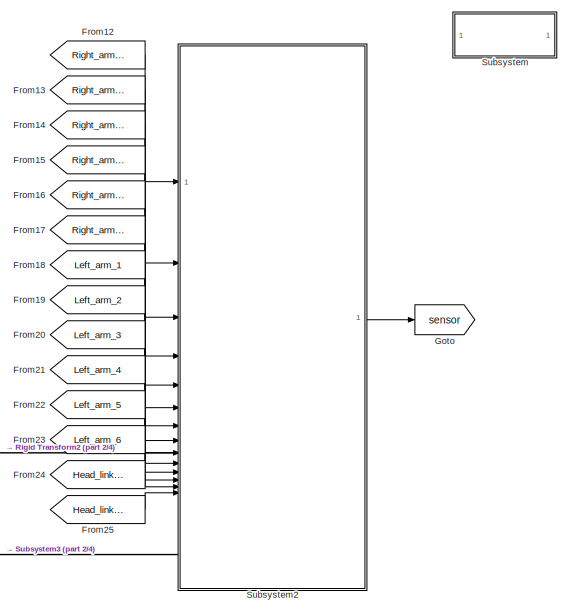
[diagram: root canvas - part 1/4, top right region]
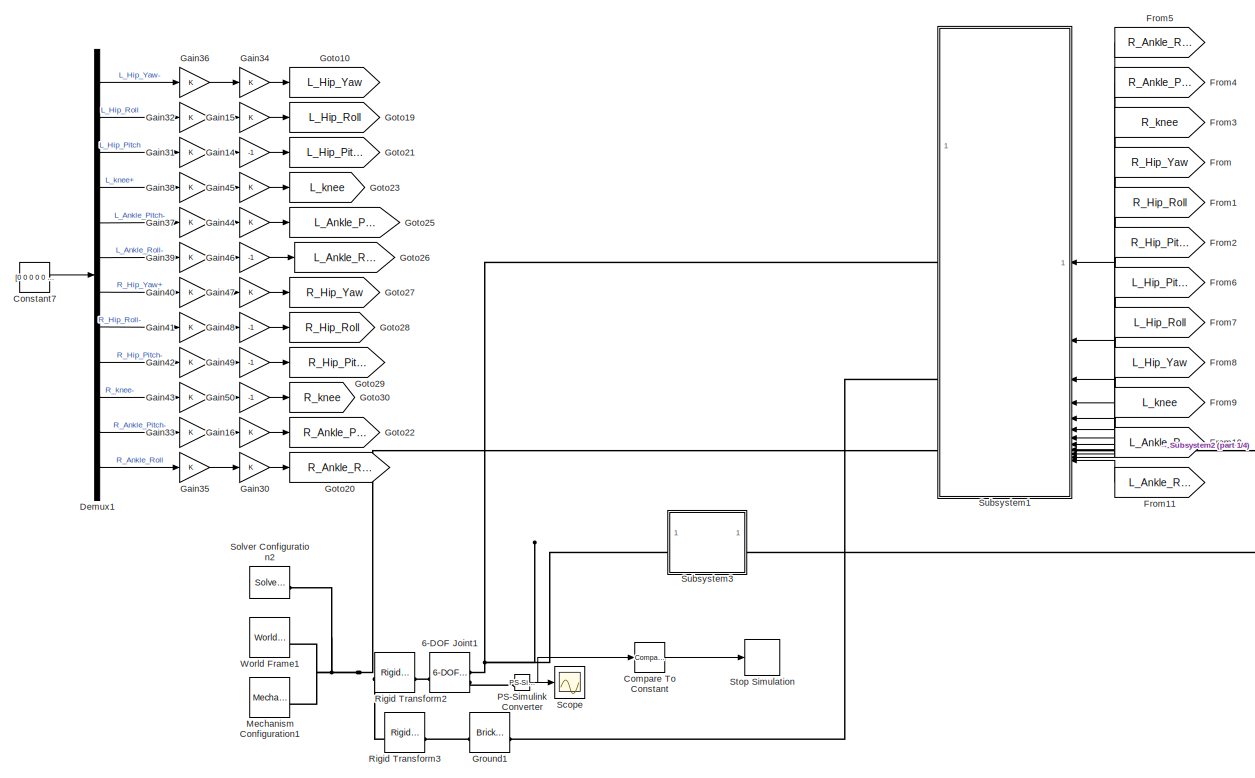
[diagram: root canvas - part 2/4, top center region]
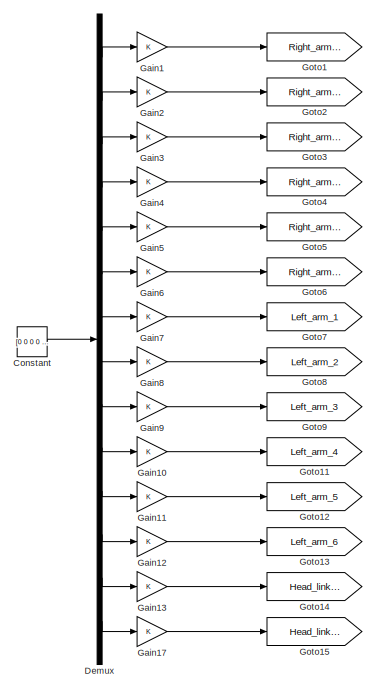
[diagram: root canvas - part 3/4, bottom right region]
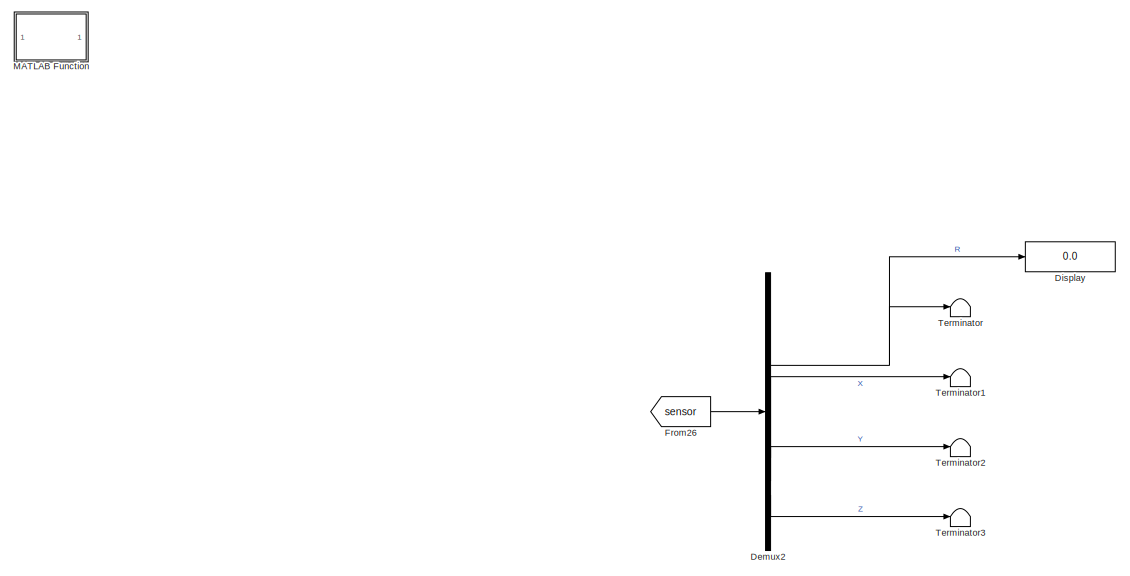
[diagram: root canvas - part 4/4, bottom left region]
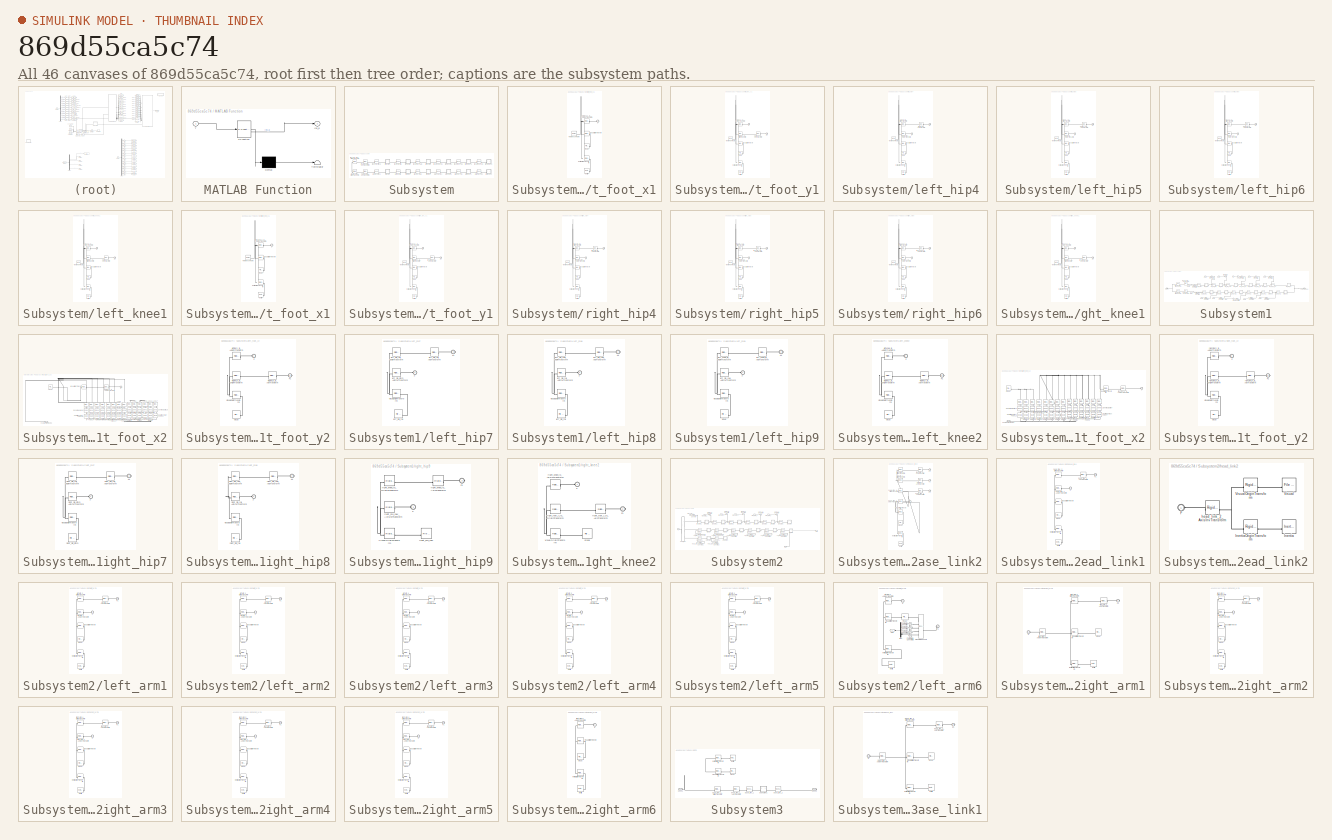
[diagram: thumbnail index - all 46 canvases of the model, root first then tree order]
MODEL slx_869d55ca5c74
KIND model
CONFIG AbsTol = auto
CONFIG EnableMultiTasking = off
CONFIG FixedStep = auto
CONFIG MaxStep = auto
CONFIG MinStep = auto
CONFIG RelTol = 1e-3
CONFIG SampleTimeConstraint = Unconstrained
CONFIG SolverName = VariableStepAuto
CONFIG StartTime = 0.0
CONFIG StopTime = 10.0
BLOCK [Reference] 6-DOF Joint1  REF=sm_lib/Joints/6-DOF Joint
  SourceBlock = sm_lib/Joints/6-DOF Joint
  SourceType = 6-DOF Joint
BLOCK [Reference] Compare To Constant  REF=simulink/Logic and Bit
Operations/Compare
To Constant
  SourceBlock = simulink/Logic and Bit\nOperations/Compare\nTo Constant
  SourceType = Compare To Constant
BLOCK [Constant] Constant
  Value = [0 0 0   0 0 0   0 0 0   0 0 0  0 0]
BLOCK [Constant] Constant7
  Value = [0 0 0 0 0 0 0 0 0 0 0 0]
  VectorParams1D = off
BLOCK [Demux] Demux
  Outputs = 14
BLOCK [Demux] Demux1
  Outputs = 12
BLOCK [Demux] Demux2
BLOCK [Display] Display
  Decimation = 1
BLOCK [From] From
  GotoTag = R_Hip_Yaw
  NameLocation = top
BLOCK [From] From1
  GotoTag = R_Hip_Roll
  NameLocation = top
BLOCK [From] From10
  GotoTag = L_Ankle_Pitch
  NameLocation = top
BLOCK [From] From11
  GotoTag = L_Ankle_Roll
  NameLocation = top
BLOCK [From] From12
  GotoTag = Right_arm_1
BLOCK [From] From13
  GotoTag = Right_arm_2
BLOCK [From] From14
  GotoTag = Right_arm_3
BLOCK [From] From15
  GotoTag = Right_arm_4
BLOCK [From] From16
  GotoTag = Right_arm_5
BLOCK [From] From17
  GotoTag = Right_arm_6
BLOCK [From] From18
  GotoTag = Left_arm_1
BLOCK [From] From19
  GotoTag = Left_arm_2
BLOCK [From] From2
  GotoTag = R_Hip_Pitch
  NameLocation = top
BLOCK [From] From20
  GotoTag = Left_arm_3
BLOCK [From] From21
  GotoTag = Left_arm_4
BLOCK [From] From22
  GotoTag = Left_arm_5
BLOCK [From] From23
  GotoTag = Left_arm_6
BLOCK [From] From24
  GotoTag = Head_link_1
BLOCK [From] From25
  GotoTag = Head_link_2
BLOCK [From] From26
  GotoTag = sensor
BLOCK [From] From3
  GotoTag = R_knee
  NameLocation = top
BLOCK [From] From4
  GotoTag = R_Ankle_Pitch
  NameLocation = top
BLOCK [From] From5
  GotoTag = R_Ankle_Roll
  NameLocation = top
BLOCK [From] From6
  GotoTag = L_Hip_Pitch
  NameLocation = top
BLOCK [From] From7
  GotoTag = L_Hip_Roll
  NameLocation = top
BLOCK [From] From8
  GotoTag = L_Hip_Yaw
  NameLocation = top
BLOCK [From] From9
  GotoTag = L_knee
  NameLocation = top
BLOCK [Gain] Gain1
BLOCK [Gain] Gain10
BLOCK [Gain] Gain11
BLOCK [Gain] Gain12
BLOCK [Gain] Gain13
BLOCK [Gain] Gain14
  Gain = -1
BLOCK [Gain] Gain15
BLOCK [Gain] Gain16
BLOCK [Gain] Gain17
BLOCK [Gain] Gain2
BLOCK [Gain] Gain3
BLOCK [Gain] Gain30
BLOCK [Gain] Gain31
BLOCK [Gain] Gain32
BLOCK [Gain] Gain33
BLOCK [Gain] Gain34
BLOCK [Gain] Gain35
BLOCK [Gain] Gain36
BLOCK [Gain] Gain37
BLOCK [Gain] Gain38
BLOCK [Gain] Gain39
BLOCK [Gain] Gain4
BLOCK [Gain] Gain40
BLOCK [Gain] Gain41
BLOCK [Gain] Gain42
BLOCK [Gain] Gain43
BLOCK [Gain] Gain44
BLOCK [Gain] Gain45
BLOCK [Gain] Gain46
  Gain = -1
BLOCK [Gain] Gain47
BLOCK [Gain] Gain48
  Gain = -1
BLOCK [Gain] Gain49
  Gain = -1
BLOCK [Gain] Gain5
BLOCK [Gain] Gain50
  Gain = -1
BLOCK [Gain] Gain6
BLOCK [Gain] Gain7
BLOCK [Gain] Gain8
BLOCK [Gain] Gain9
BLOCK [Goto] Goto
  GotoTag = sensor
BLOCK [Goto] Goto1
  GotoTag = Right_arm_1
BLOCK [Goto] Goto10
  GotoTag = L_Hip_Yaw
BLOCK [Goto] Goto11
  GotoTag = Left_arm_4
BLOCK [Goto] Goto12
  GotoTag = Left_arm_5
BLOCK [Goto] Goto13
  GotoTag = Left_arm_6
BLOCK [Goto] Goto14
  GotoTag = Head_link_1
BLOCK [Goto] Goto15
  GotoTag = Head_link_2
BLOCK [Goto] Goto19
  GotoTag = L_Hip_Roll
BLOCK [Goto] Goto2
  GotoTag = Right_arm_2
BLOCK [Goto] Goto20
  GotoTag = R_Ankle_Roll
BLOCK [Goto] Goto21
  GotoTag = L_Hip_Pitch
BLOCK [Goto] Goto22
  GotoTag = R_Ankle_Pitch
BLOCK [Goto] Goto23
  GotoTag = L_knee
BLOCK [Goto] Goto25
  GotoTag = L_Ankle_Pitch
BLOCK [Goto] Goto26
  GotoTag = L_Ankle_Roll
BLOCK [Goto] Goto27
  GotoTag = R_Hip_Yaw
BLOCK [Goto] Goto28
  GotoTag = R_Hip_Roll
BLOCK [Goto] Goto29
  GotoTag = R_Hip_Pitch
BLOCK [Goto] Goto3
  GotoTag = Right_arm_3
BLOCK [Goto] Goto30
  GotoTag = R_knee
BLOCK [Goto] Goto4
  GotoTag = Right_arm_4
BLOCK [Goto] Goto5
  GotoTag = Right_arm_5
BLOCK [Goto] Goto6
  GotoTag = Right_arm_6
BLOCK [Goto] Goto7
  GotoTag = Left_arm_1
BLOCK [Goto] Goto8
  GotoTag = Left_arm_2
BLOCK [Goto] Goto9
  GotoTag = Left_arm_3
BLOCK [Reference] Ground1  REF=sm_lib/Body Elements/Brick Solid
  NameLocation = top
  SourceBlock = sm_lib/Body Elements/Brick Solid
  SourceType = Brick Solid
BLOCK [SubSystem] MATLAB Function
  ErrorFcn = Stateflow.Translate.translate
  LibrarySourceBlock = simulink/User-Defined\nFunctions/MATLAB Function
  PermitHierarchicalResolution = ExplicitOnly
  SFBlockType = MATLAB Function
  TreatAsAtomicUnit = on
BLOCK [Demux] MATLAB Function/ Demux 
  Outputs = 1
BLOCK [S-Function] MATLAB Function/ SFunction 
  EnableBusSupport = off
  FunctionName = sf_sfun
  PortCounts = [1 2]
  SFcnIsStateOwnerBlock = off
  SFunctionDeploymentMode = off
  Tag = Stateflow S-Function 2
BLOCK [Terminator] MATLAB Function/ Terminator 
BLOCK [Outport] MATLAB Function/Inv_q
BLOCK [Inport] MATLAB Function/T
BLOCK [Reference] Mechanism Configuration1  REF=sm_lib/Utilities/Mechanism
Configuration
  SourceBlock = sm_lib/Utilities/Mechanism\nConfiguration
  SourceType = Mechanism\nConfiguration
BLOCK [Reference] PS-Simulink Converter  REF=nesl_utility/PS-Simulink
Converter
  SourceBlock = nesl_utility/PS-Simulink\nConverter
  SourceType = PS-Simulink\nConverter
BLOCK [Reference] Rigid Transform2  REF=sm_lib/Frames and
Transforms/Rigid
Transform
  SourceBlock = sm_lib/Frames and\nTransforms/Rigid\nTransform
  SourceType = Rigid\nTransform
BLOCK [Reference] Rigid Transform3  REF=sm_lib/Frames and
Transforms/Rigid
Transform
  SourceBlock = sm_lib/Frames and\nTransforms/Rigid\nTransform
  SourceType = Rigid\nTransform
BLOCK [Scope] Scope
  Floating = off
  NumInputPorts = 1
  ScopeSpecificationString = Simulink.scopes.TimeScopeBlockCfg('CurrentConfiguration', extmgr.ConfigurationSet(extmgr.Configuration('Core','General UI',true),extmgr.Configuration('Core','Source UI',true),extmgr.Configuration('Sources','WiredSimulink',true),extmgr.Configuration('Visuals','Time Domain',true,'SerializedDisplays',{struct('MinYLimReal','-0.04674','MaxYLimReal','0.00743','YLabelReal','','MinYLimMag','0.00000','MaxY...<+1442ch>
BLOCK [Reference] Solver Configuration2  REF=nesl_utility/Solver
Configuration
  SourceBlock = nesl_utility/Solver\nConfiguration
  SourceType = Solver\nConfiguration
BLOCK [Stop] Stop Simulation
BLOCK [SubSystem] Subsystem
  Commented = on
BLOCK [SubSystem] Subsystem/left_foot_x1
  Commented = on
BLOCK [PMIOPort] Subsystem/left_foot_x1/F
  Side = Left
BLOCK [Reference] Subsystem/left_foot_x1/Inertia  REF=sm_lib/Body Elements/Inertia
  SourceBlock = sm_lib/Body Elements/Inertia
  SourceType = Inertia
BLOCK [Reference] Subsystem/left_foot_x1/InertiaOriginTransform  REF=sm_lib/Frames and
Transforms/Rigid
Transform
  SourceBlock = sm_lib/Frames and\nTransforms/Rigid\nTransform
  SourceType = Rigid\nTransform
BLOCK [Reference] Subsystem/left_foot_x1/ReferenceFrame  REF=sm_lib/Frames and
Transforms/Reference
Frame
  SourceBlock = sm_lib/Frames and\nTransforms/Reference\nFrame
  SourceType = Reference\nFrame
BLOCK [Reference] Subsystem/left_foot_x1/Visual  REF=sm_lib/Body Elements/File Solid
  SourceBlock = sm_lib/Body Elements/File Solid
  SourceType = File Solid
BLOCK [Reference] Subsystem/left_foot_x1/VisualOriginTransform  REF=sm_lib/Frames and
Transforms/Rigid
Transform
  SourceBlock = sm_lib/Frames and\nTransforms/Rigid\nTransform
  SourceType = Rigid\nTransform
BLOCK [Reference] Subsystem/left_foot_x1/left_foot_x_jo_AxisInvTransform  REF=sm_lib/Frames and
Transforms/Rigid
Transform
  SourceBlock = sm_lib/Frames and\nTransforms/Rigid\nTransform
  SourceType = Rigid\nTransform
BLOCK [Reference] Subsystem/left_foot_x_jo1  REF=sm_lib/Joints/Revolute Joint
  Commented = on
  SourceBlock = sm_lib/Joints/Revolute Joint
  SourceType = Revolute Joint
BLOCK [SubSystem] Subsystem/left_foot_y1
  Commented = on
BLOCK [PMIOPort] Subsystem/left_foot_y1/F
  Side = Left
BLOCK [PMIOPort] Subsystem/left_foot_y1/F1
  Port = 2
  Side = Right
BLOCK [Reference] Subsystem/left_foot_y1/Inertia  REF=sm_lib/Body Elements/Inertia
  SourceBlock = sm_lib/Body Elements/Inertia
  SourceType = Inertia
BLOCK [Reference] Subsystem/left_foot_y1/InertiaOriginTransform  REF=sm_lib/Frames and
Transforms/Rigid
Transform
  SourceBlock = sm_lib/Frames and\nTransforms/Rigid\nTransform
  SourceType = Rigid\nTransform
BLOCK [Reference] Subsystem/left_foot_y1/ReferenceFrame  REF=sm_lib/Frames and
Transforms/Reference
Frame
  SourceBlock = sm_lib/Frames and\nTransforms/Reference\nFrame
  SourceType = Reference\nFrame
BLOCK [Reference] Subsystem/left_foot_y1/Visual  REF=sm_lib/Body Elements/File Solid
  SourceBlock = sm_lib/Body Elements/File Solid
  SourceType = File Solid
BLOCK [Reference] Subsystem/left_foot_y1/VisualOriginTransform  REF=sm_lib/Frames and
Transforms/Rigid
Transform
  SourceBlock = sm_lib/Frames and\nTransforms/Rigid\nTransform
  SourceType = Rigid\nTransform
BLOCK [Reference] Subsystem/left_foot_y1/left_foot_x_jo_AxisTransform  REF=sm_lib/Frames and
Transforms/Rigid
Transform
  SourceBlock = sm_lib/Frames and\nTransforms/Rigid\nTransform
  SourceType = Rigid\nTransform
BLOCK [Reference] Subsystem/left_foot_y1/left_foot_x_jo_OriginTransform  REF=sm_lib/Frames and
Transforms/Rigid
Transform
  SourceBlock = sm_lib/Frames and\nTransforms/Rigid\nTransform
  SourceType = Rigid\nTransform
BLOCK [Reference] Subsystem/left_foot_y1/left_foot_y_jo_AxisInvTransform  REF=sm_lib/Frames and
Transforms/Rigid
Transform
  SourceBlock = sm_lib/Frames and\nTransforms/Rigid\nTransform
  SourceType = Rigid\nTransform
BLOCK [Reference] Subsystem/left_foot_y_jo1  REF=sm_lib/Joints/Revolute Joint
  Commented = on
  SourceBlock = sm_lib/Joints/Revolute Joint
  SourceType = Revolute Joint
BLOCK [SubSystem] Subsystem/left_hip4
  Commented = on
BLOCK [PMIOPort] Subsystem/left_hip4/F
  Side = Left
BLOCK [PMIOPort] Subsystem/left_hip4/F1
  Port = 2
  Side = Right
BLOCK [Reference] Subsystem/left_hip4/Inertia  REF=sm_lib/Body Elements/Inertia
  SourceBlock = sm_lib/Body Elements/Inertia
  SourceType = Inertia
BLOCK [Reference] Subsystem/left_hip4/InertiaOriginTransform  REF=sm_lib/Frames and
Transforms/Rigid
Transform
  SourceBlock = sm_lib/Frames and\nTransforms/Rigid\nTransform
  SourceType = Rigid\nTransform
BLOCK [Reference] Subsystem/left_hip4/ReferenceFrame  REF=sm_lib/Frames and
Transforms/Reference
Frame
  SourceBlock = sm_lib/Frames and\nTransforms/Reference\nFrame
  SourceType = Reference\nFrame
BLOCK [Reference] Subsystem/left_hip4/Visual  REF=sm_lib/Body Elements/File Solid
  SourceBlock = sm_lib/Body Elements/File Solid
  SourceType = File Solid
BLOCK [Reference] Subsystem/left_hip4/VisualOriginTransform  REF=sm_lib/Frames and
Transforms/Rigid
Transform
  SourceBlock = sm_lib/Frames and\nTransforms/Rigid\nTransform
  SourceType = Rigid\nTransform
BLOCK [Reference] Subsystem/left_hip4/left_hip_pitch_AxisInvTransform  REF=sm_lib/Frames and
Transforms/Rigid
Transform
  SourceBlock = sm_lib/Frames and\nTransforms/Rigid\nTransform
  SourceType = Rigid\nTransform
BLOCK [Reference] Subsystem/left_hip4/left_hip_roll_AxisTransform  REF=sm_lib/Frames and
Transforms/Rigid
Transform
  SourceBlock = sm_lib/Frames and\nTransforms/Rigid\nTransform
  SourceType = Rigid\nTransform
BLOCK [Reference] Subsystem/left_hip4/left_hip_roll_OriginTransform  REF=sm_lib/Frames and
Transforms/Rigid
Transform
  SourceBlock = sm_lib/Frames and\nTransforms/Rigid\nTransform
  SourceType = Rigid\nTransform
BLOCK [SubSystem] Subsystem/left_hip5
  Commented = on
BLOCK [PMIOPort] Subsystem/left_hip5/F
  Side = Left
BLOCK [PMIOPort] Subsystem/left_hip5/F1
  Port = 2
  Side = Right
BLOCK [Reference] Subsystem/left_hip5/Inertia  REF=sm_lib/Body Elements/Inertia
  SourceBlock = sm_lib/Body Elements/Inertia
  SourceType = Inertia
BLOCK [Reference] Subsystem/left_hip5/InertiaOriginTransform  REF=sm_lib/Frames and
Transforms/Rigid
Transform
  SourceBlock = sm_lib/Frames and\nTransforms/Rigid\nTransform
  SourceType = Rigid\nTransform
BLOCK [Reference] Subsystem/left_hip5/ReferenceFrame  REF=sm_lib/Frames and
Transforms/Reference
Frame
  SourceBlock = sm_lib/Frames and\nTransforms/Reference\nFrame
  SourceType = Reference\nFrame
BLOCK [Reference] Subsystem/left_hip5/Visual  REF=sm_lib/Body Elements/File Solid
  SourceBlock = sm_lib/Body Elements/File Solid
  SourceType = File Solid
BLOCK [Reference] Subsystem/left_hip5/VisualOriginTransform  REF=sm_lib/Frames and
Transforms/Rigid
Transform
  SourceBlock = sm_lib/Frames and\nTransforms/Rigid\nTransform
  SourceType = Rigid\nTransform
BLOCK [Reference] Subsystem/left_hip5/left_hip_roll_AxisInvTransform  REF=sm_lib/Frames and
Transforms/Rigid
Transform
  SourceBlock = sm_lib/Frames and\nTransforms/Rigid\nTransform
  SourceType = Rigid\nTransform
BLOCK [Reference] Subsystem/left_hip5/left_hip_yaw_AxisTransform  REF=sm_lib/Frames and
Transforms/Rigid
Transform
  SourceBlock = sm_lib/Frames and\nTransforms/Rigid\nTransform
  SourceType = Rigid\nTransform
BLOCK [Reference] Subsystem/left_hip5/left_hip_yaw_OriginTransform  REF=sm_lib/Frames and
Transforms/Rigid
Transform
  SourceBlock = sm_lib/Frames and\nTransforms/Rigid\nTransform
  SourceType = Rigid\nTransform
BLOCK [SubSystem] Subsystem/left_hip6
  Commented = on
BLOCK [PMIOPort] Subsystem/left_hip6/F
  Side = Left
BLOCK [PMIOPort] Subsystem/left_hip6/F1
  Port = 2
  Side = Right
BLOCK [Reference] Subsystem/left_hip6/Inertia  REF=sm_lib/Body Elements/Inertia
  SourceBlock = sm_lib/Body Elements/Inertia
  SourceType = Inertia
BLOCK [Reference] Subsystem/left_hip6/InertiaOriginTransform  REF=sm_lib/Frames and
Transforms/Rigid
Transform
  SourceBlock = sm_lib/Frames and\nTransforms/Rigid\nTransform
  SourceType = Rigid\nTransform
BLOCK [Reference] Subsystem/left_hip6/ReferenceFrame  REF=sm_lib/Frames and
Transforms/Reference
Frame
  SourceBlock = sm_lib/Frames and\nTransforms/Reference\nFrame
  SourceType = Reference\nFrame
BLOCK [Reference] Subsystem/left_hip6/Visual  REF=sm_lib/Body Elements/File Solid
  SourceBlock = sm_lib/Body Elements/File Solid
  SourceType = File Solid
BLOCK [Reference] Subsystem/left_hip6/VisualOriginTransform  REF=sm_lib/Frames and
Transforms/Rigid
Transform
  SourceBlock = sm_lib/Frames and\nTransforms/Rigid\nTransform
  SourceType = Rigid\nTransform
BLOCK [Reference] Subsystem/left_hip6/left_hip_yaw_AxisInvTransform  REF=sm_lib/Frames and
Transforms/Rigid
Transform
  SourceBlock = sm_lib/Frames and\nTransforms/Rigid\nTransform
  SourceType = Rigid\nTransform
BLOCK [Reference] Subsystem/left_hip6/left_knee_jo_AxisTransform  REF=sm_lib/Frames and
Transforms/Rigid
Transform
  SourceBlock = sm_lib/Frames and\nTransforms/Rigid\nTransform
  SourceType = Rigid\nTransform
BLOCK [Reference] Subsystem/left_hip6/left_knee_jo_OriginTransform  REF=sm_lib/Frames and
Transforms/Rigid
Transform
  SourceBlock = sm_lib/Frames and\nTransforms/Rigid\nTransform
  SourceType = Rigid\nTransform
BLOCK [Reference] Subsystem/left_hip_pitch1  REF=sm_lib/Joints/Revolute Joint
  Commented = on
  SourceBlock = sm_lib/Joints/Revolute Joint
  SourceType = Revolute Joint
BLOCK [Reference] Subsystem/left_hip_pitch_AxisTransform1  REF=sm_lib/Frames and
Transforms/Rigid
Transform
  Commented = on
  SourceBlock = sm_lib/Frames and\nTransforms/Rigid\nTransform
  SourceType = Rigid\nTransform
BLOCK [Reference] Subsystem/left_hip_pitch_OriginTransform1  REF=sm_lib/Frames and
Transforms/Rigid
Transform
  Commented = on
  SourceBlock = sm_lib/Frames and\nTransforms/Rigid\nTransform
  SourceType = Rigid\nTransform
BLOCK [Reference] Subsystem/left_hip_roll1  REF=sm_lib/Joints/Revolute Joint
  Commented = on
  SourceBlock = sm_lib/Joints/Revolute Joint
  SourceType = Revolute Joint
BLOCK [Reference] Subsystem/left_hip_yaw1  REF=sm_lib/Joints/Revolute Joint
  Commented = on
  SourceBlock = sm_lib/Joints/Revolute Joint
  SourceType = Revolute Joint
BLOCK [SubSystem] Subsystem/left_knee1
  Commented = on
BLOCK [PMIOPort] Subsystem/left_knee1/F
  Side = Left
BLOCK [PMIOPort] Subsystem/left_knee1/F1
  Port = 2
  Side = Right
BLOCK [Reference] Subsystem/left_knee1/Inertia  REF=sm_lib/Body Elements/Inertia
  SourceBlock = sm_lib/Body Elements/Inertia
  SourceType = Inertia
BLOCK [Reference] Subsystem/left_knee1/InertiaOriginTransform  REF=sm_lib/Frames and
Transforms/Rigid
Transform
  SourceBlock = sm_lib/Frames and\nTransforms/Rigid\nTransform
  SourceType = Rigid\nTransform
BLOCK [Reference] Subsystem/left_knee1/ReferenceFrame  REF=sm_lib/Frames and
Transforms/Reference
Frame
  SourceBlock = sm_lib/Frames and\nTransforms/Reference\nFrame
  SourceType = Reference\nFrame
BLOCK [Reference] Subsystem/left_knee1/Visual  REF=sm_lib/Body Elements/File Solid
  SourceBlock = sm_lib/Body Elements/File Solid
  SourceType = File Solid
BLOCK [Reference] Subsystem/left_knee1/VisualOriginTransform  REF=sm_lib/Frames and
Transforms/Rigid
Transform
  SourceBlock = sm_lib/Frames and\nTransforms/Rigid\nTransform
  SourceType = Rigid\nTransform
BLOCK [Reference] Subsystem/left_knee1/left_foot_y_jo_AxisTransform  REF=sm_lib/Frames and
Transforms/Rigid
Transform
  SourceBlock = sm_lib/Frames and\nTransforms/Rigid\nTransform
  SourceType = Rigid\nTransform
BLOCK [Reference] Subsystem/left_knee1/left_foot_y_jo_OriginTransform  REF=sm_lib/Frames and
Transforms/Rigid
Transform
  SourceBlock = sm_lib/Frames and\nTransforms/Rigid\nTransform
  SourceType = Rigid\nTransform
BLOCK [Reference] Subsystem/left_knee1/left_knee_jo_AxisInvTransform  REF=sm_lib/Frames and
Transforms/Rigid
Transform
  SourceBlock = sm_lib/Frames and\nTransforms/Rigid\nTransform
  SourceType = Rigid\nTransform
BLOCK [Reference] Subsystem/left_knee_jo1  REF=sm_lib/Joints/Revolute Joint
  Commented = on
  SourceBlock = sm_lib/Joints/Revolute Joint
  SourceType = Revolute Joint
BLOCK [SubSystem] Subsystem/right_foot_x1
  Commented = on
BLOCK [PMIOPort] Subsystem/right_foot_x1/F
  Side = Left
BLOCK [Reference] Subsystem/right_foot_x1/Inertia  REF=sm_lib/Body Elements/Inertia
  SourceBlock = sm_lib/Body Elements/Inertia
  SourceType = Inertia
BLOCK [Reference] Subsystem/right_foot_x1/InertiaOriginTransform  REF=sm_lib/Frames and
Transforms/Rigid
Transform
  SourceBlock = sm_lib/Frames and\nTransforms/Rigid\nTransform
  SourceType = Rigid\nTransform
BLOCK [Reference] Subsystem/right_foot_x1/ReferenceFrame  REF=sm_lib/Frames and
Transforms/Reference
Frame
  SourceBlock = sm_lib/Frames and\nTransforms/Reference\nFrame
  SourceType = Reference\nFrame
BLOCK [Reference] Subsystem/right_foot_x1/Visual  REF=sm_lib/Body Elements/File Solid
  SourceBlock = sm_lib/Body Elements/File Solid
  SourceType = File Solid
BLOCK [Reference] Subsystem/right_foot_x1/VisualOriginTransform  REF=sm_lib/Frames and
Transforms/Rigid
Transform
  SourceBlock = sm_lib/Frames and\nTransforms/Rigid\nTransform
  SourceType = Rigid\nTransform
BLOCK [Reference] Subsystem/right_foot_x1/right_foot_x_jo_AxisInvTransform  REF=sm_lib/Frames and
Transforms/Rigid
Transform
  SourceBlock = sm_lib/Frames and\nTransforms/Rigid\nTransform
  SourceType = Rigid\nTransform
BLOCK [Reference] Subsystem/right_foot_x_jo1  REF=sm_lib/Joints/Revolute Joint
  Commented = on
  SourceBlock = sm_lib/Joints/Revolute Joint
  SourceType = Revolute Joint
BLOCK [SubSystem] Subsystem/right_foot_y1
  Commented = on
BLOCK [PMIOPort] Subsystem/right_foot_y1/F
  Side = Left
BLOCK [PMIOPort] Subsystem/right_foot_y1/F1
  Port = 2
  Side = Right
BLOCK [Reference] Subsystem/right_foot_y1/Inertia  REF=sm_lib/Body Elements/Inertia
  SourceBlock = sm_lib/Body Elements/Inertia
  SourceType = Inertia
BLOCK [Reference] Subsystem/right_foot_y1/InertiaOriginTransform  REF=sm_lib/Frames and
Transforms/Rigid
Transform
  SourceBlock = sm_lib/Frames and\nTransforms/Rigid\nTransform
  SourceType = Rigid\nTransform
BLOCK [Reference] Subsystem/right_foot_y1/ReferenceFrame  REF=sm_lib/Frames and
Transforms/Reference
Frame
  SourceBlock = sm_lib/Frames and\nTransforms/Reference\nFrame
  SourceType = Reference\nFrame
BLOCK [Reference] Subsystem/right_foot_y1/Visual  REF=sm_lib/Body Elements/File Solid
  SourceBlock = sm_lib/Body Elements/File Solid
  SourceType = File Solid
BLOCK [Reference] Subsystem/right_foot_y1/VisualOriginTransform  REF=sm_lib/Frames and
Transforms/Rigid
Transform
  SourceBlock = sm_lib/Frames and\nTransforms/Rigid\nTransform
  SourceType = Rigid\nTransform
BLOCK [Reference] Subsystem/right_foot_y1/right_foot_x_jo_AxisTransform  REF=sm_lib/Frames and
Transforms/Rigid
Transform
  SourceBlock = sm_lib/Frames and\nTransforms/Rigid\nTransform
  SourceType = Rigid\nTransform
BLOCK [Reference] Subsystem/right_foot_y1/right_foot_x_jo_OriginTransform  REF=sm_lib/Frames and
Transforms/Rigid
Transform
  SourceBlock = sm_lib/Frames and\nTransforms/Rigid\nTransform
  SourceType = Rigid\nTransform
BLOCK [Reference] Subsystem/right_foot_y1/right_foot_y_jo_AxisInvTransform  REF=sm_lib/Frames and
Transforms/Rigid
Transform
  SourceBlock = sm_lib/Frames and\nTransforms/Rigid\nTransform
  SourceType = Rigid\nTransform
BLOCK [Reference] Subsystem/right_foot_y_jo1  REF=sm_lib/Joints/Revolute Joint
  Commented = on
  SourceBlock = sm_lib/Joints/Revolute Joint
  SourceType = Revolute Joint
BLOCK [SubSystem] Subsystem/right_hip4
  Commented = on
BLOCK [PMIOPort] Subsystem/right_hip4/F
  Side = Left
BLOCK [PMIOPort] Subsystem/right_hip4/F1
  Port = 2
  Side = Right
BLOCK [Reference] Subsystem/right_hip4/Inertia  REF=sm_lib/Body Elements/Inertia
  SourceBlock = sm_lib/Body Elements/Inertia
  SourceType = Inertia
BLOCK [Reference] Subsystem/right_hip4/InertiaOriginTransform  REF=sm_lib/Frames and
Transforms/Rigid
Transform
  SourceBlock = sm_lib/Frames and\nTransforms/Rigid\nTransform
  SourceType = Rigid\nTransform
BLOCK [Reference] Subsystem/right_hip4/ReferenceFrame  REF=sm_lib/Frames and
Transforms/Reference
Frame
  SourceBlock = sm_lib/Frames and\nTransforms/Reference\nFrame
  SourceType = Reference\nFrame
BLOCK [Reference] Subsystem/right_hip4/Visual  REF=sm_lib/Body Elements/File Solid
  SourceBlock = sm_lib/Body Elements/File Solid
  SourceType = File Solid
BLOCK [Reference] Subsystem/right_hip4/VisualOriginTransform  REF=sm_lib/Frames and
Transforms/Rigid
Transform
  SourceBlock = sm_lib/Frames and\nTransforms/Rigid\nTransform
  SourceType = Rigid\nTransform
BLOCK [Reference] Subsystem/right_hip4/right_hip_pitch_AxisInvTransform  REF=sm_lib/Frames and
Transforms/Rigid
Transform
  SourceBlock = sm_lib/Frames and\nTransforms/Rigid\nTransform
  SourceType = Rigid\nTransform
BLOCK [Reference] Subsystem/right_hip4/right_hip_roll_AxisTransform  REF=sm_lib/Frames and
Transforms/Rigid
Transform
  SourceBlock = sm_lib/Frames and\nTransforms/Rigid\nTransform
  SourceType = Rigid\nTransform
BLOCK [Reference] Subsystem/right_hip4/right_hip_roll_OriginTransform  REF=sm_lib/Frames and
Transforms/Rigid
Transform
  SourceBlock = sm_lib/Frames and\nTransforms/Rigid\nTransform
  SourceType = Rigid\nTransform
BLOCK [SubSystem] Subsystem/right_hip5
  Commented = on
BLOCK [PMIOPort] Subsystem/right_hip5/F
  Side = Left
BLOCK [PMIOPort] Subsystem/right_hip5/F1
  Port = 2
  Side = Right
BLOCK [Reference] Subsystem/right_hip5/Inertia  REF=sm_lib/Body Elements/Inertia
  SourceBlock = sm_lib/Body Elements/Inertia
  SourceType = Inertia
BLOCK [Reference] Subsystem/right_hip5/InertiaOriginTransform  REF=sm_lib/Frames and
Transforms/Rigid
Transform
  SourceBlock = sm_lib/Frames and\nTransforms/Rigid\nTransform
  SourceType = Rigid\nTransform
BLOCK [Reference] Subsystem/right_hip5/ReferenceFrame  REF=sm_lib/Frames and
Transforms/Reference
Frame
  SourceBlock = sm_lib/Frames and\nTransforms/Reference\nFrame
  SourceType = Reference\nFrame
BLOCK [Reference] Subsystem/right_hip5/Visual  REF=sm_lib/Body Elements/File Solid
  SourceBlock = sm_lib/Body Elements/File Solid
  SourceType = File Solid
BLOCK [Reference] Subsystem/right_hip5/VisualOriginTransform  REF=sm_lib/Frames and
Transforms/Rigid
Transform
  SourceBlock = sm_lib/Frames and\nTransforms/Rigid\nTransform
  SourceType = Rigid\nTransform
BLOCK [Reference] Subsystem/right_hip5/right_hip_roll_AxisInvTransform  REF=sm_lib/Frames and
Transforms/Rigid
Transform
  SourceBlock = sm_lib/Frames and\nTransforms/Rigid\nTransform
  SourceType = Rigid\nTransform
BLOCK [Reference] Subsystem/right_hip5/right_hip_yaw_AxisTransform  REF=sm_lib/Frames and
Transforms/Rigid
Transform
  SourceBlock = sm_lib/Frames and\nTransforms/Rigid\nTransform
  SourceType = Rigid\nTransform
BLOCK [Reference] Subsystem/right_hip5/right_hip_yaw_OriginTransform  REF=sm_lib/Frames and
Transforms/Rigid
Transform
  SourceBlock = sm_lib/Frames and\nTransforms/Rigid\nTransform
  SourceType = Rigid\nTransform
BLOCK [SubSystem] Subsystem/right_hip6
  Commented = on
BLOCK [PMIOPort] Subsystem/right_hip6/F
  Side = Left
BLOCK [PMIOPort] Subsystem/right_hip6/F1
  Port = 2
  Side = Right
BLOCK [Reference] Subsystem/right_hip6/Inertia  REF=sm_lib/Body Elements/Inertia
  SourceBlock = sm_lib/Body Elements/Inertia
  SourceType = Inertia
BLOCK [Reference] Subsystem/right_hip6/InertiaOriginTransform  REF=sm_lib/Frames and
Transforms/Rigid
Transform
  SourceBlock = sm_lib/Frames and\nTransforms/Rigid\nTransform
  SourceType = Rigid\nTransform
BLOCK [Reference] Subsystem/right_hip6/ReferenceFrame  REF=sm_lib/Frames and
Transforms/Reference
Frame
  SourceBlock = sm_lib/Frames and\nTransforms/Reference\nFrame
  SourceType = Reference\nFrame
BLOCK [Reference] Subsystem/right_hip6/Visual  REF=sm_lib/Body Elements/File Solid
  SourceBlock = sm_lib/Body Elements/File Solid
  SourceType = File Solid
BLOCK [Reference] Subsystem/right_hip6/VisualOriginTransform  REF=sm_lib/Frames and
Transforms/Rigid
Transform
  SourceBlock = sm_lib/Frames and\nTransforms/Rigid\nTransform
  SourceType = Rigid\nTransform
BLOCK [Reference] Subsystem/right_hip6/right_hip_yaw_AxisInvTransform  REF=sm_lib/Frames and
Transforms/Rigid
Transform
  SourceBlock = sm_lib/Frames and\nTransforms/Rigid\nTransform
  SourceType = Rigid\nTransform
BLOCK [Reference] Subsystem/right_hip6/right_knee_jo_AxisTransform  REF=sm_lib/Frames and
Transforms/Rigid
Transform
  SourceBlock = sm_lib/Frames and\nTransforms/Rigid\nTransform
  SourceType = Rigid\nTransform
BLOCK [Reference] Subsystem/right_hip6/right_knee_jo_OriginTransform  REF=sm_lib/Frames and
Transforms/Rigid
Transform
  SourceBlock = sm_lib/Frames and\nTransforms/Rigid\nTransform
  SourceType = Rigid\nTransform
BLOCK [Reference] Subsystem/right_hip_pitch1  REF=sm_lib/Joints/Revolute Joint
  Commented = on
  SourceBlock = sm_lib/Joints/Revolute Joint
  SourceType = Revolute Joint
BLOCK [Reference] Subsystem/right_hip_pitch_AxisTransform1  REF=sm_lib/Frames and
Transforms/Rigid
Transform
  Commented = on
  SourceBlock = sm_lib/Frames and\nTransforms/Rigid\nTransform
  SourceType = Rigid\nTransform
BLOCK [Reference] Subsystem/right_hip_pitch_OriginTransform1  REF=sm_lib/Frames and
Transforms/Rigid
Transform
  Commented = on
  SourceBlock = sm_lib/Frames and\nTransforms/Rigid\nTransform
  SourceType = Rigid\nTransform
BLOCK [Reference] Subsystem/right_hip_roll1  REF=sm_lib/Joints/Revolute Joint
  Commented = on
  SourceBlock = sm_lib/Joints/Revolute Joint
  SourceType = Revolute Joint
BLOCK [Reference] Subsystem/right_hip_yaw1  REF=sm_lib/Joints/Revolute Joint
  Commented = on
  SourceBlock = sm_lib/Joints/Revolute Joint
  SourceType = Revolute Joint
BLOCK [SubSystem] Subsystem/right_knee1
  Commented = on
BLOCK [PMIOPort] Subsystem/right_knee1/F
  Side = Left
BLOCK [PMIOPort] Subsystem/right_knee1/F1
  Port = 2
  Side = Right
BLOCK [Reference] Subsystem/right_knee1/Inertia  REF=sm_lib/Body Elements/Inertia
  SourceBlock = sm_lib/Body Elements/Inertia
  SourceType = Inertia
BLOCK [Reference] Subsystem/right_knee1/InertiaOriginTransform  REF=sm_lib/Frames and
Transforms/Rigid
Transform
  SourceBlock = sm_lib/Frames and\nTransforms/Rigid\nTransform
  SourceType = Rigid\nTransform
BLOCK [Reference] Subsystem/right_knee1/ReferenceFrame  REF=sm_lib/Frames and
Transforms/Reference
Frame
  SourceBlock = sm_lib/Frames and\nTransforms/Reference\nFrame
  SourceType = Reference\nFrame
BLOCK [Reference] Subsystem/right_knee1/Visual  REF=sm_lib/Body Elements/File Solid
  SourceBlock = sm_lib/Body Elements/File Solid
  SourceType = File Solid
BLOCK [Reference] Subsystem/right_knee1/VisualOriginTransform  REF=sm_lib/Frames and
Transforms/Rigid
Transform
  SourceBlock = sm_lib/Frames and\nTransforms/Rigid\nTransform
  SourceType = Rigid\nTransform
BLOCK [Reference] Subsystem/right_knee1/right_foot_y_jo_AxisTransform  REF=sm_lib/Frames and
Transforms/Rigid
Transform
  SourceBlock = sm_lib/Frames and\nTransforms/Rigid\nTransform
  SourceType = Rigid\nTransform
BLOCK [Reference] Subsystem/right_knee1/right_foot_y_jo_OriginTransform  REF=sm_lib/Frames and
Transforms/Rigid
Transform
  SourceBlock = sm_lib/Frames and\nTransforms/Rigid\nTransform
  SourceType = Rigid\nTransform
BLOCK [Reference] Subsystem/right_knee1/right_knee_jo_AxisInvTransform  REF=sm_lib/Frames and
Transforms/Rigid
Transform
  SourceBlock = sm_lib/Frames and\nTransforms/Rigid\nTransform
  SourceType = Rigid\nTransform
BLOCK [Reference] Subsystem/right_knee_jo1  REF=sm_lib/Joints/Revolute Joint
  Commented = on
  SourceBlock = sm_lib/Joints/Revolute Joint
  SourceType = Revolute Joint
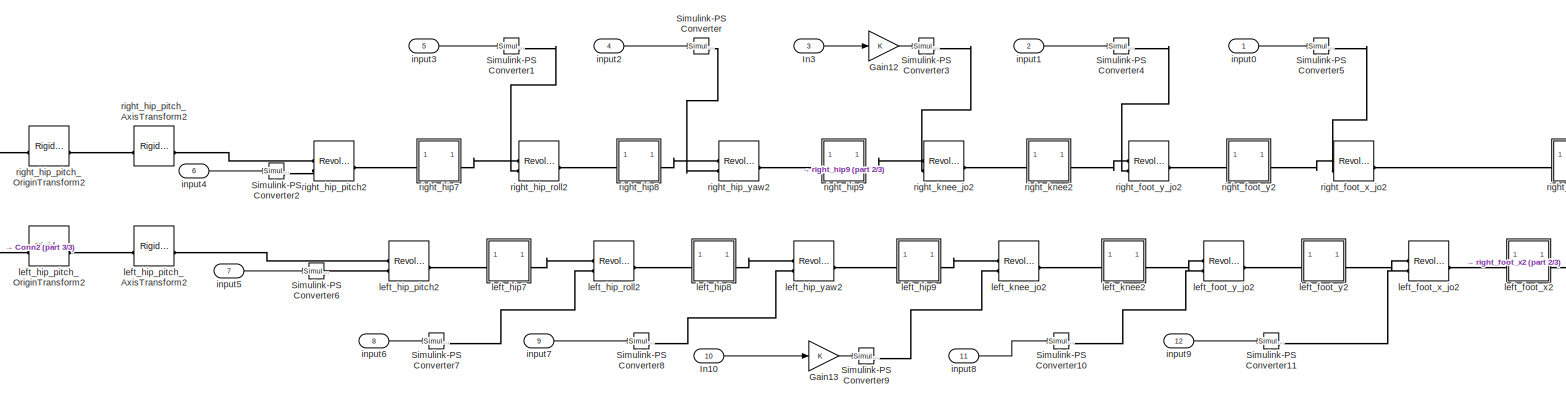
[diagram: Subsystem1 - part 1/3, most of the canvas]
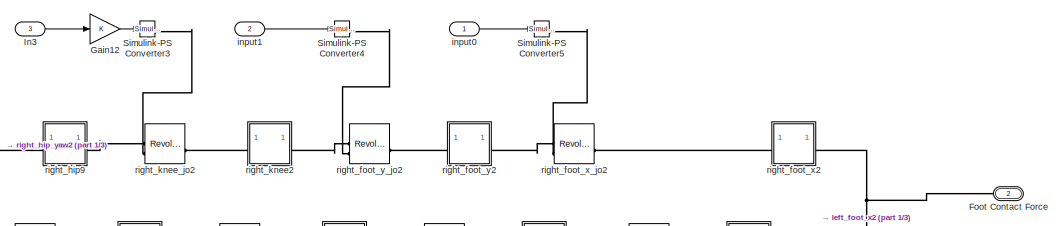
[diagram: Subsystem1 - part 2/3, middle right region]
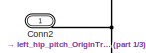
[diagram: Subsystem1 - part 3/3, middle left region]
BLOCK [SubSystem] Subsystem1
  NameLocation = top
BLOCK [PMIOPort] Subsystem1/Conn2
  Side = Right
BLOCK [PMIOPort] Subsystem1/Foot Contact Force
  NameLocation = top
  Port = 2
  Side = Right
BLOCK [Gain] Subsystem1/Gain12
BLOCK [Gain] Subsystem1/Gain13
BLOCK [Inport] Subsystem1/In10
  Port = 10
BLOCK [Inport] Subsystem1/In3
  Port = 3
BLOCK [Reference] Subsystem1/Simulink-PS Converter  REF=nesl_utility/Simulink-PS
Converter
  SourceBlock = nesl_utility/Simulink-PS\nConverter
  SourceType = Simulink-PS\nConverter
BLOCK [Reference] Subsystem1/Simulink-PS Converter1  REF=nesl_utility/Simulink-PS
Converter
  SourceBlock = nesl_utility/Simulink-PS\nConverter
  SourceType = Simulink-PS\nConverter
BLOCK [Reference] Subsystem1/Simulink-PS Converter10  REF=nesl_utility/Simulink-PS
Converter
  SourceBlock = nesl_utility/Simulink-PS\nConverter
  SourceType = Simulink-PS\nConverter
BLOCK [Reference] Subsystem1/Simulink-PS Converter11  REF=nesl_utility/Simulink-PS
Converter
  SourceBlock = nesl_utility/Simulink-PS\nConverter
  SourceType = Simulink-PS\nConverter
BLOCK [Reference] Subsystem1/Simulink-PS Converter2  REF=nesl_utility/Simulink-PS
Converter
  SourceBlock = nesl_utility/Simulink-PS\nConverter
  SourceType = Simulink-PS\nConverter
BLOCK [Reference] Subsystem1/Simulink-PS Converter3  REF=nesl_utility/Simulink-PS
Converter
  SourceBlock = nesl_utility/Simulink-PS\nConverter
  SourceType = Simulink-PS\nConverter
BLOCK [Reference] Subsystem1/Simulink-PS Converter4  REF=nesl_utility/Simulink-PS
Converter
  SourceBlock = nesl_utility/Simulink-PS\nConverter
  SourceType = Simulink-PS\nConverter
BLOCK [Reference] Subsystem1/Simulink-PS Converter5  REF=nesl_utility/Simulink-PS
Converter
  SourceBlock = nesl_utility/Simulink-PS\nConverter
  SourceType = Simulink-PS\nConverter
BLOCK [Reference] Subsystem1/Simulink-PS Converter6  REF=nesl_utility/Simulink-PS
Converter
  SourceBlock = nesl_utility/Simulink-PS\nConverter
  SourceType = Simulink-PS\nConverter
BLOCK [Reference] Subsystem1/Simulink-PS Converter7  REF=nesl_utility/Simulink-PS
Converter
  SourceBlock = nesl_utility/Simulink-PS\nConverter
  SourceType = Simulink-PS\nConverter
BLOCK [Reference] Subsystem1/Simulink-PS Converter8  REF=nesl_utility/Simulink-PS
Converter
  SourceBlock = nesl_utility/Simulink-PS\nConverter
  SourceType = Simulink-PS\nConverter
BLOCK [Reference] Subsystem1/Simulink-PS Converter9  REF=nesl_utility/Simulink-PS
Converter
  SourceBlock = nesl_utility/Simulink-PS\nConverter
  SourceType = Simulink-PS\nConverter
BLOCK [Inport] Subsystem1/input0
BLOCK [Inport] Subsystem1/input1
  Port = 2
BLOCK [Inport] Subsystem1/input2
  Port = 4
BLOCK [Inport] Subsystem1/input3
  Port = 5
BLOCK [Inport] Subsystem1/input4
  Port = 6
BLOCK [Inport] Subsystem1/input5
  Port = 7
BLOCK [Inport] Subsystem1/input6
  Port = 8
BLOCK [Inport] Subsystem1/input7
  Port = 9
BLOCK [Inport] Subsystem1/input8
  Port = 11
BLOCK [Inport] Subsystem1/input9
  Port = 12
BLOCK [SubSystem] Subsystem1/left_foot_x2
BLOCK [PMIOPort] Subsystem1/left_foot_x2/F
  Side = Left
BLOCK [PMIOPort] Subsystem1/left_foot_x2/Foot Contact Force
  Port = 2
  Side = Right
BLOCK [Reference] Subsystem1/left_foot_x2/L4d10  REF=sm_lib/Frames and
Transforms/Rigid
Transform
  NameLocation = left
  SourceBlock = sm_lib/Frames and\nTransforms/Rigid\nTransform
  SourceType = Rigid\nTransform
BLOCK [Reference] Subsystem1/left_foot_x2/L4d11  REF=sm_lib/Frames and
Transforms/Rigid
Transform
  NameLocation = left
  SourceBlock = sm_lib/Frames and\nTransforms/Rigid\nTransform
  SourceType = Rigid\nTransform
BLOCK [Reference] Subsystem1/left_foot_x2/L4d12  REF=sm_lib/Frames and
Transforms/Rigid
Transform
  NameLocation = left
  SourceBlock = sm_lib/Frames and\nTransforms/Rigid\nTransform
  SourceType = Rigid\nTransform
BLOCK [Reference] Subsystem1/left_foot_x2/L4d13  REF=sm_lib/Frames and
Transforms/Rigid
Transform
  NameLocation = left
  SourceBlock = sm_lib/Frames and\nTransforms/Rigid\nTransform
  SourceType = Rigid\nTransform
BLOCK [Reference] Subsystem1/left_foot_x2/L4d14  REF=sm_lib/Frames and
Transforms/Rigid
Transform
  NameLocation = left
  SourceBlock = sm_lib/Frames and\nTransforms/Rigid\nTransform
  SourceType = Rigid\nTransform
BLOCK [Reference] Subsystem1/left_foot_x2/L4d15  REF=sm_lib/Frames and
Transforms/Rigid
Transform
  NameLocation = left
  SourceBlock = sm_lib/Frames and\nTransforms/Rigid\nTransform
  SourceType = Rigid\nTransform
BLOCK [Reference] Subsystem1/left_foot_x2/L4d16  REF=sm_lib/Frames and
Transforms/Rigid
Transform
  NameLocation = left
  SourceBlock = sm_lib/Frames and\nTransforms/Rigid\nTransform
  SourceType = Rigid\nTransform
BLOCK [Reference] Subsystem1/left_foot_x2/L4d17  REF=sm_lib/Frames and
Transforms/Rigid
Transform
  NameLocation = left
  SourceBlock = sm_lib/Frames and\nTransforms/Rigid\nTransform
  SourceType = Rigid\nTransform
BLOCK [Reference] Subsystem1/left_foot_x2/L4d18  REF=sm_lib/Frames and
Transforms/Rigid
Transform
  NameLocation = left
  SourceBlock = sm_lib/Frames and\nTransforms/Rigid\nTransform
  SourceType = Rigid\nTransform
BLOCK [Reference] Subsystem1/left_foot_x2/L4d5  REF=sm_lib/Frames and
Transforms/Rigid
Transform
  NameLocation = left
  SourceBlock = sm_lib/Frames and\nTransforms/Rigid\nTransform
  SourceType = Rigid\nTransform
BLOCK [Reference] Subsystem1/left_foot_x2/L4d6  REF=sm_lib/Frames and
Transforms/Rigid
Transform
  NameLocation = left
  SourceBlock = sm_lib/Frames and\nTransforms/Rigid\nTransform
  SourceType = Rigid\nTransform
BLOCK [Reference] Subsystem1/left_foot_x2/L4d7  REF=sm_lib/Frames and
Transforms/Rigid
Transform
  NameLocation = left
  SourceBlock = sm_lib/Frames and\nTransforms/Rigid\nTransform
  SourceType = Rigid\nTransform
BLOCK [Reference] Subsystem1/left_foot_x2/L4d8  REF=sm_lib/Frames and
Transforms/Rigid
Transform
  NameLocation = left
  SourceBlock = sm_lib/Frames and\nTransforms/Rigid\nTransform
  SourceType = Rigid\nTransform
BLOCK [Reference] Subsystem1/left_foot_x2/L4d9  REF=sm_lib/Frames and
Transforms/Rigid
Transform
  NameLocation = left
  SourceBlock = sm_lib/Frames and\nTransforms/Rigid\nTransform
  SourceType = Rigid\nTransform
BLOCK [Reference] Subsystem1/left_foot_x2/Spatial Contact Force10  REF=sm_lib/Forces and
Torques/Spatial
Contact Force
  NameLocation = right
  SourceBlock = sm_lib/Forces and\nTorques/Spatial\nContact Force
  SourceType = Spatial\nContact Force
BLOCK [Reference] Subsystem1/left_foot_x2/Spatial Contact Force11  REF=sm_lib/Forces and
Torques/Spatial
Contact Force
  NameLocation = right
  SourceBlock = sm_lib/Forces and\nTorques/Spatial\nContact Force
  SourceType = Spatial\nContact Force
BLOCK [Reference] Subsystem1/left_foot_x2/Spatial Contact Force12  REF=sm_lib/Forces and
Torques/Spatial
Contact Force
  NameLocation = right
  SourceBlock = sm_lib/Forces and\nTorques/Spatial\nContact Force
  SourceType = Spatial\nContact Force
BLOCK [Reference] Subsystem1/left_foot_x2/Spatial Contact Force13  REF=sm_lib/Forces and
Torques/Spatial
Contact Force
  NameLocation = right
  SourceBlock = sm_lib/Forces and\nTorques/Spatial\nContact Force
  SourceType = Spatial\nContact Force
BLOCK [Reference] Subsystem1/left_foot_x2/Spatial Contact Force14  REF=sm_lib/Forces and
Torques/Spatial
Contact Force
  NameLocation = right
  SourceBlock = sm_lib/Forces and\nTorques/Spatial\nContact Force
  SourceType = Spatial\nContact Force
BLOCK [Reference] Subsystem1/left_foot_x2/Spatial Contact Force15  REF=sm_lib/Forces and
Torques/Spatial
Contact Force
  NameLocation = right
  SourceBlock = sm_lib/Forces and\nTorques/Spatial\nContact Force
  SourceType = Spatial\nContact Force
BLOCK [Reference] Subsystem1/left_foot_x2/Spatial Contact Force16  REF=sm_lib/Forces and
Torques/Spatial
Contact Force
  NameLocation = right
  SourceBlock = sm_lib/Forces and\nTorques/Spatial\nContact Force
  SourceType = Spatial\nContact Force
BLOCK [Reference] Subsystem1/left_foot_x2/Spatial Contact Force17  REF=sm_lib/Forces and
Torques/Spatial
Contact Force
  NameLocation = right
  SourceBlock = sm_lib/Forces and\nTorques/Spatial\nContact Force
  SourceType = Spatial\nContact Force
BLOCK [Reference] Subsystem1/left_foot_x2/Spatial Contact Force4  REF=sm_lib/Forces and
Torques/Spatial
Contact Force
  NameLocation = right
  SourceBlock = sm_lib/Forces and\nTorques/Spatial\nContact Force
  SourceType = Spatial\nContact Force
BLOCK [Reference] Subsystem1/left_foot_x2/Spatial Contact Force5  REF=sm_lib/Forces and
Torques/Spatial
Contact Force
  NameLocation = right
  SourceBlock = sm_lib/Forces and\nTorques/Spatial\nContact Force
  SourceType = Spatial\nContact Force
BLOCK [Reference] Subsystem1/left_foot_x2/Spatial Contact Force6  REF=sm_lib/Forces and
Torques/Spatial
Contact Force
  NameLocation = right
  SourceBlock = sm_lib/Forces and\nTorques/Spatial\nContact Force
  SourceType = Spatial\nContact Force
BLOCK [Reference] Subsystem1/left_foot_x2/Spatial Contact Force7  REF=sm_lib/Forces and
Torques/Spatial
Contact Force
  NameLocation = right
  SourceBlock = sm_lib/Forces and\nTorques/Spatial\nContact Force
  SourceType = Spatial\nContact Force
BLOCK [Reference] Subsystem1/left_foot_x2/Spatial Contact Force8  REF=sm_lib/Forces and
Torques/Spatial
Contact Force
  NameLocation = right
  SourceBlock = sm_lib/Forces and\nTorques/Spatial\nContact Force
  SourceType = Spatial\nContact Force
BLOCK [Reference] Subsystem1/left_foot_x2/Spatial Contact Force9  REF=sm_lib/Forces and
Torques/Spatial
Contact Force
  NameLocation = right
  SourceBlock = sm_lib/Forces and\nTorques/Spatial\nContact Force
  SourceType = Spatial\nContact Force
BLOCK [Reference] Subsystem1/left_foot_x2/Spherical Solid10  REF=sm_lib/Body Elements/Spherical Solid
  NameLocation = left
  SourceBlock = sm_lib/Body Elements/Spherical Solid
  SourceType = Spherical Solid
BLOCK [Reference] Subsystem1/left_foot_x2/Spherical Solid11  REF=sm_lib/Body Elements/Spherical Solid
  NameLocation = left
  SourceBlock = sm_lib/Body Elements/Spherical Solid
  SourceType = Spherical Solid
BLOCK [Reference] Subsystem1/left_foot_x2/Spherical Solid12  REF=sm_lib/Body Elements/Spherical Solid
  NameLocation = left
  SourceBlock = sm_lib/Body Elements/Spherical Solid
  SourceType = Spherical Solid
BLOCK [Reference] Subsystem1/left_foot_x2/Spherical Solid13  REF=sm_lib/Body Elements/Spherical Solid
  NameLocation = right
  SourceBlock = sm_lib/Body Elements/Spherical Solid
  SourceType = Spherical Solid
BLOCK [Reference] Subsystem1/left_foot_x2/Spherical Solid14  REF=sm_lib/Body Elements/Spherical Solid
  NameLocation = right
  SourceBlock = sm_lib/Body Elements/Spherical Solid
  SourceType = Spherical Solid
BLOCK [Reference] Subsystem1/left_foot_x2/Spherical Solid15  REF=sm_lib/Body Elements/Spherical Solid
  NameLocation = right
  SourceBlock = sm_lib/Body Elements/Spherical Solid
  SourceType = Spherical Solid
BLOCK [Reference] Subsystem1/left_foot_x2/Spherical Solid16  REF=sm_lib/Body Elements/Spherical Solid
  NameLocation = left
  SourceBlock = sm_lib/Body Elements/Spherical Solid
  SourceType = Spherical Solid
BLOCK [Reference] Subsystem1/left_foot_x2/Spherical Solid17  REF=sm_lib/Body Elements/Spherical Solid
  NameLocation = right
  SourceBlock = sm_lib/Body Elements/Spherical Solid
  SourceType = Spherical Solid
BLOCK [Reference] Subsystem1/left_foot_x2/Spherical Solid4  REF=sm_lib/Body Elements/Spherical Solid
  NameLocation = right
  SourceBlock = sm_lib/Body Elements/Spherical Solid
  SourceType = Spherical Solid
BLOCK [Reference] Subsystem1/left_foot_x2/Spherical Solid5  REF=sm_lib/Body Elements/Spherical Solid
  NameLocation = right
  SourceBlock = sm_lib/Body Elements/Spherical Solid
  SourceType = Spherical Solid
BLOCK [Reference] Subsystem1/left_foot_x2/Spherical Solid6  REF=sm_lib/Body Elements/Spherical Solid
  NameLocation = right
  SourceBlock = sm_lib/Body Elements/Spherical Solid
  SourceType = Spherical Solid
BLOCK [Reference] Subsystem1/left_foot_x2/Spherical Solid7  REF=sm_lib/Body Elements/Spherical Solid
  NameLocation = right
  SourceBlock = sm_lib/Body Elements/Spherical Solid
  SourceType = Spherical Solid
BLOCK [Reference] Subsystem1/left_foot_x2/Spherical Solid8  REF=sm_lib/Body Elements/Spherical Solid
  NameLocation = right
  SourceBlock = sm_lib/Body Elements/Spherical Solid
  SourceType = Spherical Solid
BLOCK [Reference] Subsystem1/left_foot_x2/Spherical Solid9  REF=sm_lib/Body Elements/Spherical Solid
  NameLocation = right
  SourceBlock = sm_lib/Body Elements/Spherical Solid
  SourceType = Spherical Solid
BLOCK [Reference] Subsystem1/left_foot_x2/Visual  REF=sm_lib/Body Elements/File Solid
  SourceBlock = sm_lib/Body Elements/File Solid
  SourceType = File Solid
BLOCK [Reference] Subsystem1/left_foot_x2/VisualOriginTransform  REF=sm_lib/Frames and
Transforms/Rigid
Transform
  NameLocation = top
  SourceBlock = sm_lib/Frames and\nTransforms/Rigid\nTransform
  SourceType = Rigid\nTransform
BLOCK [Reference] Subsystem1/left_foot_x2/left_foot_x_jo_AxisInvTransform  REF=sm_lib/Frames and
Transforms/Rigid
Transform
  SourceBlock = sm_lib/Frames and\nTransforms/Rigid\nTransform
  SourceType = Rigid\nTransform
BLOCK [Reference] Subsystem1/left_foot_x_jo2  REF=sm_lib/Joints/Revolute Joint
  SourceBlock = sm_lib/Joints/Revolute Joint
  SourceType = Revolute Joint
BLOCK [SubSystem] Subsystem1/left_foot_y2
BLOCK [PMIOPort] Subsystem1/left_foot_y2/F
  Side = Left
BLOCK [PMIOPort] Subsystem1/left_foot_y2/F1
  Port = 2
  Side = Right
BLOCK [Reference] Subsystem1/left_foot_y2/Visual  REF=sm_lib/Body Elements/File Solid
  SourceBlock = sm_lib/Body Elements/File Solid
  SourceType = File Solid
BLOCK [Reference] Subsystem1/left_foot_y2/VisualOriginTransform  REF=sm_lib/Frames and
Transforms/Rigid
Transform
  SourceBlock = sm_lib/Frames and\nTransforms/Rigid\nTransform
  SourceType = Rigid\nTransform
BLOCK [Reference] Subsystem1/left_foot_y2/left_foot_x_jo_AxisTransform  REF=sm_lib/Frames and
Transforms/Rigid
Transform
  SourceBlock = sm_lib/Frames and\nTransforms/Rigid\nTransform
  SourceType = Rigid\nTransform
BLOCK [Reference] Subsystem1/left_foot_y2/left_foot_x_jo_OriginTransform  REF=sm_lib/Frames and
Transforms/Rigid
Transform
  SourceBlock = sm_lib/Frames and\nTransforms/Rigid\nTransform
  SourceType = Rigid\nTransform
BLOCK [Reference] Subsystem1/left_foot_y2/left_foot_y_jo_AxisInvTransform  REF=sm_lib/Frames and
Transforms/Rigid
Transform
  SourceBlock = sm_lib/Frames and\nTransforms/Rigid\nTransform
  SourceType = Rigid\nTransform
BLOCK [Reference] Subsystem1/left_foot_y_jo2  REF=sm_lib/Joints/Revolute Joint
  SourceBlock = sm_lib/Joints/Revolute Joint
  SourceType = Revolute Joint
BLOCK [SubSystem] Subsystem1/left_hip7
BLOCK [PMIOPort] Subsystem1/left_hip7/F
  Side = Left
BLOCK [PMIOPort] Subsystem1/left_hip7/F1
  Port = 2
  Side = Right
BLOCK [Reference] Subsystem1/left_hip7/VisualOriginTransform  REF=sm_lib/Frames and
Transforms/Rigid
Transform
  SourceBlock = sm_lib/Frames and\nTransforms/Rigid\nTransform
  SourceType = Rigid\nTransform
BLOCK [Reference] Subsystem1/left_hip7/left_hip_pitch_AxisInvTransform  REF=sm_lib/Frames and
Transforms/Rigid
Transform
  SourceBlock = sm_lib/Frames and\nTransforms/Rigid\nTransform
  SourceType = Rigid\nTransform
BLOCK [Reference] Subsystem1/left_hip7/left_hip_roll  REF=sm_lib/Body Elements/File Solid
  SourceBlock = sm_lib/Body Elements/File Solid
  SourceType = File Solid
BLOCK [Reference] Subsystem1/left_hip7/left_hip_roll_AxisTransform  REF=sm_lib/Frames and
Transforms/Rigid
Transform
  SourceBlock = sm_lib/Frames and\nTransforms/Rigid\nTransform
  SourceType = Rigid\nTransform
BLOCK [Reference] Subsystem1/left_hip7/left_hip_roll_OriginTransform  REF=sm_lib/Frames and
Transforms/Rigid
Transform
  SourceBlock = sm_lib/Frames and\nTransforms/Rigid\nTransform
  SourceType = Rigid\nTransform
BLOCK [SubSystem] Subsystem1/left_hip8
BLOCK [PMIOPort] Subsystem1/left_hip8/F
  Side = Left
BLOCK [PMIOPort] Subsystem1/left_hip8/F1
  Port = 2
  Side = Right
BLOCK [Reference] Subsystem1/left_hip8/VisualOriginTransform  REF=sm_lib/Frames and
Transforms/Rigid
Transform
  SourceBlock = sm_lib/Frames and\nTransforms/Rigid\nTransform
  SourceType = Rigid\nTransform
BLOCK [Reference] Subsystem1/left_hip8/left_hip_roll  REF=sm_lib/Body Elements/File Solid
  SourceBlock = sm_lib/Body Elements/File Solid
  SourceType = File Solid
BLOCK [Reference] Subsystem1/left_hip8/left_hip_roll_AxisInvTransform  REF=sm_lib/Frames and
Transforms/Rigid
Transform
  SourceBlock = sm_lib/Frames and\nTransforms/Rigid\nTransform
  SourceType = Rigid\nTransform
BLOCK [Reference] Subsystem1/left_hip8/left_hip_yaw_AxisTransform  REF=sm_lib/Frames and
Transforms/Rigid
Transform
  SourceBlock = sm_lib/Frames and\nTransforms/Rigid\nTransform
  SourceType = Rigid\nTransform
BLOCK [Reference] Subsystem1/left_hip8/left_hip_yaw_OriginTransform  REF=sm_lib/Frames and
Transforms/Rigid
Transform
  SourceBlock = sm_lib/Frames and\nTransforms/Rigid\nTransform
  SourceType = Rigid\nTransform
BLOCK [SubSystem] Subsystem1/left_hip9
BLOCK [PMIOPort] Subsystem1/left_hip9/F
  Side = Left
BLOCK [PMIOPort] Subsystem1/left_hip9/F1
  Port = 2
  Side = Right
BLOCK [Reference] Subsystem1/left_hip9/Visual  REF=sm_lib/Body Elements/File Solid
  SourceBlock = sm_lib/Body Elements/File Solid
  SourceType = File Solid
BLOCK [Reference] Subsystem1/left_hip9/VisualOriginTransform  REF=sm_lib/Frames and
Transforms/Rigid
Transform
  SourceBlock = sm_lib/Frames and\nTransforms/Rigid\nTransform
  SourceType = Rigid\nTransform
BLOCK [Reference] Subsystem1/left_hip9/left_hip_yaw_AxisInvTransform  REF=sm_lib/Frames and
Transforms/Rigid
Transform
  SourceBlock = sm_lib/Frames and\nTransforms/Rigid\nTransform
  SourceType = Rigid\nTransform
BLOCK [Reference] Subsystem1/left_hip9/left_knee_jo_AxisTransform  REF=sm_lib/Frames and
Transforms/Rigid
Transform
  SourceBlock = sm_lib/Frames and\nTransforms/Rigid\nTransform
  SourceType = Rigid\nTransform
BLOCK [Reference] Subsystem1/left_hip9/left_knee_jo_OriginTransform  REF=sm_lib/Frames and
Transforms/Rigid
Transform
  SourceBlock = sm_lib/Frames and\nTransforms/Rigid\nTransform
  SourceType = Rigid\nTransform
BLOCK [Reference] Subsystem1/left_hip_pitch2  REF=sm_lib/Joints/Revolute Joint
  SourceBlock = sm_lib/Joints/Revolute Joint
  SourceType = Revolute Joint
BLOCK [Reference] Subsystem1/left_hip_pitch_AxisTransform2  REF=sm_lib/Frames and
Transforms/Rigid
Transform
  SourceBlock = sm_lib/Frames and\nTransforms/Rigid\nTransform
  SourceType = Rigid\nTransform
BLOCK [Reference] Subsystem1/left_hip_pitch_OriginTransform2  REF=sm_lib/Frames and
Transforms/Rigid
Transform
  SourceBlock = sm_lib/Frames and\nTransforms/Rigid\nTransform
  SourceType = Rigid\nTransform
BLOCK [Reference] Subsystem1/left_hip_roll2  REF=sm_lib/Joints/Revolute Joint
  SourceBlock = sm_lib/Joints/Revolute Joint
  SourceType = Revolute Joint
BLOCK [Reference] Subsystem1/left_hip_yaw2  REF=sm_lib/Joints/Revolute Joint
  SourceBlock = sm_lib/Joints/Revolute Joint
  SourceType = Revolute Joint
BLOCK [SubSystem] Subsystem1/left_knee2
BLOCK [PMIOPort] Subsystem1/left_knee2/F
  Side = Left
BLOCK [PMIOPort] Subsystem1/left_knee2/F1
  Port = 2
  Side = Right
BLOCK [Reference] Subsystem1/left_knee2/Visual  REF=sm_lib/Body Elements/File Solid
  SourceBlock = sm_lib/Body Elements/File Solid
  SourceType = File Solid
BLOCK [Reference] Subsystem1/left_knee2/VisualOriginTransform  REF=sm_lib/Frames and
Transforms/Rigid
Transform
  SourceBlock = sm_lib/Frames and\nTransforms/Rigid\nTransform
  SourceType = Rigid\nTransform
BLOCK [Reference] Subsystem1/left_knee2/left_foot_y_jo_AxisTransform  REF=sm_lib/Frames and
Transforms/Rigid
Transform
  SourceBlock = sm_lib/Frames and\nTransforms/Rigid\nTransform
  SourceType = Rigid\nTransform
BLOCK [Reference] Subsystem1/left_knee2/left_foot_y_jo_OriginTransform  REF=sm_lib/Frames and
Transforms/Rigid
Transform
  SourceBlock = sm_lib/Frames and\nTransforms/Rigid\nTransform
  SourceType = Rigid\nTransform
BLOCK [Reference] Subsystem1/left_knee2/left_knee_jo_AxisInvTransform  REF=sm_lib/Frames and
Transforms/Rigid
Transform
  SourceBlock = sm_lib/Frames and\nTransforms/Rigid\nTransform
  SourceType = Rigid\nTransform
BLOCK [Reference] Subsystem1/left_knee_jo2  REF=sm_lib/Joints/Revolute Joint
  SourceBlock = sm_lib/Joints/Revolute Joint
  SourceType = Revolute Joint
BLOCK [SubSystem] Subsystem1/right_foot_x2
BLOCK [PMIOPort] Subsystem1/right_foot_x2/F
  Side = Left
BLOCK [PMIOPort] Subsystem1/right_foot_x2/Foot Contact Force
  Port = 2
  Side = Right
BLOCK [Reference] Subsystem1/right_foot_x2/L4d1  REF=sm_lib/Frames and
Transforms/Rigid
Transform
  NameLocation = left
  SourceBlock = sm_lib/Frames and\nTransforms/Rigid\nTransform
  SourceType = Rigid\nTransform
BLOCK [Reference] Subsystem1/right_foot_x2/L4d10  REF=sm_lib/Frames and
Transforms/Rigid
Transform
  NameLocation = left
  SourceBlock = sm_lib/Frames and\nTransforms/Rigid\nTransform
  SourceType = Rigid\nTransform
BLOCK [Reference] Subsystem1/right_foot_x2/L4d11  REF=sm_lib/Frames and
Transforms/Rigid
Transform
  NameLocation = left
  SourceBlock = sm_lib/Frames and\nTransforms/Rigid\nTransform
  SourceType = Rigid\nTransform
BLOCK [Reference] Subsystem1/right_foot_x2/L4d12  REF=sm_lib/Frames and
Transforms/Rigid
Transform
  NameLocation = left
  SourceBlock = sm_lib/Frames and\nTransforms/Rigid\nTransform
  SourceType = Rigid\nTransform
BLOCK [Reference] Subsystem1/right_foot_x2/L4d13  REF=sm_lib/Frames and
Transforms/Rigid
Transform
  NameLocation = left
  SourceBlock = sm_lib/Frames and\nTransforms/Rigid\nTransform
  SourceType = Rigid\nTransform
BLOCK [Reference] Subsystem1/right_foot_x2/L4d14  REF=sm_lib/Frames and
Transforms/Rigid
Transform
  NameLocation = left
  SourceBlock = sm_lib/Frames and\nTransforms/Rigid\nTransform
  SourceType = Rigid\nTransform
BLOCK [Reference] Subsystem1/right_foot_x2/L4d2  REF=sm_lib/Frames and
Transforms/Rigid
Transform
  NameLocation = left
  SourceBlock = sm_lib/Frames and\nTransforms/Rigid\nTransform
  SourceType = Rigid\nTransform
BLOCK [Reference] Subsystem1/right_foot_x2/L4d3  REF=sm_lib/Frames and
Transforms/Rigid
Transform
  NameLocation = left
  SourceBlock = sm_lib/Frames and\nTransforms/Rigid\nTransform
  SourceType = Rigid\nTransform
BLOCK [Reference] Subsystem1/right_foot_x2/L4d4  REF=sm_lib/Frames and
Transforms/Rigid
Transform
  NameLocation = left
  SourceBlock = sm_lib/Frames and\nTransforms/Rigid\nTransform
  SourceType = Rigid\nTransform
BLOCK [Reference] Subsystem1/right_foot_x2/L4d5  REF=sm_lib/Frames and
Transforms/Rigid
Transform
  NameLocation = left
  SourceBlock = sm_lib/Frames and\nTransforms/Rigid\nTransform
  SourceType = Rigid\nTransform
BLOCK [Reference] Subsystem1/right_foot_x2/L4d6  REF=sm_lib/Frames and
Transforms/Rigid
Transform
  NameLocation = left
  SourceBlock = sm_lib/Frames and\nTransforms/Rigid\nTransform
  SourceType = Rigid\nTransform
BLOCK [Reference] Subsystem1/right_foot_x2/L4d7  REF=sm_lib/Frames and
Transforms/Rigid
Transform
  NameLocation = left
  SourceBlock = sm_lib/Frames and\nTransforms/Rigid\nTransform
  SourceType = Rigid\nTransform
BLOCK [Reference] Subsystem1/right_foot_x2/L4d8  REF=sm_lib/Frames and
Transforms/Rigid
Transform
  NameLocation = left
  SourceBlock = sm_lib/Frames and\nTransforms/Rigid\nTransform
  SourceType = Rigid\nTransform
BLOCK [Reference] Subsystem1/right_foot_x2/L4d9  REF=sm_lib/Frames and
Transforms/Rigid
Transform
  NameLocation = left
  SourceBlock = sm_lib/Frames and\nTransforms/Rigid\nTransform
  SourceType = Rigid\nTransform
BLOCK [Reference] Subsystem1/right_foot_x2/Spatial Contact Force1  REF=sm_lib/Forces and
Torques/Spatial
Contact Force
  NameLocation = right
  SourceBlock = sm_lib/Forces and\nTorques/Spatial\nContact Force
  SourceType = Spatial\nContact Force
BLOCK [Reference] Subsystem1/right_foot_x2/Spatial Contact Force10  REF=sm_lib/Forces and
Torques/Spatial
Contact Force
  NameLocation = right
  SourceBlock = sm_lib/Forces and\nTorques/Spatial\nContact Force
  SourceType = Spatial\nContact Force
BLOCK [Reference] Subsystem1/right_foot_x2/Spatial Contact Force11  REF=sm_lib/Forces and
Torques/Spatial
Contact Force
  NameLocation = right
  SourceBlock = sm_lib/Forces and\nTorques/Spatial\nContact Force
  SourceType = Spatial\nContact Force
BLOCK [Reference] Subsystem1/right_foot_x2/Spatial Contact Force12  REF=sm_lib/Forces and
Torques/Spatial
Contact Force
  NameLocation = right
  SourceBlock = sm_lib/Forces and\nTorques/Spatial\nContact Force
  SourceType = Spatial\nContact Force
BLOCK [Reference] Subsystem1/right_foot_x2/Spatial Contact Force13  REF=sm_lib/Forces and
Torques/Spatial
Contact Force
  NameLocation = right
  SourceBlock = sm_lib/Forces and\nTorques/Spatial\nContact Force
  SourceType = Spatial\nContact Force
BLOCK [Reference] Subsystem1/right_foot_x2/Spatial Contact Force14  REF=sm_lib/Forces and
Torques/Spatial
Contact Force
  NameLocation = right
  SourceBlock = sm_lib/Forces and\nTorques/Spatial\nContact Force
  SourceType = Spatial\nContact Force
BLOCK [Reference] Subsystem1/right_foot_x2/Spatial Contact Force2  REF=sm_lib/Forces and
Torques/Spatial
Contact Force
  NameLocation = right
  SourceBlock = sm_lib/Forces and\nTorques/Spatial\nContact Force
  SourceType = Spatial\nContact Force
BLOCK [Reference] Subsystem1/right_foot_x2/Spatial Contact Force3  REF=sm_lib/Forces and
Torques/Spatial
Contact Force
  NameLocation = right
  SourceBlock = sm_lib/Forces and\nTorques/Spatial\nContact Force
  SourceType = Spatial\nContact Force
BLOCK [Reference] Subsystem1/right_foot_x2/Spatial Contact Force4  REF=sm_lib/Forces and
Torques/Spatial
Contact Force
  NameLocation = right
  SourceBlock = sm_lib/Forces and\nTorques/Spatial\nContact Force
  SourceType = Spatial\nContact Force
BLOCK [Reference] Subsystem1/right_foot_x2/Spatial Contact Force5  REF=sm_lib/Forces and
Torques/Spatial
Contact Force
  NameLocation = right
  SourceBlock = sm_lib/Forces and\nTorques/Spatial\nContact Force
  SourceType = Spatial\nContact Force
BLOCK [Reference] Subsystem1/right_foot_x2/Spatial Contact Force6  REF=sm_lib/Forces and
Torques/Spatial
Contact Force
  NameLocation = right
  SourceBlock = sm_lib/Forces and\nTorques/Spatial\nContact Force
  SourceType = Spatial\nContact Force
BLOCK [Reference] Subsystem1/right_foot_x2/Spatial Contact Force7  REF=sm_lib/Forces and
Torques/Spatial
Contact Force
  NameLocation = right
  SourceBlock = sm_lib/Forces and\nTorques/Spatial\nContact Force
  SourceType = Spatial\nContact Force
BLOCK [Reference] Subsystem1/right_foot_x2/Spatial Contact Force8  REF=sm_lib/Forces and
Torques/Spatial
Contact Force
  NameLocation = right
  SourceBlock = sm_lib/Forces and\nTorques/Spatial\nContact Force
  SourceType = Spatial\nContact Force
BLOCK [Reference] Subsystem1/right_foot_x2/Spatial Contact Force9  REF=sm_lib/Forces and
Torques/Spatial
Contact Force
  NameLocation = right
  SourceBlock = sm_lib/Forces and\nTorques/Spatial\nContact Force
  SourceType = Spatial\nContact Force
BLOCK [Reference] Subsystem1/right_foot_x2/Spherical Solid1  REF=sm_lib/Body Elements/Spherical Solid
  NameLocation = right
  SourceBlock = sm_lib/Body Elements/Spherical Solid
  SourceType = Spherical Solid
BLOCK [Reference] Subsystem1/right_foot_x2/Spherical Solid10  REF=sm_lib/Body Elements/Spherical Solid
  NameLocation = left
  SourceBlock = sm_lib/Body Elements/Spherical Solid
  SourceType = Spherical Solid
BLOCK [Reference] Subsystem1/right_foot_x2/Spherical Solid11  REF=sm_lib/Body Elements/Spherical Solid
  NameLocation = left
  SourceBlock = sm_lib/Body Elements/Spherical Solid
  SourceType = Spherical Solid
BLOCK [Reference] Subsystem1/right_foot_x2/Spherical Solid12  REF=sm_lib/Body Elements/Spherical Solid
  NameLocation = left
  SourceBlock = sm_lib/Body Elements/Spherical Solid
  SourceType = Spherical Solid
BLOCK [Reference] Subsystem1/right_foot_x2/Spherical Solid13  REF=sm_lib/Body Elements/Spherical Solid
  NameLocation = right
  SourceBlock = sm_lib/Body Elements/Spherical Solid
  SourceType = Spherical Solid
BLOCK [Reference] Subsystem1/right_foot_x2/Spherical Solid14  REF=sm_lib/Body Elements/Spherical Solid
  NameLocation = right
  SourceBlock = sm_lib/Body Elements/Spherical Solid
  SourceType = Spherical Solid
BLOCK [Reference] Subsystem1/right_foot_x2/Spherical Solid2  REF=sm_lib/Body Elements/Spherical Solid
  NameLocation = right
  SourceBlock = sm_lib/Body Elements/Spherical Solid
  SourceType = Spherical Solid
BLOCK [Reference] Subsystem1/right_foot_x2/Spherical Solid3  REF=sm_lib/Body Elements/Spherical Solid
  NameLocation = right
  SourceBlock = sm_lib/Body Elements/Spherical Solid
  SourceType = Spherical Solid
BLOCK [Reference] Subsystem1/right_foot_x2/Spherical Solid4  REF=sm_lib/Body Elements/Spherical Solid
  NameLocation = right
  SourceBlock = sm_lib/Body Elements/Spherical Solid
  SourceType = Spherical Solid
BLOCK [Reference] Subsystem1/right_foot_x2/Spherical Solid5  REF=sm_lib/Body Elements/Spherical Solid
  NameLocation = right
  SourceBlock = sm_lib/Body Elements/Spherical Solid
  SourceType = Spherical Solid
BLOCK [Reference] Subsystem1/right_foot_x2/Spherical Solid6  REF=sm_lib/Body Elements/Spherical Solid
  NameLocation = right
  SourceBlock = sm_lib/Body Elements/Spherical Solid
  SourceType = Spherical Solid
BLOCK [Reference] Subsystem1/right_foot_x2/Spherical Solid7  REF=sm_lib/Body Elements/Spherical Solid
  NameLocation = right
  SourceBlock = sm_lib/Body Elements/Spherical Solid
  SourceType = Spherical Solid
BLOCK [Reference] Subsystem1/right_foot_x2/Spherical Solid8  REF=sm_lib/Body Elements/Spherical Solid
  NameLocation = left
  SourceBlock = sm_lib/Body Elements/Spherical Solid
  SourceType = Spherical Solid
BLOCK [Reference] Subsystem1/right_foot_x2/Spherical Solid9  REF=sm_lib/Body Elements/Spherical Solid
  NameLocation = right
  SourceBlock = sm_lib/Body Elements/Spherical Solid
  SourceType = Spherical Solid
BLOCK [Reference] Subsystem1/right_foot_x2/Visual  REF=sm_lib/Body Elements/File Solid
  SourceBlock = sm_lib/Body Elements/File Solid
  SourceType = File Solid
BLOCK [Reference] Subsystem1/right_foot_x2/VisualOriginTransform  REF=sm_lib/Frames and
Transforms/Rigid
Transform
  NameLocation = top
  SourceBlock = sm_lib/Frames and\nTransforms/Rigid\nTransform
  SourceType = Rigid\nTransform
BLOCK [Reference] Subsystem1/right_foot_x2/right_foot_x_jo_AxisInvTransform  REF=sm_lib/Frames and
Transforms/Rigid
Transform
  SourceBlock = sm_lib/Frames and\nTransforms/Rigid\nTransform
  SourceType = Rigid\nTransform
BLOCK [Reference] Subsystem1/right_foot_x_jo2  REF=sm_lib/Joints/Revolute Joint
  SourceBlock = sm_lib/Joints/Revolute Joint
  SourceType = Revolute Joint
BLOCK [SubSystem] Subsystem1/right_foot_y2
BLOCK [PMIOPort] Subsystem1/right_foot_y2/F
  Side = Left
BLOCK [PMIOPort] Subsystem1/right_foot_y2/F1
  Port = 2
  Side = Right
BLOCK [Reference] Subsystem1/right_foot_y2/Visual  REF=sm_lib/Body Elements/File Solid
  SourceBlock = sm_lib/Body Elements/File Solid
  SourceType = File Solid
BLOCK [Reference] Subsystem1/right_foot_y2/VisualOriginTransform  REF=sm_lib/Frames and
Transforms/Rigid
Transform
  SourceBlock = sm_lib/Frames and\nTransforms/Rigid\nTransform
  SourceType = Rigid\nTransform
BLOCK [Reference] Subsystem1/right_foot_y2/right_foot_x_jo_AxisTransform  REF=sm_lib/Frames and
Transforms/Rigid
Transform
  SourceBlock = sm_lib/Frames and\nTransforms/Rigid\nTransform
  SourceType = Rigid\nTransform
BLOCK [Reference] Subsystem1/right_foot_y2/right_foot_x_jo_OriginTransform  REF=sm_lib/Frames and
Transforms/Rigid
Transform
  SourceBlock = sm_lib/Frames and\nTransforms/Rigid\nTransform
  SourceType = Rigid\nTransform
BLOCK [Reference] Subsystem1/right_foot_y2/right_foot_y_jo_AxisInvTransform  REF=sm_lib/Frames and
Transforms/Rigid
Transform
  SourceBlock = sm_lib/Frames and\nTransforms/Rigid\nTransform
  SourceType = Rigid\nTransform
BLOCK [Reference] Subsystem1/right_foot_y_jo2  REF=sm_lib/Joints/Revolute Joint
  SourceBlock = sm_lib/Joints/Revolute Joint
  SourceType = Revolute Joint
BLOCK [SubSystem] Subsystem1/right_hip7
BLOCK [PMIOPort] Subsystem1/right_hip7/F
  Side = Left
BLOCK [PMIOPort] Subsystem1/right_hip7/F1
  Port = 2
  Side = Right
BLOCK [Reference] Subsystem1/right_hip7/VisualOriginTransform  REF=sm_lib/Frames and
Transforms/Rigid
Transform
  SourceBlock = sm_lib/Frames and\nTransforms/Rigid\nTransform
  SourceType = Rigid\nTransform
BLOCK [Reference] Subsystem1/right_hip7/right_hip_pitch  REF=sm_lib/Body Elements/File Solid
  SourceBlock = sm_lib/Body Elements/File Solid
  SourceType = File Solid
BLOCK [Reference] Subsystem1/right_hip7/right_hip_pitch_AxisInvTransform  REF=sm_lib/Frames and
Transforms/Rigid
Transform
  SourceBlock = sm_lib/Frames and\nTransforms/Rigid\nTransform
  SourceType = Rigid\nTransform
BLOCK [Reference] Subsystem1/right_hip7/right_hip_roll_AxisTransform  REF=sm_lib/Frames and
Transforms/Rigid
Transform
  SourceBlock = sm_lib/Frames and\nTransforms/Rigid\nTransform
  SourceType = Rigid\nTransform
BLOCK [Reference] Subsystem1/right_hip7/right_hip_roll_OriginTransform  REF=sm_lib/Frames and
Transforms/Rigid
Transform
  SourceBlock = sm_lib/Frames and\nTransforms/Rigid\nTransform
  SourceType = Rigid\nTransform
BLOCK [SubSystem] Subsystem1/right_hip8
BLOCK [PMIOPort] Subsystem1/right_hip8/F
  Side = Left
BLOCK [PMIOPort] Subsystem1/right_hip8/F1
  Port = 2
  Side = Right
BLOCK [Reference] Subsystem1/right_hip8/VisualOriginTransform  REF=sm_lib/Frames and
Transforms/Rigid
Transform
  SourceBlock = sm_lib/Frames and\nTransforms/Rigid\nTransform
  SourceType = Rigid\nTransform
BLOCK [Reference] Subsystem1/right_hip8/right_hip_roll  REF=sm_lib/Body Elements/File Solid
  SourceBlock = sm_lib/Body Elements/File Solid
  SourceType = File Solid
BLOCK [Reference] Subsystem1/right_hip8/right_hip_roll_AxisInvTransform  REF=sm_lib/Frames and
Transforms/Rigid
Transform
  SourceBlock = sm_lib/Frames and\nTransforms/Rigid\nTransform
  SourceType = Rigid\nTransform
BLOCK [Reference] Subsystem1/right_hip8/right_hip_yaw_AxisTransform  REF=sm_lib/Frames and
Transforms/Rigid
Transform
  SourceBlock = sm_lib/Frames and\nTransforms/Rigid\nTransform
  SourceType = Rigid\nTransform
BLOCK [Reference] Subsystem1/right_hip8/right_hip_yaw_OriginTransform  REF=sm_lib/Frames and
Transforms/Rigid
Transform
  SourceBlock = sm_lib/Frames and\nTransforms/Rigid\nTransform
  SourceType = Rigid\nTransform
BLOCK [SubSystem] Subsystem1/right_hip9
BLOCK [PMIOPort] Subsystem1/right_hip9/F
  Side = Left
BLOCK [PMIOPort] Subsystem1/right_hip9/F1
  Port = 2
  Side = Right
BLOCK [Reference] Subsystem1/right_hip9/VisualOriginTransform  REF=sm_lib/Frames and
Transforms/Rigid
Transform
  SourceBlock = sm_lib/Frames and\nTransforms/Rigid\nTransform
  SourceType = Rigid\nTransform
BLOCK [Reference] Subsystem1/right_hip9/right_hip_yaw  REF=sm_lib/Body Elements/File Solid
  NameLocation = top
  SourceBlock = sm_lib/Body Elements/File Solid
  SourceType = File Solid
BLOCK [Reference] Subsystem1/right_hip9/right_hip_yaw_AxisInvTransform  REF=sm_lib/Frames and
Transforms/Rigid
Transform
  SourceBlock = sm_lib/Frames and\nTransforms/Rigid\nTransform
  SourceType = Rigid\nTransform
BLOCK [Reference] Subsystem1/right_hip9/right_knee_jo_AxisTransform  REF=sm_lib/Frames and
Transforms/Rigid
Transform
  SourceBlock = sm_lib/Frames and\nTransforms/Rigid\nTransform
  SourceType = Rigid\nTransform
BLOCK [Reference] Subsystem1/right_hip9/right_knee_jo_OriginTransform  REF=sm_lib/Frames and
Transforms/Rigid
Transform
  SourceBlock = sm_lib/Frames and\nTransforms/Rigid\nTransform
  SourceType = Rigid\nTransform
BLOCK [Reference] Subsystem1/right_hip_pitch2  REF=sm_lib/Joints/Revolute Joint
  SourceBlock = sm_lib/Joints/Revolute Joint
  SourceType = Revolute Joint
BLOCK [Reference] Subsystem1/right_hip_pitch_AxisTransform2  REF=sm_lib/Frames and
Transforms/Rigid
Transform
  SourceBlock = sm_lib/Frames and\nTransforms/Rigid\nTransform
  SourceType = Rigid\nTransform
BLOCK [Reference] Subsystem1/right_hip_pitch_OriginTransform2  REF=sm_lib/Frames and
Transforms/Rigid
Transform
  SourceBlock = sm_lib/Frames and\nTransforms/Rigid\nTransform
  SourceType = Rigid\nTransform
BLOCK [Reference] Subsystem1/right_hip_roll2  REF=sm_lib/Joints/Revolute Joint
  SourceBlock = sm_lib/Joints/Revolute Joint
  SourceType = Revolute Joint
BLOCK [Reference] Subsystem1/right_hip_yaw2  REF=sm_lib/Joints/Revolute Joint
  SourceBlock = sm_lib/Joints/Revolute Joint
  SourceType = Revolute Joint
BLOCK [SubSystem] Subsystem1/right_knee2
BLOCK [PMIOPort] Subsystem1/right_knee2/F
  Side = Left
BLOCK [PMIOPort] Subsystem1/right_knee2/F1
  Port = 2
  Side = Right
BLOCK [Reference] Subsystem1/right_knee2/Visual  REF=sm_lib/Body Elements/File Solid
  NameLocation = top
  SourceBlock = sm_lib/Body Elements/File Solid
  SourceType = File Solid
BLOCK [Reference] Subsystem1/right_knee2/VisualOriginTransform  REF=sm_lib/Frames and
Transforms/Rigid
Transform
  SourceBlock = sm_lib/Frames and\nTransforms/Rigid\nTransform
  SourceType = Rigid\nTransform
BLOCK [Reference] Subsystem1/right_knee2/right_foot_y_jo_AxisTransform  REF=sm_lib/Frames and
Transforms/Rigid
Transform
  SourceBlock = sm_lib/Frames and\nTransforms/Rigid\nTransform
  SourceType = Rigid\nTransform
BLOCK [Reference] Subsystem1/right_knee2/right_foot_y_jo_OriginTransform  REF=sm_lib/Frames and
Transforms/Rigid
Transform
  SourceBlock = sm_lib/Frames and\nTransforms/Rigid\nTransform
  SourceType = Rigid\nTransform
BLOCK [Reference] Subsystem1/right_knee2/right_knee_jo_AxisInvTransform  REF=sm_lib/Frames and
Transforms/Rigid
Transform
  SourceBlock = sm_lib/Frames and\nTransforms/Rigid\nTransform
  SourceType = Rigid\nTransform
BLOCK [Reference] Subsystem1/right_knee_jo2  REF=sm_lib/Joints/Revolute Joint
  SourceBlock = sm_lib/Joints/Revolute Joint
  SourceType = Revolute Joint
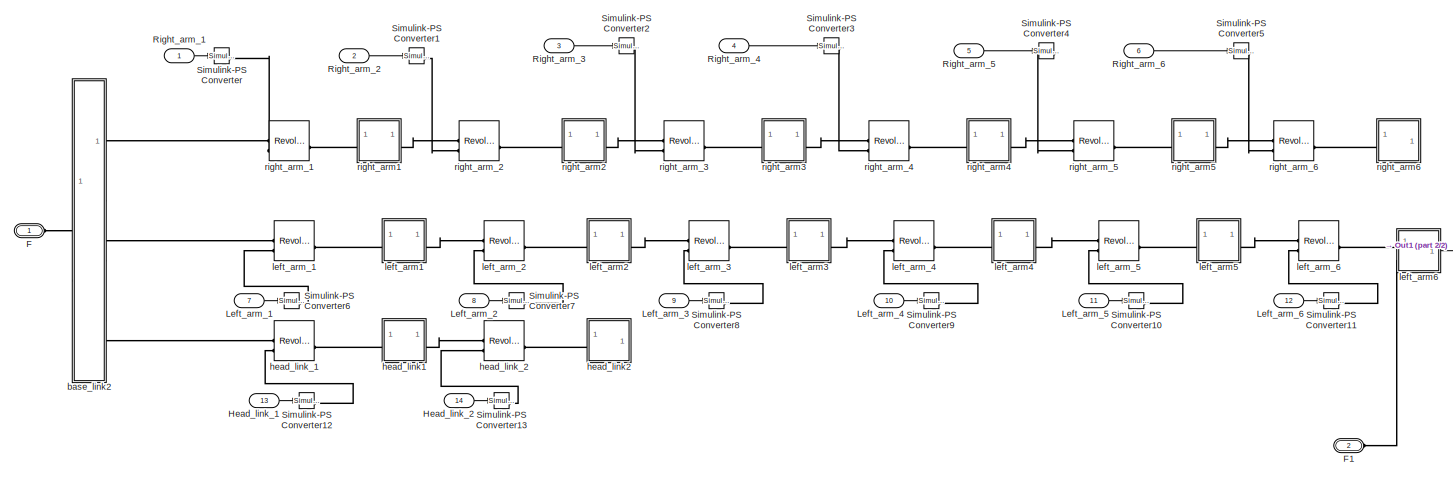
[diagram: Subsystem2 - part 1/2, most of the canvas]
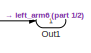
[diagram: Subsystem2 - part 2/2, middle right region]
BLOCK [SubSystem] Subsystem2
BLOCK [PMIOPort] Subsystem2/F
  Side = Left
BLOCK [PMIOPort] Subsystem2/F1
  Port = 2
  Side = Left
BLOCK [Inport] Subsystem2/Head_link_1
  Port = 13
BLOCK [Inport] Subsystem2/Head_link_2
  Port = 14
BLOCK [Inport] Subsystem2/Left_arm_1
  Port = 7
BLOCK [Inport] Subsystem2/Left_arm_2
  Port = 8
BLOCK [Inport] Subsystem2/Left_arm_3
  Port = 9
BLOCK [Inport] Subsystem2/Left_arm_4
  Port = 10
BLOCK [Inport] Subsystem2/Left_arm_5
  Port = 11
BLOCK [Inport] Subsystem2/Left_arm_6
  Port = 12
BLOCK [Outport] Subsystem2/Out1
BLOCK [Inport] Subsystem2/Right_arm_1
BLOCK [Inport] Subsystem2/Right_arm_2
  Port = 2
BLOCK [Inport] Subsystem2/Right_arm_3
  Port = 3
BLOCK [Inport] Subsystem2/Right_arm_4
  Port = 4
BLOCK [Inport] Subsystem2/Right_arm_5
  Port = 5
BLOCK [Inport] Subsystem2/Right_arm_6
  Port = 6
BLOCK [Reference] Subsystem2/Simulink-PS Converter  REF=nesl_utility/Simulink-PS
Converter
  SourceBlock = nesl_utility/Simulink-PS\nConverter
  SourceType = Simulink-PS\nConverter
BLOCK [Reference] Subsystem2/Simulink-PS Converter1  REF=nesl_utility/Simulink-PS
Converter
  SourceBlock = nesl_utility/Simulink-PS\nConverter
  SourceType = Simulink-PS\nConverter
BLOCK [Reference] Subsystem2/Simulink-PS Converter10  REF=nesl_utility/Simulink-PS
Converter
  SourceBlock = nesl_utility/Simulink-PS\nConverter
  SourceType = Simulink-PS\nConverter
BLOCK [Reference] Subsystem2/Simulink-PS Converter11  REF=nesl_utility/Simulink-PS
Converter
  SourceBlock = nesl_utility/Simulink-PS\nConverter
  SourceType = Simulink-PS\nConverter
BLOCK [Reference] Subsystem2/Simulink-PS Converter12  REF=nesl_utility/Simulink-PS
Converter
  SourceBlock = nesl_utility/Simulink-PS\nConverter
  SourceType = Simulink-PS\nConverter
BLOCK [Reference] Subsystem2/Simulink-PS Converter13  REF=nesl_utility/Simulink-PS
Converter
  SourceBlock = nesl_utility/Simulink-PS\nConverter
  SourceType = Simulink-PS\nConverter
BLOCK [Reference] Subsystem2/Simulink-PS Converter2  REF=nesl_utility/Simulink-PS
Converter
  SourceBlock = nesl_utility/Simulink-PS\nConverter
  SourceType = Simulink-PS\nConverter
BLOCK [Reference] Subsystem2/Simulink-PS Converter3  REF=nesl_utility/Simulink-PS
Converter
  SourceBlock = nesl_utility/Simulink-PS\nConverter
  SourceType = Simulink-PS\nConverter
BLOCK [Reference] Subsystem2/Simulink-PS Converter4  REF=nesl_utility/Simulink-PS
Converter
  SourceBlock = nesl_utility/Simulink-PS\nConverter
  SourceType = Simulink-PS\nConverter
BLOCK [Reference] Subsystem2/Simulink-PS Converter5  REF=nesl_utility/Simulink-PS
Converter
  SourceBlock = nesl_utility/Simulink-PS\nConverter
  SourceType = Simulink-PS\nConverter
BLOCK [Reference] Subsystem2/Simulink-PS Converter6  REF=nesl_utility/Simulink-PS
Converter
  SourceBlock = nesl_utility/Simulink-PS\nConverter
  SourceType = Simulink-PS\nConverter
BLOCK [Reference] Subsystem2/Simulink-PS Converter7  REF=nesl_utility/Simulink-PS
Converter
  SourceBlock = nesl_utility/Simulink-PS\nConverter
  SourceType = Simulink-PS\nConverter
BLOCK [Reference] Subsystem2/Simulink-PS Converter8  REF=nesl_utility/Simulink-PS
Converter
  SourceBlock = nesl_utility/Simulink-PS\nConverter
  SourceType = Simulink-PS\nConverter
BLOCK [Reference] Subsystem2/Simulink-PS Converter9  REF=nesl_utility/Simulink-PS
Converter
  SourceBlock = nesl_utility/Simulink-PS\nConverter
  SourceType = Simulink-PS\nConverter
BLOCK [SubSystem] Subsystem2/base_link2
BLOCK [PMIOPort] Subsystem2/base_link2/F
  Side = Left
BLOCK [PMIOPort] Subsystem2/base_link2/F1
  Port = 4
  Side = Right
BLOCK [PMIOPort] Subsystem2/base_link2/F2
  Port = 3
  Side = Right
BLOCK [PMIOPort] Subsystem2/base_link2/F3
  Port = 2
  Side = Right
BLOCK [Reference] Subsystem2/base_link2/Inertia  REF=sm_lib/Body Elements/Inertia
  SourceBlock = sm_lib/Body Elements/Inertia
  SourceType = Inertia
BLOCK [Reference] Subsystem2/base_link2/InertiaOriginTransform  REF=sm_lib/Frames and
Transforms/Rigid
Transform
  SourceBlock = sm_lib/Frames and\nTransforms/Rigid\nTransform
  SourceType = Rigid\nTransform
BLOCK [Reference] Subsystem2/base_link2/Visual  REF=sm_lib/Body Elements/File Solid
  SourceBlock = sm_lib/Body Elements/File Solid
  SourceType = File Solid
BLOCK [Reference] Subsystem2/base_link2/VisualOriginTransform  REF=sm_lib/Frames and
Transforms/Rigid
Transform
  SourceBlock = sm_lib/Frames and\nTransforms/Rigid\nTransform
  SourceType = Rigid\nTransform
BLOCK [Reference] Subsystem2/base_link2/base_link_2_AxisInvTransform  REF=sm_lib/Frames and
Transforms/Rigid
Transform
  SourceBlock = sm_lib/Frames and\nTransforms/Rigid\nTransform
  SourceType = Rigid\nTransform
BLOCK [Reference] Subsystem2/base_link2/head_link_1_AxisTransform  REF=sm_lib/Frames and
Transforms/Rigid
Transform
  SourceBlock = sm_lib/Frames and\nTransforms/Rigid\nTransform
  SourceType = Rigid\nTransform
BLOCK [Reference] Subsystem2/base_link2/head_link_1_OriginTransform  REF=sm_lib/Frames and
Transforms/Rigid
Transform
  SourceBlock = sm_lib/Frames and\nTransforms/Rigid\nTransform
  SourceType = Rigid\nTransform
BLOCK [Reference] Subsystem2/base_link2/left_arm_1_AxisTransform  REF=sm_lib/Frames and
Transforms/Rigid
Transform
  SourceBlock = sm_lib/Frames and\nTransforms/Rigid\nTransform
  SourceType = Rigid\nTransform
BLOCK [Reference] Subsystem2/base_link2/left_arm_1_OriginTransform  REF=sm_lib/Frames and
Transforms/Rigid
Transform
  SourceBlock = sm_lib/Frames and\nTransforms/Rigid\nTransform
  SourceType = Rigid\nTransform
BLOCK [Reference] Subsystem2/base_link2/right_arm_1_AxisTransform  REF=sm_lib/Frames and
Transforms/Rigid
Transform
  SourceBlock = sm_lib/Frames and\nTransforms/Rigid\nTransform
  SourceType = Rigid\nTransform
BLOCK [Reference] Subsystem2/base_link2/right_arm_1_OriginTransform  REF=sm_lib/Frames and
Transforms/Rigid
Transform
  SourceBlock = sm_lib/Frames and\nTransforms/Rigid\nTransform
  SourceType = Rigid\nTransform
BLOCK [SubSystem] Subsystem2/head_link1
BLOCK [PMIOPort] Subsystem2/head_link1/F
  Side = Left
BLOCK [PMIOPort] Subsystem2/head_link1/F1
  Port = 2
  Side = Right
BLOCK [Reference] Subsystem2/head_link1/Inertia  REF=sm_lib/Body Elements/Inertia
  SourceBlock = sm_lib/Body Elements/Inertia
  SourceType = Inertia
BLOCK [Reference] Subsystem2/head_link1/InertiaOriginTransform  REF=sm_lib/Frames and
Transforms/Rigid
Transform
  SourceBlock = sm_lib/Frames and\nTransforms/Rigid\nTransform
  SourceType = Rigid\nTransform
BLOCK [Reference] Subsystem2/head_link1/Visual  REF=sm_lib/Body Elements/File Solid
  SourceBlock = sm_lib/Body Elements/File Solid
  SourceType = File Solid
BLOCK [Reference] Subsystem2/head_link1/VisualOriginTransform  REF=sm_lib/Frames and
Transforms/Rigid
Transform
  SourceBlock = sm_lib/Frames and\nTransforms/Rigid\nTransform
  SourceType = Rigid\nTransform
BLOCK [Reference] Subsystem2/head_link1/head_link_1_AxisInvTransform  REF=sm_lib/Frames and
Transforms/Rigid
Transform
  SourceBlock = sm_lib/Frames and\nTransforms/Rigid\nTransform
  SourceType = Rigid\nTransform
BLOCK [Reference] Subsystem2/head_link1/head_link_2_AxisTransform  REF=sm_lib/Frames and
Transforms/Rigid
Transform
  SourceBlock = sm_lib/Frames and\nTransforms/Rigid\nTransform
  SourceType = Rigid\nTransform
BLOCK [Reference] Subsystem2/head_link1/head_link_2_OriginTransform  REF=sm_lib/Frames and
Transforms/Rigid
Transform
  SourceBlock = sm_lib/Frames and\nTransforms/Rigid\nTransform
  SourceType = Rigid\nTransform
BLOCK [SubSystem] Subsystem2/head_link2
BLOCK [PMIOPort] Subsystem2/head_link2/F
  NameLocation = top
  Side = Left
BLOCK [Reference] Subsystem2/head_link2/Inertia  REF=sm_lib/Body Elements/Inertia
  NameLocation = top
  SourceBlock = sm_lib/Body Elements/Inertia
  SourceType = Inertia
BLOCK [Reference] Subsystem2/head_link2/InertiaOriginTransform  REF=sm_lib/Frames and
Transforms/Rigid
Transform
  SourceBlock = sm_lib/Frames and\nTransforms/Rigid\nTransform
  SourceType = Rigid\nTransform
BLOCK [Reference] Subsystem2/head_link2/Visual  REF=sm_lib/Body Elements/File Solid
  NameLocation = top
  SourceBlock = sm_lib/Body Elements/File Solid
  SourceType = File Solid
BLOCK [Reference] Subsystem2/head_link2/VisualOriginTransform  REF=sm_lib/Frames and
Transforms/Rigid
Transform
  SourceBlock = sm_lib/Frames and\nTransforms/Rigid\nTransform
  SourceType = Rigid\nTransform
BLOCK [Reference] Subsystem2/head_link2/head_link_2_AxisInvTransform  REF=sm_lib/Frames and
Transforms/Rigid
Transform
  NameLocation = top
  SourceBlock = sm_lib/Frames and\nTransforms/Rigid\nTransform
  SourceType = Rigid\nTransform
BLOCK [Reference] Subsystem2/head_link_1  REF=sm_lib/Joints/Revolute Joint
  SourceBlock = sm_lib/Joints/Revolute Joint
  SourceType = Revolute Joint
BLOCK [Reference] Subsystem2/head_link_2  REF=sm_lib/Joints/Revolute Joint
  SourceBlock = sm_lib/Joints/Revolute Joint
  SourceType = Revolute Joint
BLOCK [SubSystem] Subsystem2/left_arm1
BLOCK [PMIOPort] Subsystem2/left_arm1/F
  Side = Left
BLOCK [PMIOPort] Subsystem2/left_arm1/F1
  Port = 2
  Side = Right
BLOCK [Reference] Subsystem2/left_arm1/Inertia  REF=sm_lib/Body Elements/Inertia
  SourceBlock = sm_lib/Body Elements/Inertia
  SourceType = Inertia
BLOCK [Reference] Subsystem2/left_arm1/InertiaOriginTransform  REF=sm_lib/Frames and
Transforms/Rigid
Transform
  SourceBlock = sm_lib/Frames and\nTransforms/Rigid\nTransform
  SourceType = Rigid\nTransform
BLOCK [Reference] Subsystem2/left_arm1/Visual  REF=sm_lib/Body Elements/File Solid
  SourceBlock = sm_lib/Body Elements/File Solid
  SourceType = File Solid
BLOCK [Reference] Subsystem2/left_arm1/VisualOriginTransform  REF=sm_lib/Frames and
Transforms/Rigid
Transform
  SourceBlock = sm_lib/Frames and\nTransforms/Rigid\nTransform
  SourceType = Rigid\nTransform
BLOCK [Reference] Subsystem2/left_arm1/left_arm_1_AxisInvTransform  REF=sm_lib/Frames and
Transforms/Rigid
Transform
  SourceBlock = sm_lib/Frames and\nTransforms/Rigid\nTransform
  SourceType = Rigid\nTransform
BLOCK [Reference] Subsystem2/left_arm1/left_arm_2_AxisTransform  REF=sm_lib/Frames and
Transforms/Rigid
Transform
  SourceBlock = sm_lib/Frames and\nTransforms/Rigid\nTransform
  SourceType = Rigid\nTransform
BLOCK [Reference] Subsystem2/left_arm1/left_arm_2_OriginTransform  REF=sm_lib/Frames and
Transforms/Rigid
Transform
  SourceBlock = sm_lib/Frames and\nTransforms/Rigid\nTransform
  SourceType = Rigid\nTransform
BLOCK [SubSystem] Subsystem2/left_arm2
BLOCK [PMIOPort] Subsystem2/left_arm2/F
  Side = Left
BLOCK [PMIOPort] Subsystem2/left_arm2/F1
  Port = 2
  Side = Right
BLOCK [Reference] Subsystem2/left_arm2/Inertia  REF=sm_lib/Body Elements/Inertia
  SourceBlock = sm_lib/Body Elements/Inertia
  SourceType = Inertia
BLOCK [Reference] Subsystem2/left_arm2/InertiaOriginTransform  REF=sm_lib/Frames and
Transforms/Rigid
Transform
  SourceBlock = sm_lib/Frames and\nTransforms/Rigid\nTransform
  SourceType = Rigid\nTransform
BLOCK [Reference] Subsystem2/left_arm2/Visual  REF=sm_lib/Body Elements/File Solid
  SourceBlock = sm_lib/Body Elements/File Solid
  SourceType = File Solid
BLOCK [Reference] Subsystem2/left_arm2/VisualOriginTransform  REF=sm_lib/Frames and
Transforms/Rigid
Transform
  SourceBlock = sm_lib/Frames and\nTransforms/Rigid\nTransform
  SourceType = Rigid\nTransform
BLOCK [Reference] Subsystem2/left_arm2/left_arm_2_AxisInvTransform  REF=sm_lib/Frames and
Transforms/Rigid
Transform
  SourceBlock = sm_lib/Frames and\nTransforms/Rigid\nTransform
  SourceType = Rigid\nTransform
BLOCK [Reference] Subsystem2/left_arm2/left_arm_3_AxisTransform  REF=sm_lib/Frames and
Transforms/Rigid
Transform
  SourceBlock = sm_lib/Frames and\nTransforms/Rigid\nTransform
  SourceType = Rigid\nTransform
BLOCK [Reference] Subsystem2/left_arm2/left_arm_3_OriginTransform  REF=sm_lib/Frames and
Transforms/Rigid
Transform
  SourceBlock = sm_lib/Frames and\nTransforms/Rigid\nTransform
  SourceType = Rigid\nTransform
BLOCK [SubSystem] Subsystem2/left_arm3
BLOCK [PMIOPort] Subsystem2/left_arm3/F
  Side = Left
BLOCK [PMIOPort] Subsystem2/left_arm3/F1
  Port = 2
  Side = Right
BLOCK [Reference] Subsystem2/left_arm3/Inertia  REF=sm_lib/Body Elements/Inertia
  SourceBlock = sm_lib/Body Elements/Inertia
  SourceType = Inertia
BLOCK [Reference] Subsystem2/left_arm3/InertiaOriginTransform  REF=sm_lib/Frames and
Transforms/Rigid
Transform
  SourceBlock = sm_lib/Frames and\nTransforms/Rigid\nTransform
  SourceType = Rigid\nTransform
BLOCK [Reference] Subsystem2/left_arm3/Visual  REF=sm_lib/Body Elements/File Solid
  SourceBlock = sm_lib/Body Elements/File Solid
  SourceType = File Solid
BLOCK [Reference] Subsystem2/left_arm3/VisualOriginTransform  REF=sm_lib/Frames and
Transforms/Rigid
Transform
  SourceBlock = sm_lib/Frames and\nTransforms/Rigid\nTransform
  SourceType = Rigid\nTransform
BLOCK [Reference] Subsystem2/left_arm3/left_arm_3_AxisInvTransform  REF=sm_lib/Frames and
Transforms/Rigid
Transform
  SourceBlock = sm_lib/Frames and\nTransforms/Rigid\nTransform
  SourceType = Rigid\nTransform
BLOCK [Reference] Subsystem2/left_arm3/left_arm_4_AxisTransform  REF=sm_lib/Frames and
Transforms/Rigid
Transform
  SourceBlock = sm_lib/Frames and\nTransforms/Rigid\nTransform
  SourceType = Rigid\nTransform
BLOCK [Reference] Subsystem2/left_arm3/left_arm_4_OriginTransform  REF=sm_lib/Frames and
Transforms/Rigid
Transform
  SourceBlock = sm_lib/Frames and\nTransforms/Rigid\nTransform
  SourceType = Rigid\nTransform
BLOCK [SubSystem] Subsystem2/left_arm4
BLOCK [PMIOPort] Subsystem2/left_arm4/F
  Side = Left
BLOCK [PMIOPort] Subsystem2/left_arm4/F1
  Port = 2
  Side = Right
BLOCK [Reference] Subsystem2/left_arm4/Inertia  REF=sm_lib/Body Elements/Inertia
  SourceBlock = sm_lib/Body Elements/Inertia
  SourceType = Inertia
BLOCK [Reference] Subsystem2/left_arm4/InertiaOriginTransform  REF=sm_lib/Frames and
Transforms/Rigid
Transform
  SourceBlock = sm_lib/Frames and\nTransforms/Rigid\nTransform
  SourceType = Rigid\nTransform
BLOCK [Reference] Subsystem2/left_arm4/Visual  REF=sm_lib/Body Elements/File Solid
  SourceBlock = sm_lib/Body Elements/File Solid
  SourceType = File Solid
BLOCK [Reference] Subsystem2/left_arm4/VisualOriginTransform  REF=sm_lib/Frames and
Transforms/Rigid
Transform
  SourceBlock = sm_lib/Frames and\nTransforms/Rigid\nTransform
  SourceType = Rigid\nTransform
BLOCK [Reference] Subsystem2/left_arm4/left_arm_4_AxisInvTransform  REF=sm_lib/Frames and
Transforms/Rigid
Transform
  SourceBlock = sm_lib/Frames and\nTransforms/Rigid\nTransform
  SourceType = Rigid\nTransform
BLOCK [Reference] Subsystem2/left_arm4/left_arm_5_AxisTransform  REF=sm_lib/Frames and
Transforms/Rigid
Transform
  SourceBlock = sm_lib/Frames and\nTransforms/Rigid\nTransform
  SourceType = Rigid\nTransform
BLOCK [Reference] Subsystem2/left_arm4/left_arm_5_OriginTransform  REF=sm_lib/Frames and
Transforms/Rigid
Transform
  SourceBlock = sm_lib/Frames and\nTransforms/Rigid\nTransform
  SourceType = Rigid\nTransform
BLOCK [SubSystem] Subsystem2/left_arm5
BLOCK [PMIOPort] Subsystem2/left_arm5/F
  Side = Left
BLOCK [PMIOPort] Subsystem2/left_arm5/F1
  Port = 2
  Side = Right
BLOCK [Reference] Subsystem2/left_arm5/Inertia  REF=sm_lib/Body Elements/Inertia
  SourceBlock = sm_lib/Body Elements/Inertia
  SourceType = Inertia
BLOCK [Reference] Subsystem2/left_arm5/InertiaOriginTransform  REF=sm_lib/Frames and
Transforms/Rigid
Transform
  SourceBlock = sm_lib/Frames and\nTransforms/Rigid\nTransform
  SourceType = Rigid\nTransform
BLOCK [Reference] Subsystem2/left_arm5/Visual  REF=sm_lib/Body Elements/File Solid
  SourceBlock = sm_lib/Body Elements/File Solid
  SourceType = File Solid
BLOCK [Reference] Subsystem2/left_arm5/VisualOriginTransform  REF=sm_lib/Frames and
Transforms/Rigid
Transform
  SourceBlock = sm_lib/Frames and\nTransforms/Rigid\nTransform
  SourceType = Rigid\nTransform
BLOCK [Reference] Subsystem2/left_arm5/left_arm_5_AxisInvTransform  REF=sm_lib/Frames and
Transforms/Rigid
Transform
  SourceBlock = sm_lib/Frames and\nTransforms/Rigid\nTransform
  SourceType = Rigid\nTransform
BLOCK [Reference] Subsystem2/left_arm5/left_arm_6_AxisTransform  REF=sm_lib/Frames and
Transforms/Rigid
Transform
  SourceBlock = sm_lib/Frames and\nTransforms/Rigid\nTransform
  SourceType = Rigid\nTransform
BLOCK [Reference] Subsystem2/left_arm5/left_arm_6_OriginTransform  REF=sm_lib/Frames and
Transforms/Rigid
Transform
  SourceBlock = sm_lib/Frames and\nTransforms/Rigid\nTransform
  SourceType = Rigid\nTransform
BLOCK [SubSystem] Subsystem2/left_arm6
BLOCK [PMIOPort] Subsystem2/left_arm6/F
  Side = Left
BLOCK [PMIOPort] Subsystem2/left_arm6/F1
  Port = 2
  Side = Left
BLOCK [Reference] Subsystem2/left_arm6/Inertia  REF=sm_lib/Body Elements/Inertia
  NameLocation = top
  SourceBlock = sm_lib/Body Elements/Inertia
  SourceType = Inertia
BLOCK [Reference] Subsystem2/left_arm6/InertiaOriginTransform  REF=sm_lib/Frames and
Transforms/Rigid
Transform
  SourceBlock = sm_lib/Frames and\nTransforms/Rigid\nTransform
  SourceType = Rigid\nTransform
BLOCK [Mux] Subsystem2/left_arm6/Mux
  DisplayOption = bar
  NameLocation = top
BLOCK [Outport] Subsystem2/left_arm6/Out1
  NameLocation = top
BLOCK [Reference] Subsystem2/left_arm6/PS-Simulink Converter  REF=nesl_utility/PS-Simulink
Converter
  NameLocation = top
  SourceBlock = nesl_utility/PS-Simulink\nConverter
  SourceType = PS-Simulink\nConverter
BLOCK [Reference] Subsystem2/left_arm6/PS-Simulink Converter1  REF=nesl_utility/PS-Simulink
Converter
  NameLocation = top
  SourceBlock = nesl_utility/PS-Simulink\nConverter
  SourceType = PS-Simulink\nConverter
BLOCK [Reference] Subsystem2/left_arm6/PS-Simulink Converter2  REF=nesl_utility/PS-Simulink
Converter
  NameLocation = top
  SourceBlock = nesl_utility/PS-Simulink\nConverter
  SourceType = PS-Simulink\nConverter
BLOCK [Reference] Subsystem2/left_arm6/PS-Simulink Converter3  REF=nesl_utility/PS-Simulink
Converter
  NameLocation = top
  SourceBlock = nesl_utility/PS-Simulink\nConverter
  SourceType = PS-Simulink\nConverter
BLOCK [Reference] Subsystem2/left_arm6/Transform Sensor1  REF=sm_lib/Frames and
Transforms/Transform
Sensor
  NameLocation = top
  SourceBlock = sm_lib/Frames and\nTransforms/Transform\nSensor
  SourceType = Transform\nSensor
BLOCK [Reference] Subsystem2/left_arm6/Visual  REF=sm_lib/Body Elements/File Solid
  NameLocation = top
  SourceBlock = sm_lib/Body Elements/File Solid
  SourceType = File Solid
BLOCK [Reference] Subsystem2/left_arm6/VisualOriginTransform  REF=sm_lib/Frames and
Transforms/Rigid
Transform
  SourceBlock = sm_lib/Frames and\nTransforms/Rigid\nTransform
  SourceType = Rigid\nTransform
BLOCK [Reference] Subsystem2/left_arm6/left_arm_6_AxisInvTransform  REF=sm_lib/Frames and
Transforms/Rigid
Transform
  SourceBlock = sm_lib/Frames and\nTransforms/Rigid\nTransform
  SourceType = Rigid\nTransform
BLOCK [Reference] Subsystem2/left_arm_1  REF=sm_lib/Joints/Revolute Joint
  SourceBlock = sm_lib/Joints/Revolute Joint
  SourceType = Revolute Joint
BLOCK [Reference] Subsystem2/left_arm_2  REF=sm_lib/Joints/Revolute Joint
  SourceBlock = sm_lib/Joints/Revolute Joint
  SourceType = Revolute Joint
BLOCK [Reference] Subsystem2/left_arm_3  REF=sm_lib/Joints/Revolute Joint
  SourceBlock = sm_lib/Joints/Revolute Joint
  SourceType = Revolute Joint
BLOCK [Reference] Subsystem2/left_arm_4  REF=sm_lib/Joints/Revolute Joint
  SourceBlock = sm_lib/Joints/Revolute Joint
  SourceType = Revolute Joint
BLOCK [Reference] Subsystem2/left_arm_5  REF=sm_lib/Joints/Revolute Joint
  SourceBlock = sm_lib/Joints/Revolute Joint
  SourceType = Revolute Joint
BLOCK [Reference] Subsystem2/left_arm_6  REF=sm_lib/Joints/Revolute Joint
  SourceBlock = sm_lib/Joints/Revolute Joint
  SourceType = Revolute Joint
BLOCK [SubSystem] Subsystem2/right_arm1
BLOCK [PMIOPort] Subsystem2/right_arm1/F
  NameLocation = top
  Side = Left
BLOCK [PMIOPort] Subsystem2/right_arm1/F1
  Port = 2
  Side = Right
BLOCK [Reference] Subsystem2/right_arm1/Inertia  REF=sm_lib/Body Elements/Inertia
  NameLocation = top
  SourceBlock = sm_lib/Body Elements/Inertia
  SourceType = Inertia
BLOCK [Reference] Subsystem2/right_arm1/InertiaOriginTransform  REF=sm_lib/Frames and
Transforms/Rigid
Transform
  SourceBlock = sm_lib/Frames and\nTransforms/Rigid\nTransform
  SourceType = Rigid\nTransform
BLOCK [Reference] Subsystem2/right_arm1/Visual  REF=sm_lib/Body Elements/File Solid
  NameLocation = top
  SourceBlock = sm_lib/Body Elements/File Solid
  SourceType = File Solid
BLOCK [Reference] Subsystem2/right_arm1/VisualOriginTransform  REF=sm_lib/Frames and
Transforms/Rigid
Transform
  SourceBlock = sm_lib/Frames and\nTransforms/Rigid\nTransform
  SourceType = Rigid\nTransform
BLOCK [Reference] Subsystem2/right_arm1/right_arm_1_AxisInvTransform  REF=sm_lib/Frames and
Transforms/Rigid
Transform
  NameLocation = top
  SourceBlock = sm_lib/Frames and\nTransforms/Rigid\nTransform
  SourceType = Rigid\nTransform
BLOCK [Reference] Subsystem2/right_arm1/right_arm_2_AxisTransform  REF=sm_lib/Frames and
Transforms/Rigid
Transform
  SourceBlock = sm_lib/Frames and\nTransforms/Rigid\nTransform
  SourceType = Rigid\nTransform
BLOCK [Reference] Subsystem2/right_arm1/right_arm_2_OriginTransform  REF=sm_lib/Frames and
Transforms/Rigid
Transform
  SourceBlock = sm_lib/Frames and\nTransforms/Rigid\nTransform
  SourceType = Rigid\nTransform
BLOCK [SubSystem] Subsystem2/right_arm2
BLOCK [PMIOPort] Subsystem2/right_arm2/F
  Side = Left
BLOCK [PMIOPort] Subsystem2/right_arm2/F1
  Port = 2
  Side = Right
BLOCK [Reference] Subsystem2/right_arm2/Inertia  REF=sm_lib/Body Elements/Inertia
  SourceBlock = sm_lib/Body Elements/Inertia
  SourceType = Inertia
BLOCK [Reference] Subsystem2/right_arm2/InertiaOriginTransform  REF=sm_lib/Frames and
Transforms/Rigid
Transform
  SourceBlock = sm_lib/Frames and\nTransforms/Rigid\nTransform
  SourceType = Rigid\nTransform
BLOCK [Reference] Subsystem2/right_arm2/Visual  REF=sm_lib/Body Elements/File Solid
  SourceBlock = sm_lib/Body Elements/File Solid
  SourceType = File Solid
BLOCK [Reference] Subsystem2/right_arm2/VisualOriginTransform  REF=sm_lib/Frames and
Transforms/Rigid
Transform
  SourceBlock = sm_lib/Frames and\nTransforms/Rigid\nTransform
  SourceType = Rigid\nTransform
BLOCK [Reference] Subsystem2/right_arm2/right_arm_2_AxisInvTransform  REF=sm_lib/Frames and
Transforms/Rigid
Transform
  SourceBlock = sm_lib/Frames and\nTransforms/Rigid\nTransform
  SourceType = Rigid\nTransform
BLOCK [Reference] Subsystem2/right_arm2/right_arm_3_AxisTransform  REF=sm_lib/Frames and
Transforms/Rigid
Transform
  SourceBlock = sm_lib/Frames and\nTransforms/Rigid\nTransform
  SourceType = Rigid\nTransform
BLOCK [Reference] Subsystem2/right_arm2/right_arm_3_OriginTransform  REF=sm_lib/Frames and
Transforms/Rigid
Transform
  SourceBlock = sm_lib/Frames and\nTransforms/Rigid\nTransform
  SourceType = Rigid\nTransform
BLOCK [SubSystem] Subsystem2/right_arm3
BLOCK [PMIOPort] Subsystem2/right_arm3/F
  Side = Left
BLOCK [PMIOPort] Subsystem2/right_arm3/F1
  Port = 2
  Side = Right
BLOCK [Reference] Subsystem2/right_arm3/Inertia  REF=sm_lib/Body Elements/Inertia
  SourceBlock = sm_lib/Body Elements/Inertia
  SourceType = Inertia
BLOCK [Reference] Subsystem2/right_arm3/InertiaOriginTransform  REF=sm_lib/Frames and
Transforms/Rigid
Transform
  SourceBlock = sm_lib/Frames and\nTransforms/Rigid\nTransform
  SourceType = Rigid\nTransform
BLOCK [Reference] Subsystem2/right_arm3/Visual  REF=sm_lib/Body Elements/File Solid
  SourceBlock = sm_lib/Body Elements/File Solid
  SourceType = File Solid
BLOCK [Reference] Subsystem2/right_arm3/VisualOriginTransform  REF=sm_lib/Frames and
Transforms/Rigid
Transform
  SourceBlock = sm_lib/Frames and\nTransforms/Rigid\nTransform
  SourceType = Rigid\nTransform
BLOCK [Reference] Subsystem2/right_arm3/right_arm_3_AxisInvTransform  REF=sm_lib/Frames and
Transforms/Rigid
Transform
  SourceBlock = sm_lib/Frames and\nTransforms/Rigid\nTransform
  SourceType = Rigid\nTransform
BLOCK [Reference] Subsystem2/right_arm3/right_arm_4_AxisTransform  REF=sm_lib/Frames and
Transforms/Rigid
Transform
  SourceBlock = sm_lib/Frames and\nTransforms/Rigid\nTransform
  SourceType = Rigid\nTransform
BLOCK [Reference] Subsystem2/right_arm3/right_arm_4_OriginTransform  REF=sm_lib/Frames and
Transforms/Rigid
Transform
  SourceBlock = sm_lib/Frames and\nTransforms/Rigid\nTransform
  SourceType = Rigid\nTransform
BLOCK [SubSystem] Subsystem2/right_arm4
BLOCK [PMIOPort] Subsystem2/right_arm4/F
  Side = Left
BLOCK [PMIOPort] Subsystem2/right_arm4/F1
  Port = 2
  Side = Right
BLOCK [Reference] Subsystem2/right_arm4/Inertia  REF=sm_lib/Body Elements/Inertia
  SourceBlock = sm_lib/Body Elements/Inertia
  SourceType = Inertia
BLOCK [Reference] Subsystem2/right_arm4/InertiaOriginTransform  REF=sm_lib/Frames and
Transforms/Rigid
Transform
  SourceBlock = sm_lib/Frames and\nTransforms/Rigid\nTransform
  SourceType = Rigid\nTransform
BLOCK [Reference] Subsystem2/right_arm4/Visual  REF=sm_lib/Body Elements/File Solid
  SourceBlock = sm_lib/Body Elements/File Solid
  SourceType = File Solid
BLOCK [Reference] Subsystem2/right_arm4/VisualOriginTransform  REF=sm_lib/Frames and
Transforms/Rigid
Transform
  SourceBlock = sm_lib/Frames and\nTransforms/Rigid\nTransform
  SourceType = Rigid\nTransform
BLOCK [Reference] Subsystem2/right_arm4/right_arm_4_AxisInvTransform  REF=sm_lib/Frames and
Transforms/Rigid
Transform
  SourceBlock = sm_lib/Frames and\nTransforms/Rigid\nTransform
  SourceType = Rigid\nTransform
BLOCK [Reference] Subsystem2/right_arm4/right_arm_5_AxisTransform  REF=sm_lib/Frames and
Transforms/Rigid
Transform
  SourceBlock = sm_lib/Frames and\nTransforms/Rigid\nTransform
  SourceType = Rigid\nTransform
BLOCK [Reference] Subsystem2/right_arm4/right_arm_5_OriginTransform  REF=sm_lib/Frames and
Transforms/Rigid
Transform
  SourceBlock = sm_lib/Frames and\nTransforms/Rigid\nTransform
  SourceType = Rigid\nTransform
BLOCK [SubSystem] Subsystem2/right_arm5
BLOCK [PMIOPort] Subsystem2/right_arm5/F
  Side = Left
BLOCK [PMIOPort] Subsystem2/right_arm5/F1
  Port = 2
  Side = Right
BLOCK [Reference] Subsystem2/right_arm5/Inertia  REF=sm_lib/Body Elements/Inertia
  SourceBlock = sm_lib/Body Elements/Inertia
  SourceType = Inertia
BLOCK [Reference] Subsystem2/right_arm5/InertiaOriginTransform  REF=sm_lib/Frames and
Transforms/Rigid
Transform
  SourceBlock = sm_lib/Frames and\nTransforms/Rigid\nTransform
  SourceType = Rigid\nTransform
BLOCK [Reference] Subsystem2/right_arm5/Visual  REF=sm_lib/Body Elements/File Solid
  SourceBlock = sm_lib/Body Elements/File Solid
  SourceType = File Solid
BLOCK [Reference] Subsystem2/right_arm5/VisualOriginTransform  REF=sm_lib/Frames and
Transforms/Rigid
Transform
  SourceBlock = sm_lib/Frames and\nTransforms/Rigid\nTransform
  SourceType = Rigid\nTransform
BLOCK [Reference] Subsystem2/right_arm5/right_arm_5_AxisInvTransform  REF=sm_lib/Frames and
Transforms/Rigid
Transform
  SourceBlock = sm_lib/Frames and\nTransforms/Rigid\nTransform
  SourceType = Rigid\nTransform
BLOCK [Reference] Subsystem2/right_arm5/right_arm_6_AxisTransform  REF=sm_lib/Frames and
Transforms/Rigid
Transform
  SourceBlock = sm_lib/Frames and\nTransforms/Rigid\nTransform
  SourceType = Rigid\nTransform
BLOCK [Reference] Subsystem2/right_arm5/right_arm_6_OriginTransform  REF=sm_lib/Frames and
Transforms/Rigid
Transform
  SourceBlock = sm_lib/Frames and\nTransforms/Rigid\nTransform
  SourceType = Rigid\nTransform
BLOCK [SubSystem] Subsystem2/right_arm6
BLOCK [PMIOPort] Subsystem2/right_arm6/F
  Side = Left
BLOCK [Reference] Subsystem2/right_arm6/Inertia  REF=sm_lib/Body Elements/Inertia
  SourceBlock = sm_lib/Body Elements/Inertia
  SourceType = Inertia
BLOCK [Reference] Subsystem2/right_arm6/InertiaOriginTransform  REF=sm_lib/Frames and
Transforms/Rigid
Transform
  SourceBlock = sm_lib/Frames and\nTransforms/Rigid\nTransform
  SourceType = Rigid\nTransform
BLOCK [Reference] Subsystem2/right_arm6/Visual  REF=sm_lib/Body Elements/File Solid
  SourceBlock = sm_lib/Body Elements/File Solid
  SourceType = File Solid
BLOCK [Reference] Subsystem2/right_arm6/VisualOriginTransform  REF=sm_lib/Frames and
Transforms/Rigid
Transform
  SourceBlock = sm_lib/Frames and\nTransforms/Rigid\nTransform
  SourceType = Rigid\nTransform
BLOCK [Reference] Subsystem2/right_arm6/right_arm_6_AxisInvTransform  REF=sm_lib/Frames and
Transforms/Rigid
Transform
  SourceBlock = sm_lib/Frames and\nTransforms/Rigid\nTransform
  SourceType = Rigid\nTransform
BLOCK [Reference] Subsystem2/right_arm_1  REF=sm_lib/Joints/Revolute Joint
  SourceBlock = sm_lib/Joints/Revolute Joint
  SourceType = Revolute Joint
BLOCK [Reference] Subsystem2/right_arm_2  REF=sm_lib/Joints/Revolute Joint
  SourceBlock = sm_lib/Joints/Revolute Joint
  SourceType = Revolute Joint
BLOCK [Reference] Subsystem2/right_arm_3  REF=sm_lib/Joints/Revolute Joint
  SourceBlock = sm_lib/Joints/Revolute Joint
  SourceType = Revolute Joint
BLOCK [Reference] Subsystem2/right_arm_4  REF=sm_lib/Joints/Revolute Joint
  SourceBlock = sm_lib/Joints/Revolute Joint
  SourceType = Revolute Joint
BLOCK [Reference] Subsystem2/right_arm_5  REF=sm_lib/Joints/Revolute Joint
  SourceBlock = sm_lib/Joints/Revolute Joint
  SourceType = Revolute Joint
BLOCK [Reference] Subsystem2/right_arm_6  REF=sm_lib/Joints/Revolute Joint
  SourceBlock = sm_lib/Joints/Revolute Joint
  SourceType = Revolute Joint
BLOCK [SubSystem] Subsystem3
BLOCK [PMIOPort] Subsystem3/Conn1
  Side = Left
BLOCK [PMIOPort] Subsystem3/Conn2
  Port = 2
  Side = Right
BLOCK [Reference] Subsystem3/Inertia  REF=sm_lib/Body Elements/Inertia
  NameLocation = top
  SourceBlock = sm_lib/Body Elements/Inertia
  SourceType = Inertia
BLOCK [Reference] Subsystem3/InertiaOriginTransform  REF=sm_lib/Frames and
Transforms/Rigid
Transform
  SourceBlock = sm_lib/Frames and\nTransforms/Rigid\nTransform
  SourceType = Rigid\nTransform
BLOCK [Reference] Subsystem3/Visual  REF=sm_lib/Body Elements/File Solid
  NameLocation = top
  SourceBlock = sm_lib/Body Elements/File Solid
  SourceType = File Solid
BLOCK [Reference] Subsystem3/VisualOriginTransform  REF=sm_lib/Frames and
Transforms/Rigid
Transform
  SourceBlock = sm_lib/Frames and\nTransforms/Rigid\nTransform
  SourceType = Rigid\nTransform
BLOCK [SubSystem] Subsystem3/base_link1
BLOCK [PMIOPort] Subsystem3/base_link1/F
  NameLocation = top
  Side = Left
BLOCK [PMIOPort] Subsystem3/base_link1/F1
  Port = 2
  Side = Right
BLOCK [Reference] Subsystem3/base_link1/Inertia  REF=sm_lib/Body Elements/Inertia
  NameLocation = top
  SourceBlock = sm_lib/Body Elements/Inertia
  SourceType = Inertia
BLOCK [Reference] Subsystem3/base_link1/InertiaOriginTransform  REF=sm_lib/Frames and
Transforms/Rigid
Transform
  SourceBlock = sm_lib/Frames and\nTransforms/Rigid\nTransform
  SourceType = Rigid\nTransform
BLOCK [Reference] Subsystem3/base_link1/Visual  REF=sm_lib/Body Elements/File Solid
  NameLocation = top
  SourceBlock = sm_lib/Body Elements/File Solid
  SourceType = File Solid
BLOCK [Reference] Subsystem3/base_link1/VisualOriginTransform  REF=sm_lib/Frames and
Transforms/Rigid
Transform
  SourceBlock = sm_lib/Frames and\nTransforms/Rigid\nTransform
  SourceType = Rigid\nTransform
BLOCK [Reference] Subsystem3/base_link1/base_link_1_AxisInvTransform  REF=sm_lib/Frames and
Transforms/Rigid
Transform
  NameLocation = top
  SourceBlock = sm_lib/Frames and\nTransforms/Rigid\nTransform
  SourceType = Rigid\nTransform
BLOCK [Reference] Subsystem3/base_link1/base_link_2_AxisTransform  REF=sm_lib/Frames and
Transforms/Rigid
Transform
  SourceBlock = sm_lib/Frames and\nTransforms/Rigid\nTransform
  SourceType = Rigid\nTransform
BLOCK [Reference] Subsystem3/base_link1/base_link_2_OriginTransform  REF=sm_lib/Frames and
Transforms/Rigid
Transform
  SourceBlock = sm_lib/Frames and\nTransforms/Rigid\nTransform
  SourceType = Rigid\nTransform
BLOCK [Reference] Subsystem3/base_link_1  REF=sm_lib/Joints/Revolute Joint
  SourceBlock = sm_lib/Joints/Revolute Joint
  SourceType = Revolute Joint
BLOCK [Reference] Subsystem3/base_link_1_AxisTransform  REF=sm_lib/Frames and
Transforms/Rigid
Transform
  SourceBlock = sm_lib/Frames and\nTransforms/Rigid\nTransform
  SourceType = Rigid\nTransform
BLOCK [Reference] Subsystem3/base_link_1_OriginTransform  REF=sm_lib/Frames and
Transforms/Rigid
Transform
  SourceBlock = sm_lib/Frames and\nTransforms/Rigid\nTransform
  SourceType = Rigid\nTransform
BLOCK [Reference] Subsystem3/base_link_2  REF=sm_lib/Joints/Revolute Joint
  SourceBlock = sm_lib/Joints/Revolute Joint
  SourceType = Revolute Joint
BLOCK [Terminator] Terminator
BLOCK [Terminator] Terminator1
BLOCK [Terminator] Terminator2
BLOCK [Terminator] Terminator3
BLOCK [Reference] World Frame1  REF=sm_lib/Frames and
Transforms/World Frame
  SourceBlock = sm_lib/Frames and\nTransforms/World Frame
  SourceType = World Frame
LINE Compare To Constant:1 -> Stop Simulation:1
LINE Constant7:1 -> Demux1:1
LINE Constant:1 -> Demux:1
LINE Demux1:1 -> Gain36:1
LINE Demux1:10 -> Gain43:1
LINE Demux1:11 -> Gain33:1
LINE Demux1:12 -> Gain35:1
LINE Demux1:2 -> Gain32:1
LINE Demux1:3 -> Gain31:1
LINE Demux1:4 -> Gain38:1
LINE Demux1:5 -> Gain37:1
LINE Demux1:6 -> Gain39:1
LINE Demux1:7 -> Gain40:1
LINE Demux1:8 -> Gain41:1
LINE Demux1:9 -> Gain42:1
NET Demux2:1 -> Display:1, Terminator:1
LINE Demux2:2 -> Terminator1:1
LINE Demux2:3 -> Terminator2:1
LINE Demux2:4 -> Terminator3:1
LINE Demux:1 -> Gain1:1
LINE Demux:10 -> Gain10:1
LINE Demux:11 -> Gain11:1
LINE Demux:12 -> Gain12:1
LINE Demux:13 -> Gain13:1
LINE Demux:14 -> Gain17:1
LINE Demux:2 -> Gain2:1
LINE Demux:3 -> Gain3:1
LINE Demux:4 -> Gain4:1
LINE Demux:5 -> Gain5:1
LINE Demux:6 -> Gain6:1
LINE Demux:7 -> Gain7:1
LINE Demux:8 -> Gain8:1
LINE Demux:9 -> Gain9:1
LINE From10:1 -> Subsystem1:11
LINE From11:1 -> Subsystem1:12
LINE From12:1 -> Subsystem2:1
LINE From13:1 -> Subsystem2:2
LINE From14:1 -> Subsystem2:3
LINE From15:1 -> Subsystem2:4
LINE From16:1 -> Subsystem2:5
LINE From17:1 -> Subsystem2:6
LINE From18:1 -> Subsystem2:7
LINE From19:1 -> Subsystem2:8
LINE From1:1 -> Subsystem1:5
LINE From20:1 -> Subsystem2:9
LINE From21:1 -> Subsystem2:10
LINE From22:1 -> Subsystem2:11
LINE From23:1 -> Subsystem2:12
LINE From24:1 -> Subsystem2:13
LINE From25:1 -> Subsystem2:14
LINE From26:1 -> Demux2:1
LINE From2:1 -> Subsystem1:6
LINE From3:1 -> Subsystem1:3
LINE From4:1 -> Subsystem1:2
LINE From5:1 -> Subsystem1:1
LINE From6:1 -> Subsystem1:7
LINE From7:1 -> Subsystem1:8
LINE From8:1 -> Subsystem1:9
LINE From9:1 -> Subsystem1:10
LINE From:1 -> Subsystem1:4
LINE Gain10:1 -> Goto11:1
LINE Gain11:1 -> Goto12:1
LINE Gain12:1 -> Goto13:1
LINE Gain13:1 -> Goto14:1
LINE Gain14:1 -> Goto21:1
LINE Gain15:1 -> Goto19:1
LINE Gain16:1 -> Goto22:1
LINE Gain17:1 -> Goto15:1
LINE Gain1:1 -> Goto1:1
LINE Gain2:1 -> Goto2:1
LINE Gain30:1 -> Goto20:1
LINE Gain31:1 -> Gain14:1
LINE Gain32:1 -> Gain15:1
LINE Gain33:1 -> Gain16:1
LINE Gain34:1 -> Goto10:1
LINE Gain35:1 -> Gain30:1
LINE Gain36:1 -> Gain34:1
LINE Gain37:1 -> Gain44:1
LINE Gain38:1 -> Gain45:1
LINE Gain39:1 -> Gain46:1
LINE Gain3:1 -> Goto3:1
LINE Gain40:1 -> Gain47:1
LINE Gain41:1 -> Gain48:1
LINE Gain42:1 -> Gain49:1
LINE Gain43:1 -> Gain50:1
LINE Gain44:1 -> Goto25:1
LINE Gain45:1 -> Goto23:1
LINE Gain46:1 -> Goto26:1
LINE Gain47:1 -> Goto27:1
LINE Gain48:1 -> Goto28:1
LINE Gain49:1 -> Goto29:1
LINE Gain4:1 -> Goto4:1
LINE Gain50:1 -> Goto30:1
LINE Gain5:1 -> Goto5:1
LINE Gain6:1 -> Goto6:1
LINE Gain7:1 -> Goto7:1
LINE Gain8:1 -> Goto8:1
LINE Gain9:1 -> Goto9:1
NET PS-Simulink Converter:1 -> Compare To Constant:1, Scope:1
LINE Subsystem1/Gain12:1 -> Subsystem1/Simulink-PS Converter3:1
LINE Subsystem1/Gain13:1 -> Subsystem1/Simulink-PS Converter9:1
LINE Subsystem1/In10:1 -> Subsystem1/Gain13:1
LINE Subsystem1/In3:1 -> Subsystem1/Gain12:1
LINE Subsystem1/input0:1 -> Subsystem1/Simulink-PS Converter5:1
LINE Subsystem1/input1:1 -> Subsystem1/Simulink-PS Converter4:1
LINE Subsystem1/input2:1 -> Subsystem1/Simulink-PS Converter:1
LINE Subsystem1/input3:1 -> Subsystem1/Simulink-PS Converter1:1
LINE Subsystem1/input4:1 -> Subsystem1/Simulink-PS Converter2:1
LINE Subsystem1/input5:1 -> Subsystem1/Simulink-PS Converter6:1
LINE Subsystem1/input6:1 -> Subsystem1/Simulink-PS Converter7:1
LINE Subsystem1/input7:1 -> Subsystem1/Simulink-PS Converter8:1
LINE Subsystem1/input8:1 -> Subsystem1/Simulink-PS Converter10:1
LINE Subsystem1/input9:1 -> Subsystem1/Simulink-PS Converter11:1
LINE Subsystem2/Head_link_1:1 -> Subsystem2/Simulink-PS Converter12:1
LINE Subsystem2/Head_link_2:1 -> Subsystem2/Simulink-PS Converter13:1
LINE Subsystem2/Left_arm_1:1 -> Subsystem2/Simulink-PS Converter6:1
LINE Subsystem2/Left_arm_2:1 -> Subsystem2/Simulink-PS Converter7:1
LINE Subsystem2/Left_arm_3:1 -> Subsystem2/Simulink-PS Converter8:1
LINE Subsystem2/Left_arm_4:1 -> Subsystem2/Simulink-PS Converter9:1
LINE Subsystem2/Left_arm_5:1 -> Subsystem2/Simulink-PS Converter10:1
LINE Subsystem2/Left_arm_6:1 -> Subsystem2/Simulink-PS Converter11:1
LINE Subsystem2/Right_arm_1:1 -> Subsystem2/Simulink-PS Converter:1
LINE Subsystem2/Right_arm_2:1 -> Subsystem2/Simulink-PS Converter1:1
LINE Subsystem2/Right_arm_3:1 -> Subsystem2/Simulink-PS Converter2:1
LINE Subsystem2/Right_arm_4:1 -> Subsystem2/Simulink-PS Converter3:1
LINE Subsystem2/Right_arm_5:1 -> Subsystem2/Simulink-PS Converter4:1
LINE Subsystem2/Right_arm_6:1 -> Subsystem2/Simulink-PS Converter5:1
LINE Subsystem2/left_arm6/Mux:1 -> Subsystem2/left_arm6/Out1:1
LINE Subsystem2/left_arm6/PS-Simulink Converter1:1 -> Subsystem2/left_arm6/Mux:2
LINE Subsystem2/left_arm6/PS-Simulink Converter2:1 -> Subsystem2/left_arm6/Mux:3
LINE Subsystem2/left_arm6/PS-Simulink Converter3:1 -> Subsystem2/left_arm6/Mux:4
LINE Subsystem2/left_arm6/PS-Simulink Converter:1 -> Subsystem2/left_arm6/Mux:1
LINE Subsystem2/left_arm6:1 -> Subsystem2/Out1:1
LINE Subsystem2:1 -> Goto:1
PLINE 6-DOF Joint1:LConn1 -- Rigid Transform2:RConn1
PNET net1: 6-DOF Joint1:RConn1 -- Subsystem1:RConn1 -- Subsystem3:LConn1
PLINE 6-DOF Joint1:RConn2 -- PS-Simulink Converter:LConn1
PLINE Ground1:LConn1 -- Subsystem1:RConn2
PLINE Ground1:RConn1 -- Rigid Transform3:RConn1
PNET net2: Mechanism Configuration1:RConn1 -- Rigid Transform2:LConn1 -- Rigid Transform3:LConn1 -- Solver Configuration2:RConn1 -- Subsystem2:LConn2 -- World Frame1:RConn1
PLINE Subsystem/left_foot_x1/F:RConn1 -- Subsystem/left_foot_x1/left_foot_x_jo_AxisInvTransform:RConn1
PLINE Subsystem/left_foot_x1/Inertia:RConn1 -- Subsystem/left_foot_x1/InertiaOriginTransform:RConn1
PNET net3: Subsystem/left_foot_x1/InertiaOriginTransform:LConn1 -- Subsystem/left_foot_x1/ReferenceFrame:RConn1 -- Subsystem/left_foot_x1/VisualOriginTransform:LConn1 -- Subsystem/left_foot_x1/left_foot_x_jo_AxisInvTransform:LConn1
PLINE Subsystem/left_foot_x1/Visual:RConn1 -- Subsystem/left_foot_x1/VisualOriginTransform:RConn1
PLINE Subsystem/left_foot_x1:LConn1 -- Subsystem/left_foot_x_jo1:RConn1
PLINE Subsystem/left_foot_x_jo1:LConn1 -- Subsystem/left_foot_y1:RConn1
PLINE Subsystem/left_foot_y1/F1:RConn1 -- Subsystem/left_foot_y1/left_foot_x_jo_AxisTransform:RConn1
PLINE Subsystem/left_foot_y1/F:RConn1 -- Subsystem/left_foot_y1/left_foot_y_jo_AxisInvTransform:RConn1
PLINE Subsystem/left_foot_y1/Inertia:RConn1 -- Subsystem/left_foot_y1/InertiaOriginTransform:RConn1
PNET net4: Subsystem/left_foot_y1/InertiaOriginTransform:LConn1 -- Subsystem/left_foot_y1/ReferenceFrame:RConn1 -- Subsystem/left_foot_y1/VisualOriginTransform:LConn1 -- Subsystem/left_foot_y1/left_foot_x_jo_OriginTransform:LConn1 -- Subsystem/left_foot_y1/left_foot_y_jo_AxisInvTransform:LConn1
PLINE Subsystem/left_foot_y1/Visual:RConn1 -- Subsystem/left_foot_y1/VisualOriginTransform:RConn1
PLINE Subsystem/left_foot_y1/left_foot_x_jo_AxisTransform:LConn1 -- Subsystem/left_foot_y1/left_foot_x_jo_OriginTransform:RConn1
PLINE Subsystem/left_foot_y1:LConn1 -- Subsystem/left_foot_y_jo1:RConn1
PLINE Subsystem/left_foot_y_jo1:LConn1 -- Subsystem/left_knee1:RConn1
PLINE Subsystem/left_hip4/F1:RConn1 -- Subsystem/left_hip4/left_hip_roll_AxisTransform:RConn1
PLINE Subsystem/left_hip4/F:RConn1 -- Subsystem/left_hip4/left_hip_pitch_AxisInvTransform:RConn1
PLINE Subsystem/left_hip4/Inertia:RConn1 -- Subsystem/left_hip4/InertiaOriginTransform:RConn1
PNET net5: Subsystem/left_hip4/InertiaOriginTransform:LConn1 -- Subsystem/left_hip4/ReferenceFrame:RConn1 -- Subsystem/left_hip4/VisualOriginTransform:LConn1 -- Subsystem/left_hip4/left_hip_pitch_AxisInvTransform:LConn1 -- Subsystem/left_hip4/left_hip_roll_OriginTransform:LConn1
PLINE Subsystem/left_hip4/Visual:RConn1 -- Subsystem/left_hip4/VisualOriginTransform:RConn1
PLINE Subsystem/left_hip4/left_hip_roll_AxisTransform:LConn1 -- Subsystem/left_hip4/left_hip_roll_OriginTransform:RConn1
PLINE Subsystem/left_hip4:LConn1 -- Subsystem/left_hip_pitch1:RConn1
PLINE Subsystem/left_hip4:RConn1 -- Subsystem/left_hip_roll1:LConn1
PLINE Subsystem/left_hip5/F1:RConn1 -- Subsystem/left_hip5/left_hip_yaw_AxisTransform:RConn1
PLINE Subsystem/left_hip5/F:RConn1 -- Subsystem/left_hip5/left_hip_roll_AxisInvTransform:RConn1
PLINE Subsystem/left_hip5/Inertia:RConn1 -- Subsystem/left_hip5/InertiaOriginTransform:RConn1
PNET net6: Subsystem/left_hip5/InertiaOriginTransform:LConn1 -- Subsystem/left_hip5/ReferenceFrame:RConn1 -- Subsystem/left_hip5/VisualOriginTransform:LConn1 -- Subsystem/left_hip5/left_hip_roll_AxisInvTransform:LConn1 -- Subsystem/left_hip5/left_hip_yaw_OriginTransform:LConn1
PLINE Subsystem/left_hip5/Visual:RConn1 -- Subsystem/left_hip5/VisualOriginTransform:RConn1
PLINE Subsystem/left_hip5/left_hip_yaw_AxisTransform:LConn1 -- Subsystem/left_hip5/left_hip_yaw_OriginTransform:RConn1
PLINE Subsystem/left_hip5:LConn1 -- Subsystem/left_hip_roll1:RConn1
PLINE Subsystem/left_hip5:RConn1 -- Subsystem/left_hip_yaw1:LConn1
PLINE Subsystem/left_hip6/F1:RConn1 -- Subsystem/left_hip6/left_knee_jo_AxisTransform:RConn1
PLINE Subsystem/left_hip6/F:RConn1 -- Subsystem/left_hip6/left_hip_yaw_AxisInvTransform:RConn1
PLINE Subsystem/left_hip6/Inertia:RConn1 -- Subsystem/left_hip6/InertiaOriginTransform:RConn1
PNET net7: Subsystem/left_hip6/InertiaOriginTransform:LConn1 -- Subsystem/left_hip6/ReferenceFrame:RConn1 -- Subsystem/left_hip6/VisualOriginTransform:LConn1 -- Subsystem/left_hip6/left_hip_yaw_AxisInvTransform:LConn1 -- Subsystem/left_hip6/left_knee_jo_OriginTransform:LConn1
PLINE Subsystem/left_hip6/Visual:RConn1 -- Subsystem/left_hip6/VisualOriginTransform:RConn1
PLINE Subsystem/left_hip6/left_knee_jo_AxisTransform:LConn1 -- Subsystem/left_hip6/left_knee_jo_OriginTransform:RConn1
PLINE Subsystem/left_hip6:LConn1 -- Subsystem/left_hip_yaw1:RConn1
PLINE Subsystem/left_hip6:RConn1 -- Subsystem/left_knee_jo1:LConn1
PLINE Subsystem/left_hip_pitch1:LConn1 -- Subsystem/left_hip_pitch_AxisTransform1:RConn1
PLINE Subsystem/left_hip_pitch_AxisTransform1:LConn1 -- Subsystem/left_hip_pitch_OriginTransform1:RConn1
PLINE Subsystem/left_hip_pitch_OriginTransform1:LConn1 -- Subsystem/right_hip_pitch_OriginTransform1:LConn1
PLINE Subsystem/left_knee1/F1:RConn1 -- Subsystem/left_knee1/left_foot_y_jo_AxisTransform:RConn1
PLINE Subsystem/left_knee1/F:RConn1 -- Subsystem/left_knee1/left_knee_jo_AxisInvTransform:RConn1
PLINE Subsystem/left_knee1/Inertia:RConn1 -- Subsystem/left_knee1/InertiaOriginTransform:RConn1
PNET net8: Subsystem/left_knee1/InertiaOriginTransform:LConn1 -- Subsystem/left_knee1/ReferenceFrame:RConn1 -- Subsystem/left_knee1/VisualOriginTransform:LConn1 -- Subsystem/left_knee1/left_foot_y_jo_OriginTransform:LConn1 -- Subsystem/left_knee1/left_knee_jo_AxisInvTransform:LConn1
PLINE Subsystem/left_knee1/Visual:RConn1 -- Subsystem/left_knee1/VisualOriginTransform:RConn1
PLINE Subsystem/left_knee1/left_foot_y_jo_AxisTransform:LConn1 -- Subsystem/left_knee1/left_foot_y_jo_OriginTransform:RConn1
PLINE Subsystem/left_knee1:LConn1 -- Subsystem/left_knee_jo1:RConn1
PLINE Subsystem/right_foot_x1/F:RConn1 -- Subsystem/right_foot_x1/right_foot_x_jo_AxisInvTransform:RConn1
PLINE Subsystem/right_foot_x1/Inertia:RConn1 -- Subsystem/right_foot_x1/InertiaOriginTransform:RConn1
PNET net9: Subsystem/right_foot_x1/InertiaOriginTransform:LConn1 -- Subsystem/right_foot_x1/ReferenceFrame:RConn1 -- Subsystem/right_foot_x1/VisualOriginTransform:LConn1 -- Subsystem/right_foot_x1/right_foot_x_jo_AxisInvTransform:LConn1
PLINE Subsystem/right_foot_x1/Visual:RConn1 -- Subsystem/right_foot_x1/VisualOriginTransform:RConn1
PLINE Subsystem/right_foot_x1:LConn1 -- Subsystem/right_foot_x_jo1:RConn1
PLINE Subsystem/right_foot_x_jo1:LConn1 -- Subsystem/right_foot_y1:RConn1
PLINE Subsystem/right_foot_y1/F1:RConn1 -- Subsystem/right_foot_y1/right_foot_x_jo_AxisTransform:RConn1
PLINE Subsystem/right_foot_y1/F:RConn1 -- Subsystem/right_foot_y1/right_foot_y_jo_AxisInvTransform:RConn1
PLINE Subsystem/right_foot_y1/Inertia:RConn1 -- Subsystem/right_foot_y1/InertiaOriginTransform:RConn1
PNET net10: Subsystem/right_foot_y1/InertiaOriginTransform:LConn1 -- Subsystem/right_foot_y1/ReferenceFrame:RConn1 -- Subsystem/right_foot_y1/VisualOriginTransform:LConn1 -- Subsystem/right_foot_y1/right_foot_x_jo_OriginTransform:LConn1 -- Subsystem/right_foot_y1/right_foot_y_jo_AxisInvTransform:LConn1
PLINE Subsystem/right_foot_y1/Visual:RConn1 -- Subsystem/right_foot_y1/VisualOriginTransform:RConn1
PLINE Subsystem/right_foot_y1/right_foot_x_jo_AxisTransform:LConn1 -- Subsystem/right_foot_y1/right_foot_x_jo_OriginTransform:RConn1
PLINE Subsystem/right_foot_y1:LConn1 -- Subsystem/right_foot_y_jo1:RConn1
PLINE Subsystem/right_foot_y_jo1:LConn1 -- Subsystem/right_knee1:RConn1
PLINE Subsystem/right_hip4/F1:RConn1 -- Subsystem/right_hip4/right_hip_roll_AxisTransform:RConn1
PLINE Subsystem/right_hip4/F:RConn1 -- Subsystem/right_hip4/right_hip_pitch_AxisInvTransform:RConn1
PLINE Subsystem/right_hip4/Inertia:RConn1 -- Subsystem/right_hip4/InertiaOriginTransform:RConn1
PNET net11: Subsystem/right_hip4/InertiaOriginTransform:LConn1 -- Subsystem/right_hip4/ReferenceFrame:RConn1 -- Subsystem/right_hip4/VisualOriginTransform:LConn1 -- Subsystem/right_hip4/right_hip_pitch_AxisInvTransform:LConn1 -- Subsystem/right_hip4/right_hip_roll_OriginTransform:LConn1
PLINE Subsystem/right_hip4/Visual:RConn1 -- Subsystem/right_hip4/VisualOriginTransform:RConn1
PLINE Subsystem/right_hip4/right_hip_roll_AxisTransform:LConn1 -- Subsystem/right_hip4/right_hip_roll_OriginTransform:RConn1
PLINE Subsystem/right_hip4:LConn1 -- Subsystem/right_hip_pitch1:RConn1
PLINE Subsystem/right_hip4:RConn1 -- Subsystem/right_hip_roll1:LConn1
PLINE Subsystem/right_hip5/F1:RConn1 -- Subsystem/right_hip5/right_hip_yaw_AxisTransform:RConn1
PLINE Subsystem/right_hip5/F:RConn1 -- Subsystem/right_hip5/right_hip_roll_AxisInvTransform:RConn1
PLINE Subsystem/right_hip5/Inertia:RConn1 -- Subsystem/right_hip5/InertiaOriginTransform:RConn1
PNET net12: Subsystem/right_hip5/InertiaOriginTransform:LConn1 -- Subsystem/right_hip5/ReferenceFrame:RConn1 -- Subsystem/right_hip5/VisualOriginTransform:LConn1 -- Subsystem/right_hip5/right_hip_roll_AxisInvTransform:LConn1 -- Subsystem/right_hip5/right_hip_yaw_OriginTransform:LConn1
PLINE Subsystem/right_hip5/Visual:RConn1 -- Subsystem/right_hip5/VisualOriginTransform:RConn1
PLINE Subsystem/right_hip5/right_hip_yaw_AxisTransform:LConn1 -- Subsystem/right_hip5/right_hip_yaw_OriginTransform:RConn1
PLINE Subsystem/right_hip5:LConn1 -- Subsystem/right_hip_roll1:RConn1
PLINE Subsystem/right_hip5:RConn1 -- Subsystem/right_hip_yaw1:LConn1
PLINE Subsystem/right_hip6/F1:RConn1 -- Subsystem/right_hip6/right_knee_jo_AxisTransform:RConn1
PLINE Subsystem/right_hip6/F:RConn1 -- Subsystem/right_hip6/right_hip_yaw_AxisInvTransform:RConn1
PLINE Subsystem/right_hip6/Inertia:RConn1 -- Subsystem/right_hip6/InertiaOriginTransform:RConn1
PNET net13: Subsystem/right_hip6/InertiaOriginTransform:LConn1 -- Subsystem/right_hip6/ReferenceFrame:RConn1 -- Subsystem/right_hip6/VisualOriginTransform:LConn1 -- Subsystem/right_hip6/right_hip_yaw_AxisInvTransform:LConn1 -- Subsystem/right_hip6/right_knee_jo_OriginTransform:LConn1
PLINE Subsystem/right_hip6/Visual:RConn1 -- Subsystem/right_hip6/VisualOriginTransform:RConn1
PLINE Subsystem/right_hip6/right_knee_jo_AxisTransform:LConn1 -- Subsystem/right_hip6/right_knee_jo_OriginTransform:RConn1
PLINE Subsystem/right_hip6:LConn1 -- Subsystem/right_hip_yaw1:RConn1
PLINE Subsystem/right_hip6:RConn1 -- Subsystem/right_knee_jo1:LConn1
PLINE Subsystem/right_hip_pitch1:LConn1 -- Subsystem/right_hip_pitch_AxisTransform1:RConn1
PLINE Subsystem/right_hip_pitch_AxisTransform1:LConn1 -- Subsystem/right_hip_pitch_OriginTransform1:RConn1
PLINE Subsystem/right_knee1/F1:RConn1 -- Subsystem/right_knee1/right_foot_y_jo_AxisTransform:RConn1
PLINE Subsystem/right_knee1/F:RConn1 -- Subsystem/right_knee1/right_knee_jo_AxisInvTransform:RConn1
PLINE Subsystem/right_knee1/Inertia:RConn1 -- Subsystem/right_knee1/InertiaOriginTransform:RConn1
PNET net14: Subsystem/right_knee1/InertiaOriginTransform:LConn1 -- Subsystem/right_knee1/ReferenceFrame:RConn1 -- Subsystem/right_knee1/VisualOriginTransform:LConn1 -- Subsystem/right_knee1/right_foot_y_jo_OriginTransform:LConn1 -- Subsystem/right_knee1/right_knee_jo_AxisInvTransform:LConn1
PLINE Subsystem/right_knee1/Visual:RConn1 -- Subsystem/right_knee1/VisualOriginTransform:RConn1
PLINE Subsystem/right_knee1/right_foot_y_jo_AxisTransform:LConn1 -- Subsystem/right_knee1/right_foot_y_jo_OriginTransform:RConn1
PLINE Subsystem/right_knee1:LConn1 -- Subsystem/right_knee_jo1:RConn1
PNET net15: Subsystem1/Conn2:RConn1 -- Subsystem1/left_hip_pitch_OriginTransform2:LConn1 -- Subsystem1/right_hip_pitch_OriginTransform2:LConn1
PNET net16: Subsystem1/Foot Contact Force:RConn1 -- Subsystem1/left_foot_x2:RConn1 -- Subsystem1/right_foot_x2:RConn1
PLINE Subsystem1/Simulink-PS Converter10:RConn1 -- Subsystem1/left_foot_y_jo2:LConn2
PLINE Subsystem1/Simulink-PS Converter11:RConn1 -- Subsystem1/left_foot_x_jo2:LConn2
PLINE Subsystem1/Simulink-PS Converter1:RConn1 -- Subsystem1/right_hip_roll2:LConn2
PLINE Subsystem1/Simulink-PS Converter2:RConn1 -- Subsystem1/right_hip_pitch2:LConn2
PLINE Subsystem1/Simulink-PS Converter3:RConn1 -- Subsystem1/right_knee_jo2:LConn2
PLINE Subsystem1/Simulink-PS Converter4:RConn1 -- Subsystem1/right_foot_y_jo2:LConn2
PLINE Subsystem1/Simulink-PS Converter5:RConn1 -- Subsystem1/right_foot_x_jo2:LConn2
PLINE Subsystem1/Simulink-PS Converter6:RConn1 -- Subsystem1/left_hip_pitch2:LConn2
PLINE Subsystem1/Simulink-PS Converter7:RConn1 -- Subsystem1/left_hip_roll2:LConn2
PLINE Subsystem1/Simulink-PS Converter8:RConn1 -- Subsystem1/left_hip_yaw2:LConn2
PLINE Subsystem1/Simulink-PS Converter9:RConn1 -- Subsystem1/left_knee_jo2:LConn2
PLINE Subsystem1/Simulink-PS Converter:RConn1 -- Subsystem1/right_hip_yaw2:LConn2
PLINE Subsystem1/left_foot_x2/F:RConn1 -- Subsystem1/left_foot_x2/left_foot_x_jo_AxisInvTransform:RConn1
PNET net17: Subsystem1/left_foot_x2/Foot Contact Force:RConn1 -- Subsystem1/left_foot_x2/Spatial Contact Force10:LConn1 -- Subsystem1/left_foot_x2/Spatial Contact Force11:LConn1 -- Subsystem1/left_foot_x2/Spatial Contact Force12:LConn1 -- Subsystem1/left_foot_x2/Spatial Contact Force13:LConn1 -- Subsystem1/left_foot_x2/Spatial Contact Force14:LConn1 -- Subsystem1/left_foot_x2/Spatial Contact Force15:LConn1 -- Subsystem1/left_foot_x2/Spatial Contact Force16:LConn1 -- Subsystem1/left_foot_x2/Spatial Contact Force17:LConn1 -- Subsystem1/left_foot_x2/Spatial Contact Force4:LConn1 -- Subsystem1/left_foot_x2/Spatial Contact Force5:LConn1 -- Subsystem1/left_foot_x2/Spatial Contact Force6:LConn1 -- Subsystem1/left_foot_x2/Spatial Contact Force7:LConn1 -- Subsystem1/left_foot_x2/Spatial Contact Force8:LConn1 -- Subsystem1/left_foot_x2/Spatial Contact Force9:LConn1
PNET net18: Subsystem1/left_foot_x2/L4d10:LConn1 -- Subsystem1/left_foot_x2/L4d11:LConn1 -- Subsystem1/left_foot_x2/L4d12:LConn1 -- Subsystem1/left_foot_x2/L4d13:LConn1 -- Subsystem1/left_foot_x2/L4d14:LConn1 -- Subsystem1/left_foot_x2/L4d15:LConn1 -- Subsystem1/left_foot_x2/L4d16:LConn1 -- Subsystem1/left_foot_x2/L4d17:LConn1 -- Subsystem1/left_foot_x2/L4d18:LConn1 -- Subsystem1/left_foot_x2/L4d5:LConn1 -- Subsystem1/left_foot_x2/L4d6:LConn1 -- Subsystem1/left_foot_x2/L4d7:LConn1 -- Subsystem1/left_foot_x2/L4d8:LConn1 -- Subsystem1/left_foot_x2/L4d9:LConn1 -- Subsystem1/left_foot_x2/Visual:RConn1 -- Subsystem1/left_foot_x2/VisualOriginTransform:RConn1
PLINE Subsystem1/left_foot_x2/L4d10:RConn1 -- Subsystem1/left_foot_x2/Spherical Solid10:RConn1
PLINE Subsystem1/left_foot_x2/L4d11:RConn1 -- Subsystem1/left_foot_x2/Spherical Solid11:RConn1
PLINE Subsystem1/left_foot_x2/L4d12:RConn1 -- Subsystem1/left_foot_x2/Spherical Solid13:RConn1
PLINE Subsystem1/left_foot_x2/L4d13:RConn1 -- Subsystem1/left_foot_x2/Spherical Solid12:RConn1
PLINE Subsystem1/left_foot_x2/L4d14:RConn1 -- Subsystem1/left_foot_x2/Spherical Solid14:RConn1
PLINE Subsystem1/left_foot_x2/L4d15:RConn1 -- Subsystem1/left_foot_x2/Spherical Solid8:RConn1
PLINE Subsystem1/left_foot_x2/L4d16:RConn1 -- Subsystem1/left_foot_x2/Spherical Solid9:RConn1
PLINE Subsystem1/left_foot_x2/L4d17:RConn1 -- Subsystem1/left_foot_x2/Spherical Solid15:RConn1
PLINE Subsystem1/left_foot_x2/L4d18:RConn1 -- Subsystem1/left_foot_x2/Spherical Solid17:RConn1
PLINE Subsystem1/left_foot_x2/L4d5:RConn1 -- Subsystem1/left_foot_x2/Spherical Solid4:RConn1
PLINE Subsystem1/left_foot_x2/L4d6:RConn1 -- Subsystem1/left_foot_x2/Spherical Solid5:RConn1
PLINE Subsystem1/left_foot_x2/L4d7:RConn1 -- Subsystem1/left_foot_x2/Spherical Solid6:RConn1
PLINE Subsystem1/left_foot_x2/L4d8:RConn1 -- Subsystem1/left_foot_x2/Spherical Solid16:RConn1
PLINE Subsystem1/left_foot_x2/L4d9:RConn1 -- Subsystem1/left_foot_x2/Spherical Solid7:RConn1
PLINE Subsystem1/left_foot_x2/Spatial Contact Force10:RConn1 -- Subsystem1/left_foot_x2/Spherical Solid10:LConn1
PLINE Subsystem1/left_foot_x2/Spatial Contact Force11:RConn1 -- Subsystem1/left_foot_x2/Spherical Solid11:LConn1
PLINE Subsystem1/left_foot_x2/Spatial Contact Force12:RConn1 -- Subsystem1/left_foot_x2/Spherical Solid12:LConn1
PLINE Subsystem1/left_foot_x2/Spatial Contact Force13:RConn1 -- Subsystem1/left_foot_x2/Spherical Solid13:LConn1
PLINE Subsystem1/left_foot_x2/Spatial Contact Force14:RConn1 -- Subsystem1/left_foot_x2/Spherical Solid14:LConn1
PLINE Subsystem1/left_foot_x2/Spatial Contact Force15:RConn1 -- Subsystem1/left_foot_x2/Spherical Solid15:LConn1
PLINE Subsystem1/left_foot_x2/Spatial Contact Force16:RConn1 -- Subsystem1/left_foot_x2/Spherical Solid16:LConn1
PLINE Subsystem1/left_foot_x2/Spatial Contact Force17:RConn1 -- Subsystem1/left_foot_x2/Spherical Solid17:LConn1
PLINE Subsystem1/left_foot_x2/Spatial Contact Force4:RConn1 -- Subsystem1/left_foot_x2/Spherical Solid4:LConn1
PLINE Subsystem1/left_foot_x2/Spatial Contact Force5:RConn1 -- Subsystem1/left_foot_x2/Spherical Solid5:LConn1
PLINE Subsystem1/left_foot_x2/Spatial Contact Force6:RConn1 -- Subsystem1/left_foot_x2/Spherical Solid6:LConn1
PLINE Subsystem1/left_foot_x2/Spatial Contact Force7:RConn1 -- Subsystem1/left_foot_x2/Spherical Solid7:LConn1
PLINE Subsystem1/left_foot_x2/Spatial Contact Force8:RConn1 -- Subsystem1/left_foot_x2/Spherical Solid8:LConn1
PLINE Subsystem1/left_foot_x2/Spatial Contact Force9:RConn1 -- Subsystem1/left_foot_x2/Spherical Solid9:LConn1
PLINE Subsystem1/left_foot_x2/VisualOriginTransform:LConn1 -- Subsystem1/left_foot_x2/left_foot_x_jo_AxisInvTransform:LConn1
PLINE Subsystem1/left_foot_x2:LConn1 -- Subsystem1/left_foot_x_jo2:RConn1
PLINE Subsystem1/left_foot_x_jo2:LConn1 -- Subsystem1/left_foot_y2:RConn1
PLINE Subsystem1/left_foot_y2/F1:RConn1 -- Subsystem1/left_foot_y2/left_foot_x_jo_AxisTransform:RConn1
PLINE Subsystem1/left_foot_y2/F:RConn1 -- Subsystem1/left_foot_y2/left_foot_y_jo_AxisInvTransform:RConn1
PLINE Subsystem1/left_foot_y2/Visual:RConn1 -- Subsystem1/left_foot_y2/VisualOriginTransform:RConn1
PNET net19: Subsystem1/left_foot_y2/VisualOriginTransform:LConn1 -- Subsystem1/left_foot_y2/left_foot_x_jo_OriginTransform:LConn1 -- Subsystem1/left_foot_y2/left_foot_y_jo_AxisInvTransform:LConn1
PLINE Subsystem1/left_foot_y2/left_foot_x_jo_AxisTransform:LConn1 -- Subsystem1/left_foot_y2/left_foot_x_jo_OriginTransform:RConn1
PLINE Subsystem1/left_foot_y2:LConn1 -- Subsystem1/left_foot_y_jo2:RConn1
PLINE Subsystem1/left_foot_y_jo2:LConn1 -- Subsystem1/left_knee2:RConn1
PLINE Subsystem1/left_hip7/F1:RConn1 -- Subsystem1/left_hip7/left_hip_roll_AxisTransform:RConn1
PLINE Subsystem1/left_hip7/F:RConn1 -- Subsystem1/left_hip7/left_hip_pitch_AxisInvTransform:RConn1
PNET net20: Subsystem1/left_hip7/VisualOriginTransform:LConn1 -- Subsystem1/left_hip7/left_hip_pitch_AxisInvTransform:LConn1 -- Subsystem1/left_hip7/left_hip_roll_OriginTransform:LConn1
PLINE Subsystem1/left_hip7/VisualOriginTransform:RConn1 -- Subsystem1/left_hip7/left_hip_roll:RConn1
PLINE Subsystem1/left_hip7/left_hip_roll_AxisTransform:LConn1 -- Subsystem1/left_hip7/left_hip_roll_OriginTransform:RConn1
PLINE Subsystem1/left_hip7:LConn1 -- Subsystem1/left_hip_pitch2:RConn1
PLINE Subsystem1/left_hip7:RConn1 -- Subsystem1/left_hip_roll2:LConn1
PLINE Subsystem1/left_hip8/F1:RConn1 -- Subsystem1/left_hip8/left_hip_yaw_AxisTransform:RConn1
PLINE Subsystem1/left_hip8/F:RConn1 -- Subsystem1/left_hip8/left_hip_roll_AxisInvTransform:RConn1
PNET net21: Subsystem1/left_hip8/VisualOriginTransform:LConn1 -- Subsystem1/left_hip8/left_hip_roll_AxisInvTransform:LConn1 -- Subsystem1/left_hip8/left_hip_yaw_OriginTransform:LConn1
PLINE Subsystem1/left_hip8/VisualOriginTransform:RConn1 -- Subsystem1/left_hip8/left_hip_roll:RConn1
PLINE Subsystem1/left_hip8/left_hip_yaw_AxisTransform:LConn1 -- Subsystem1/left_hip8/left_hip_yaw_OriginTransform:RConn1
PLINE Subsystem1/left_hip8:LConn1 -- Subsystem1/left_hip_roll2:RConn1
PLINE Subsystem1/left_hip8:RConn1 -- Subsystem1/left_hip_yaw2:LConn1
PLINE Subsystem1/left_hip9/F1:RConn1 -- Subsystem1/left_hip9/left_knee_jo_AxisTransform:RConn1
PLINE Subsystem1/left_hip9/F:RConn1 -- Subsystem1/left_hip9/left_hip_yaw_AxisInvTransform:RConn1
PLINE Subsystem1/left_hip9/Visual:RConn1 -- Subsystem1/left_hip9/VisualOriginTransform:RConn1
PNET net22: Subsystem1/left_hip9/VisualOriginTransform:LConn1 -- Subsystem1/left_hip9/left_hip_yaw_AxisInvTransform:LConn1 -- Subsystem1/left_hip9/left_knee_jo_OriginTransform:LConn1
PLINE Subsystem1/left_hip9/left_knee_jo_AxisTransform:LConn1 -- Subsystem1/left_hip9/left_knee_jo_OriginTransform:RConn1
PLINE Subsystem1/left_hip9:LConn1 -- Subsystem1/left_hip_yaw2:RConn1
PLINE Subsystem1/left_hip9:RConn1 -- Subsystem1/left_knee_jo2:LConn1
PLINE Subsystem1/left_hip_pitch2:LConn1 -- Subsystem1/left_hip_pitch_AxisTransform2:RConn1
PLINE Subsystem1/left_hip_pitch_AxisTransform2:LConn1 -- Subsystem1/left_hip_pitch_OriginTransform2:RConn1
PLINE Subsystem1/left_knee2/F1:RConn1 -- Subsystem1/left_knee2/left_foot_y_jo_AxisTransform:RConn1
PLINE Subsystem1/left_knee2/F:RConn1 -- Subsystem1/left_knee2/left_knee_jo_AxisInvTransform:RConn1
PLINE Subsystem1/left_knee2/Visual:RConn1 -- Subsystem1/left_knee2/VisualOriginTransform:RConn1
PNET net23: Subsystem1/left_knee2/VisualOriginTransform:LConn1 -- Subsystem1/left_knee2/left_foot_y_jo_OriginTransform:LConn1 -- Subsystem1/left_knee2/left_knee_jo_AxisInvTransform:LConn1
PLINE Subsystem1/left_knee2/left_foot_y_jo_AxisTransform:LConn1 -- Subsystem1/left_knee2/left_foot_y_jo_OriginTransform:RConn1
PLINE Subsystem1/left_knee2:LConn1 -- Subsystem1/left_knee_jo2:RConn1
PLINE Subsystem1/right_foot_x2/F:RConn1 -- Subsystem1/right_foot_x2/right_foot_x_jo_AxisInvTransform:RConn1
PNET net24: Subsystem1/right_foot_x2/Foot Contact Force:RConn1 -- Subsystem1/right_foot_x2/Spatial Contact Force10:LConn1 -- Subsystem1/right_foot_x2/Spatial Contact Force11:LConn1 -- Subsystem1/right_foot_x2/Spatial Contact Force12:LConn1 -- Subsystem1/right_foot_x2/Spatial Contact Force13:LConn1 -- Subsystem1/right_foot_x2/Spatial Contact Force14:LConn1 -- Subsystem1/right_foot_x2/Spatial Contact Force1:LConn1 -- Subsystem1/right_foot_x2/Spatial Contact Force2:LConn1 -- Subsystem1/right_foot_x2/Spatial Contact Force3:LConn1 -- Subsystem1/right_foot_x2/Spatial Contact Force4:LConn1 -- Subsystem1/right_foot_x2/Spatial Contact Force5:LConn1 -- Subsystem1/right_foot_x2/Spatial Contact Force6:LConn1 -- Subsystem1/right_foot_x2/Spatial Contact Force7:LConn1 -- Subsystem1/right_foot_x2/Spatial Contact Force8:LConn1 -- Subsystem1/right_foot_x2/Spatial Contact Force9:LConn1
PNET net25: Subsystem1/right_foot_x2/L4d10:LConn1 -- Subsystem1/right_foot_x2/L4d11:LConn1 -- Subsystem1/right_foot_x2/L4d12:LConn1 -- Subsystem1/right_foot_x2/L4d13:LConn1 -- Subsystem1/right_foot_x2/L4d14:LConn1 -- Subsystem1/right_foot_x2/L4d1:LConn1 -- Subsystem1/right_foot_x2/L4d2:LConn1 -- Subsystem1/right_foot_x2/L4d3:LConn1 -- Subsystem1/right_foot_x2/L4d4:LConn1 -- Subsystem1/right_foot_x2/L4d5:LConn1 -- Subsystem1/right_foot_x2/L4d6:LConn1 -- Subsystem1/right_foot_x2/L4d7:LConn1 -- Subsystem1/right_foot_x2/L4d8:LConn1 -- Subsystem1/right_foot_x2/L4d9:LConn1 -- Subsystem1/right_foot_x2/Visual:RConn1 -- Subsystem1/right_foot_x2/VisualOriginTransform:RConn1
PLINE Subsystem1/right_foot_x2/L4d10:RConn1 -- Subsystem1/right_foot_x2/Spherical Solid10:RConn1
PLINE Subsystem1/right_foot_x2/L4d11:RConn1 -- Subsystem1/right_foot_x2/Spherical Solid11:RConn1
PLINE Subsystem1/right_foot_x2/L4d12:RConn1 -- Subsystem1/right_foot_x2/Spherical Solid13:RConn1
PLINE Subsystem1/right_foot_x2/L4d13:RConn1 -- Subsystem1/right_foot_x2/Spherical Solid12:RConn1
PLINE Subsystem1/right_foot_x2/L4d14:RConn1 -- Subsystem1/right_foot_x2/Spherical Solid14:RConn1
PLINE Subsystem1/right_foot_x2/L4d1:RConn1 -- Subsystem1/right_foot_x2/Spherical Solid1:RConn1
PLINE Subsystem1/right_foot_x2/L4d2:RConn1 -- Subsystem1/right_foot_x2/Spherical Solid2:RConn1
PLINE Subsystem1/right_foot_x2/L4d3:RConn1 -- Subsystem1/right_foot_x2/Spherical Solid3:RConn1
PLINE Subsystem1/right_foot_x2/L4d4:RConn1 -- Subsystem1/right_foot_x2/Spherical Solid8:RConn1
PLINE Subsystem1/right_foot_x2/L4d5:RConn1 -- Subsystem1/right_foot_x2/Spherical Solid4:RConn1
PLINE Subsystem1/right_foot_x2/L4d6:RConn1 -- Subsystem1/right_foot_x2/Spherical Solid5:RConn1
PLINE Subsystem1/right_foot_x2/L4d7:RConn1 -- Subsystem1/right_foot_x2/Spherical Solid6:RConn1
PLINE Subsystem1/right_foot_x2/L4d8:RConn1 -- Subsystem1/right_foot_x2/Spherical Solid7:RConn1
PLINE Subsystem1/right_foot_x2/L4d9:RConn1 -- Subsystem1/right_foot_x2/Spherical Solid9:RConn1
PLINE Subsystem1/right_foot_x2/Spatial Contact Force10:RConn1 -- Subsystem1/right_foot_x2/Spherical Solid10:LConn1
PLINE Subsystem1/right_foot_x2/Spatial Contact Force11:RConn1 -- Subsystem1/right_foot_x2/Spherical Solid11:LConn1
PLINE Subsystem1/right_foot_x2/Spatial Contact Force12:RConn1 -- Subsystem1/right_foot_x2/Spherical Solid12:LConn1
PLINE Subsystem1/right_foot_x2/Spatial Contact Force13:RConn1 -- Subsystem1/right_foot_x2/Spherical Solid13:LConn1
PLINE Subsystem1/right_foot_x2/Spatial Contact Force14:RConn1 -- Subsystem1/right_foot_x2/Spherical Solid14:LConn1
PLINE Subsystem1/right_foot_x2/Spatial Contact Force1:RConn1 -- Subsystem1/right_foot_x2/Spherical Solid1:LConn1
PLINE Subsystem1/right_foot_x2/Spatial Contact Force2:RConn1 -- Subsystem1/right_foot_x2/Spherical Solid2:LConn1
PLINE Subsystem1/right_foot_x2/Spatial Contact Force3:RConn1 -- Subsystem1/right_foot_x2/Spherical Solid3:LConn1
PLINE Subsystem1/right_foot_x2/Spatial Contact Force4:RConn1 -- Subsystem1/right_foot_x2/Spherical Solid4:LConn1
PLINE Subsystem1/right_foot_x2/Spatial Contact Force5:RConn1 -- Subsystem1/right_foot_x2/Spherical Solid5:LConn1
PLINE Subsystem1/right_foot_x2/Spatial Contact Force6:RConn1 -- Subsystem1/right_foot_x2/Spherical Solid6:LConn1
PLINE Subsystem1/right_foot_x2/Spatial Contact Force7:RConn1 -- Subsystem1/right_foot_x2/Spherical Solid7:LConn1
PLINE Subsystem1/right_foot_x2/Spatial Contact Force8:RConn1 -- Subsystem1/right_foot_x2/Spherical Solid8:LConn1
PLINE Subsystem1/right_foot_x2/Spatial Contact Force9:RConn1 -- Subsystem1/right_foot_x2/Spherical Solid9:LConn1
PLINE Subsystem1/right_foot_x2/VisualOriginTransform:LConn1 -- Subsystem1/right_foot_x2/right_foot_x_jo_AxisInvTransform:LConn1
PLINE Subsystem1/right_foot_x2:LConn1 -- Subsystem1/right_foot_x_jo2:RConn1
PLINE Subsystem1/right_foot_x_jo2:LConn1 -- Subsystem1/right_foot_y2:RConn1
PLINE Subsystem1/right_foot_y2/F1:RConn1 -- Subsystem1/right_foot_y2/right_foot_x_jo_AxisTransform:RConn1
PLINE Subsystem1/right_foot_y2/F:RConn1 -- Subsystem1/right_foot_y2/right_foot_y_jo_AxisInvTransform:RConn1
PLINE Subsystem1/right_foot_y2/Visual:RConn1 -- Subsystem1/right_foot_y2/VisualOriginTransform:RConn1
PNET net26: Subsystem1/right_foot_y2/VisualOriginTransform:LConn1 -- Subsystem1/right_foot_y2/right_foot_x_jo_OriginTransform:LConn1 -- Subsystem1/right_foot_y2/right_foot_y_jo_AxisInvTransform:LConn1
PLINE Subsystem1/right_foot_y2/right_foot_x_jo_AxisTransform:LConn1 -- Subsystem1/right_foot_y2/right_foot_x_jo_OriginTransform:RConn1
PLINE Subsystem1/right_foot_y2:LConn1 -- Subsystem1/right_foot_y_jo2:RConn1
PLINE Subsystem1/right_foot_y_jo2:LConn1 -- Subsystem1/right_knee2:RConn1
PLINE Subsystem1/right_hip7/F1:RConn1 -- Subsystem1/right_hip7/right_hip_roll_AxisTransform:RConn1
PLINE Subsystem1/right_hip7/F:RConn1 -- Subsystem1/right_hip7/right_hip_pitch_AxisInvTransform:RConn1
PNET net27: Subsystem1/right_hip7/VisualOriginTransform:LConn1 -- Subsystem1/right_hip7/right_hip_pitch_AxisInvTransform:LConn1 -- Subsystem1/right_hip7/right_hip_roll_OriginTransform:LConn1
PLINE Subsystem1/right_hip7/VisualOriginTransform:RConn1 -- Subsystem1/right_hip7/right_hip_pitch:RConn1
PLINE Subsystem1/right_hip7/right_hip_roll_AxisTransform:LConn1 -- Subsystem1/right_hip7/right_hip_roll_OriginTransform:RConn1
PLINE Subsystem1/right_hip7:LConn1 -- Subsystem1/right_hip_pitch2:RConn1
PLINE Subsystem1/right_hip7:RConn1 -- Subsystem1/right_hip_roll2:LConn1
PLINE Subsystem1/right_hip8/F1:RConn1 -- Subsystem1/right_hip8/right_hip_yaw_AxisTransform:RConn1
PLINE Subsystem1/right_hip8/F:RConn1 -- Subsystem1/right_hip8/right_hip_roll_AxisInvTransform:RConn1
PNET net28: Subsystem1/right_hip8/VisualOriginTransform:LConn1 -- Subsystem1/right_hip8/right_hip_roll_AxisInvTransform:LConn1 -- Subsystem1/right_hip8/right_hip_yaw_OriginTransform:LConn1
PLINE Subsystem1/right_hip8/VisualOriginTransform:RConn1 -- Subsystem1/right_hip8/right_hip_roll:RConn1
PLINE Subsystem1/right_hip8/right_hip_yaw_AxisTransform:LConn1 -- Subsystem1/right_hip8/right_hip_yaw_OriginTransform:RConn1
PLINE Subsystem1/right_hip8:LConn1 -- Subsystem1/right_hip_roll2:RConn1
PLINE Subsystem1/right_hip8:RConn1 -- Subsystem1/right_hip_yaw2:LConn1
PLINE Subsystem1/right_hip9/F1:RConn1 -- Subsystem1/right_hip9/right_knee_jo_AxisTransform:RConn1
PLINE Subsystem1/right_hip9/F:RConn1 -- Subsystem1/right_hip9/right_hip_yaw_AxisInvTransform:RConn1
PNET net29: Subsystem1/right_hip9/VisualOriginTransform:LConn1 -- Subsystem1/right_hip9/right_hip_yaw_AxisInvTransform:LConn1 -- Subsystem1/right_hip9/right_knee_jo_OriginTransform:LConn1
PLINE Subsystem1/right_hip9/VisualOriginTransform:RConn1 -- Subsystem1/right_hip9/right_hip_yaw:RConn1
PLINE Subsystem1/right_hip9/right_knee_jo_AxisTransform:LConn1 -- Subsystem1/right_hip9/right_knee_jo_OriginTransform:RConn1
PLINE Subsystem1/right_hip9:LConn1 -- Subsystem1/right_hip_yaw2:RConn1
PLINE Subsystem1/right_hip9:RConn1 -- Subsystem1/right_knee_jo2:LConn1
PLINE Subsystem1/right_hip_pitch2:LConn1 -- Subsystem1/right_hip_pitch_AxisTransform2:RConn1
PLINE Subsystem1/right_hip_pitch_AxisTransform2:LConn1 -- Subsystem1/right_hip_pitch_OriginTransform2:RConn1
PLINE Subsystem1/right_knee2/F1:RConn1 -- Subsystem1/right_knee2/right_foot_y_jo_AxisTransform:RConn1
PLINE Subsystem1/right_knee2/F:RConn1 -- Subsystem1/right_knee2/right_knee_jo_AxisInvTransform:RConn1
PLINE Subsystem1/right_knee2/Visual:RConn1 -- Subsystem1/right_knee2/VisualOriginTransform:RConn1
PNET net30: Subsystem1/right_knee2/VisualOriginTransform:LConn1 -- Subsystem1/right_knee2/right_foot_y_jo_OriginTransform:LConn1 -- Subsystem1/right_knee2/right_knee_jo_AxisInvTransform:LConn1
PLINE Subsystem1/right_knee2/right_foot_y_jo_AxisTransform:LConn1 -- Subsystem1/right_knee2/right_foot_y_jo_OriginTransform:RConn1
PLINE Subsystem1/right_knee2:LConn1 -- Subsystem1/right_knee_jo2:RConn1
PLINE Subsystem2/F1:RConn1 -- Subsystem2/left_arm6:LConn2
PLINE Subsystem2/F:RConn1 -- Subsystem2/base_link2:LConn1
PLINE Subsystem2/Simulink-PS Converter10:RConn1 -- Subsystem2/left_arm_5:LConn2
PLINE Subsystem2/Simulink-PS Converter11:RConn1 -- Subsystem2/left_arm_6:LConn2
PLINE Subsystem2/Simulink-PS Converter12:RConn1 -- Subsystem2/head_link_1:LConn2
PLINE Subsystem2/Simulink-PS Converter13:RConn1 -- Subsystem2/head_link_2:LConn2
PLINE Subsystem2/Simulink-PS Converter1:RConn1 -- Subsystem2/right_arm_2:LConn2
PLINE Subsystem2/Simulink-PS Converter2:RConn1 -- Subsystem2/right_arm_3:LConn2
PLINE Subsystem2/Simulink-PS Converter3:RConn1 -- Subsystem2/right_arm_4:LConn2
PLINE Subsystem2/Simulink-PS Converter4:RConn1 -- Subsystem2/right_arm_5:LConn2
PLINE Subsystem2/Simulink-PS Converter5:RConn1 -- Subsystem2/right_arm_6:LConn2
PLINE Subsystem2/Simulink-PS Converter6:RConn1 -- Subsystem2/left_arm_1:LConn2
PLINE Subsystem2/Simulink-PS Converter7:RConn1 -- Subsystem2/left_arm_2:LConn2
PLINE Subsystem2/Simulink-PS Converter8:RConn1 -- Subsystem2/left_arm_3:LConn2
PLINE Subsystem2/Simulink-PS Converter9:RConn1 -- Subsystem2/left_arm_4:LConn2
PLINE Subsystem2/Simulink-PS Converter:RConn1 -- Subsystem2/right_arm_1:LConn2
PLINE Subsystem2/base_link2/F1:RConn1 -- Subsystem2/base_link2/head_link_1_AxisTransform:RConn1
PLINE Subsystem2/base_link2/F2:RConn1 -- Subsystem2/base_link2/left_arm_1_AxisTransform:RConn1
PLINE Subsystem2/base_link2/F3:RConn1 -- Subsystem2/base_link2/right_arm_1_AxisTransform:RConn1
PLINE Subsystem2/base_link2/F:RConn1 -- Subsystem2/base_link2/base_link_2_AxisInvTransform:RConn1
PLINE Subsystem2/base_link2/Inertia:RConn1 -- Subsystem2/base_link2/InertiaOriginTransform:RConn1
PNET net31: Subsystem2/base_link2/InertiaOriginTransform:LConn1 -- Subsystem2/base_link2/VisualOriginTransform:LConn1 -- Subsystem2/base_link2/base_link_2_AxisInvTransform:LConn1 -- Subsystem2/base_link2/head_link_1_OriginTransform:LConn1 -- Subsystem2/base_link2/left_arm_1_OriginTransform:LConn1 -- Subsystem2/base_link2/right_arm_1_OriginTransform:LConn1
PLINE Subsystem2/base_link2/Visual:RConn1 -- Subsystem2/base_link2/VisualOriginTransform:RConn1
PLINE Subsystem2/base_link2/head_link_1_AxisTransform:LConn1 -- Subsystem2/base_link2/head_link_1_OriginTransform:RConn1
PLINE Subsystem2/base_link2/left_arm_1_AxisTransform:LConn1 -- Subsystem2/base_link2/left_arm_1_OriginTransform:RConn1
PLINE Subsystem2/base_link2/right_arm_1_AxisTransform:LConn1 -- Subsystem2/base_link2/right_arm_1_OriginTransform:RConn1
PLINE Subsystem2/base_link2:RConn1 -- Subsystem2/right_arm_1:LConn1
PLINE Subsystem2/base_link2:RConn2 -- Subsystem2/left_arm_1:LConn1
PLINE Subsystem2/base_link2:RConn3 -- Subsystem2/head_link_1:LConn1
PLINE Subsystem2/head_link1/F1:RConn1 -- Subsystem2/head_link1/head_link_2_AxisTransform:RConn1
PLINE Subsystem2/head_link1/F:RConn1 -- Subsystem2/head_link1/head_link_1_AxisInvTransform:RConn1
PLINE Subsystem2/head_link1/Inertia:RConn1 -- Subsystem2/head_link1/InertiaOriginTransform:RConn1
PNET net32: Subsystem2/head_link1/InertiaOriginTransform:LConn1 -- Subsystem2/head_link1/VisualOriginTransform:LConn1 -- Subsystem2/head_link1/head_link_1_AxisInvTransform:LConn1 -- Subsystem2/head_link1/head_link_2_OriginTransform:LConn1
PLINE Subsystem2/head_link1/Visual:RConn1 -- Subsystem2/head_link1/VisualOriginTransform:RConn1
PLINE Subsystem2/head_link1/head_link_2_AxisTransform:LConn1 -- Subsystem2/head_link1/head_link_2_OriginTransform:RConn1
PLINE Subsystem2/head_link1:LConn1 -- Subsystem2/head_link_1:RConn1
PLINE Subsystem2/head_link1:RConn1 -- Subsystem2/head_link_2:LConn1
PLINE Subsystem2/head_link2/F:RConn1 -- Subsystem2/head_link2/head_link_2_AxisInvTransform:RConn1
PLINE Subsystem2/head_link2/Inertia:RConn1 -- Subsystem2/head_link2/InertiaOriginTransform:RConn1
PNET net33: Subsystem2/head_link2/InertiaOriginTransform:LConn1 -- Subsystem2/head_link2/VisualOriginTransform:LConn1 -- Subsystem2/head_link2/head_link_2_AxisInvTransform:LConn1
PLINE Subsystem2/head_link2/Visual:RConn1 -- Subsystem2/head_link2/VisualOriginTransform:RConn1
PLINE Subsystem2/head_link2:LConn1 -- Subsystem2/head_link_2:RConn1
PLINE Subsystem2/left_arm1/F1:RConn1 -- Subsystem2/left_arm1/left_arm_2_AxisTransform:RConn1
PLINE Subsystem2/left_arm1/F:RConn1 -- Subsystem2/left_arm1/left_arm_1_AxisInvTransform:RConn1
PLINE Subsystem2/left_arm1/Inertia:RConn1 -- Subsystem2/left_arm1/InertiaOriginTransform:RConn1
PNET net34: Subsystem2/left_arm1/InertiaOriginTransform:LConn1 -- Subsystem2/left_arm1/VisualOriginTransform:LConn1 -- Subsystem2/left_arm1/left_arm_1_AxisInvTransform:LConn1 -- Subsystem2/left_arm1/left_arm_2_OriginTransform:LConn1
PLINE Subsystem2/left_arm1/Visual:RConn1 -- Subsystem2/left_arm1/VisualOriginTransform:RConn1
PLINE Subsystem2/left_arm1/left_arm_2_AxisTransform:LConn1 -- Subsystem2/left_arm1/left_arm_2_OriginTransform:RConn1
PLINE Subsystem2/left_arm1:LConn1 -- Subsystem2/left_arm_1:RConn1
PLINE Subsystem2/left_arm1:RConn1 -- Subsystem2/left_arm_2:LConn1
PLINE Subsystem2/left_arm2/F1:RConn1 -- Subsystem2/left_arm2/left_arm_3_AxisTransform:RConn1
PLINE Subsystem2/left_arm2/F:RConn1 -- Subsystem2/left_arm2/left_arm_2_AxisInvTransform:RConn1
PLINE Subsystem2/left_arm2/Inertia:RConn1 -- Subsystem2/left_arm2/InertiaOriginTransform:RConn1
PNET net35: Subsystem2/left_arm2/InertiaOriginTransform:LConn1 -- Subsystem2/left_arm2/VisualOriginTransform:LConn1 -- Subsystem2/left_arm2/left_arm_2_AxisInvTransform:LConn1 -- Subsystem2/left_arm2/left_arm_3_OriginTransform:LConn1
PLINE Subsystem2/left_arm2/Visual:RConn1 -- Subsystem2/left_arm2/VisualOriginTransform:RConn1
PLINE Subsystem2/left_arm2/left_arm_3_AxisTransform:LConn1 -- Subsystem2/left_arm2/left_arm_3_OriginTransform:RConn1
PLINE Subsystem2/left_arm2:LConn1 -- Subsystem2/left_arm_2:RConn1
PLINE Subsystem2/left_arm2:RConn1 -- Subsystem2/left_arm_3:LConn1
PLINE Subsystem2/left_arm3/F1:RConn1 -- Subsystem2/left_arm3/left_arm_4_AxisTransform:RConn1
PLINE Subsystem2/left_arm3/F:RConn1 -- Subsystem2/left_arm3/left_arm_3_AxisInvTransform:RConn1
PLINE Subsystem2/left_arm3/Inertia:RConn1 -- Subsystem2/left_arm3/InertiaOriginTransform:RConn1
PNET net36: Subsystem2/left_arm3/InertiaOriginTransform:LConn1 -- Subsystem2/left_arm3/VisualOriginTransform:LConn1 -- Subsystem2/left_arm3/left_arm_3_AxisInvTransform:LConn1 -- Subsystem2/left_arm3/left_arm_4_OriginTransform:LConn1
PLINE Subsystem2/left_arm3/Visual:RConn1 -- Subsystem2/left_arm3/VisualOriginTransform:RConn1
PLINE Subsystem2/left_arm3/left_arm_4_AxisTransform:LConn1 -- Subsystem2/left_arm3/left_arm_4_OriginTransform:RConn1
PLINE Subsystem2/left_arm3:LConn1 -- Subsystem2/left_arm_3:RConn1
PLINE Subsystem2/left_arm3:RConn1 -- Subsystem2/left_arm_4:LConn1
PLINE Subsystem2/left_arm4/F1:RConn1 -- Subsystem2/left_arm4/left_arm_5_AxisTransform:RConn1
PLINE Subsystem2/left_arm4/F:RConn1 -- Subsystem2/left_arm4/left_arm_4_AxisInvTransform:RConn1
PLINE Subsystem2/left_arm4/Inertia:RConn1 -- Subsystem2/left_arm4/InertiaOriginTransform:RConn1
PNET net37: Subsystem2/left_arm4/InertiaOriginTransform:LConn1 -- Subsystem2/left_arm4/VisualOriginTransform:LConn1 -- Subsystem2/left_arm4/left_arm_4_AxisInvTransform:LConn1 -- Subsystem2/left_arm4/left_arm_5_OriginTransform:LConn1
PLINE Subsystem2/left_arm4/Visual:RConn1 -- Subsystem2/left_arm4/VisualOriginTransform:RConn1
PLINE Subsystem2/left_arm4/left_arm_5_AxisTransform:LConn1 -- Subsystem2/left_arm4/left_arm_5_OriginTransform:RConn1
PLINE Subsystem2/left_arm4:LConn1 -- Subsystem2/left_arm_4:RConn1
PLINE Subsystem2/left_arm4:RConn1 -- Subsystem2/left_arm_5:LConn1
PLINE Subsystem2/left_arm5/F1:RConn1 -- Subsystem2/left_arm5/left_arm_6_AxisTransform:RConn1
PLINE Subsystem2/left_arm5/F:RConn1 -- Subsystem2/left_arm5/left_arm_5_AxisInvTransform:RConn1
PLINE Subsystem2/left_arm5/Inertia:RConn1 -- Subsystem2/left_arm5/InertiaOriginTransform:RConn1
PNET net38: Subsystem2/left_arm5/InertiaOriginTransform:LConn1 -- Subsystem2/left_arm5/VisualOriginTransform:LConn1 -- Subsystem2/left_arm5/left_arm_5_AxisInvTransform:LConn1 -- Subsystem2/left_arm5/left_arm_6_OriginTransform:LConn1
PLINE Subsystem2/left_arm5/Visual:RConn1 -- Subsystem2/left_arm5/VisualOriginTransform:RConn1
PLINE Subsystem2/left_arm5/left_arm_6_AxisTransform:LConn1 -- Subsystem2/left_arm5/left_arm_6_OriginTransform:RConn1
PLINE Subsystem2/left_arm5:LConn1 -- Subsystem2/left_arm_5:RConn1
PLINE Subsystem2/left_arm5:RConn1 -- Subsystem2/left_arm_6:LConn1
PLINE Subsystem2/left_arm6/F1:RConn1 -- Subsystem2/left_arm6/Transform Sensor1:LConn1
PLINE Subsystem2/left_arm6/F:RConn1 -- Subsystem2/left_arm6/left_arm_6_AxisInvTransform:RConn1
PLINE Subsystem2/left_arm6/Inertia:RConn1 -- Subsystem2/left_arm6/InertiaOriginTransform:RConn1
PNET net39: Subsystem2/left_arm6/InertiaOriginTransform:LConn1 -- Subsystem2/left_arm6/VisualOriginTransform:LConn1 -- Subsystem2/left_arm6/left_arm_6_AxisInvTransform:LConn1
PLINE Subsystem2/left_arm6/PS-Simulink Converter1:LConn1 -- Subsystem2/left_arm6/Transform Sensor1:RConn3
PLINE Subsystem2/left_arm6/PS-Simulink Converter2:LConn1 -- Subsystem2/left_arm6/Transform Sensor1:RConn4
PLINE Subsystem2/left_arm6/PS-Simulink Converter3:LConn1 -- Subsystem2/left_arm6/Transform Sensor1:RConn5
PLINE Subsystem2/left_arm6/PS-Simulink Converter:LConn1 -- Subsystem2/left_arm6/Transform Sensor1:RConn2
PLINE Subsystem2/left_arm6/Transform Sensor1:RConn1 -- Subsystem2/left_arm6/Visual:LConn1
PLINE Subsystem2/left_arm6/Visual:RConn1 -- Subsystem2/left_arm6/VisualOriginTransform:RConn1
PLINE Subsystem2/left_arm6:LConn1 -- Subsystem2/left_arm_6:RConn1
PLINE Subsystem2/right_arm1/F1:RConn1 -- Subsystem2/right_arm1/right_arm_2_AxisTransform:RConn1
PLINE Subsystem2/right_arm1/F:RConn1 -- Subsystem2/right_arm1/right_arm_1_AxisInvTransform:RConn1
PLINE Subsystem2/right_arm1/Inertia:RConn1 -- Subsystem2/right_arm1/InertiaOriginTransform:RConn1
PNET net40: Subsystem2/right_arm1/InertiaOriginTransform:LConn1 -- Subsystem2/right_arm1/VisualOriginTransform:LConn1 -- Subsystem2/right_arm1/right_arm_1_AxisInvTransform:LConn1 -- Subsystem2/right_arm1/right_arm_2_OriginTransform:LConn1
PLINE Subsystem2/right_arm1/Visual:RConn1 -- Subsystem2/right_arm1/VisualOriginTransform:RConn1
PLINE Subsystem2/right_arm1/right_arm_2_AxisTransform:LConn1 -- Subsystem2/right_arm1/right_arm_2_OriginTransform:RConn1
PLINE Subsystem2/right_arm1:LConn1 -- Subsystem2/right_arm_1:RConn1
PLINE Subsystem2/right_arm1:RConn1 -- Subsystem2/right_arm_2:LConn1
PLINE Subsystem2/right_arm2/F1:RConn1 -- Subsystem2/right_arm2/right_arm_3_AxisTransform:RConn1
PLINE Subsystem2/right_arm2/F:RConn1 -- Subsystem2/right_arm2/right_arm_2_AxisInvTransform:RConn1
PLINE Subsystem2/right_arm2/Inertia:RConn1 -- Subsystem2/right_arm2/InertiaOriginTransform:RConn1
PNET net41: Subsystem2/right_arm2/InertiaOriginTransform:LConn1 -- Subsystem2/right_arm2/VisualOriginTransform:LConn1 -- Subsystem2/right_arm2/right_arm_2_AxisInvTransform:LConn1 -- Subsystem2/right_arm2/right_arm_3_OriginTransform:LConn1
PLINE Subsystem2/right_arm2/Visual:RConn1 -- Subsystem2/right_arm2/VisualOriginTransform:RConn1
PLINE Subsystem2/right_arm2/right_arm_3_AxisTransform:LConn1 -- Subsystem2/right_arm2/right_arm_3_OriginTransform:RConn1
PLINE Subsystem2/right_arm2:LConn1 -- Subsystem2/right_arm_2:RConn1
PLINE Subsystem2/right_arm2:RConn1 -- Subsystem2/right_arm_3:LConn1
PLINE Subsystem2/right_arm3/F1:RConn1 -- Subsystem2/right_arm3/right_arm_4_AxisTransform:RConn1
PLINE Subsystem2/right_arm3/F:RConn1 -- Subsystem2/right_arm3/right_arm_3_AxisInvTransform:RConn1
PLINE Subsystem2/right_arm3/Inertia:RConn1 -- Subsystem2/right_arm3/InertiaOriginTransform:RConn1
PNET net42: Subsystem2/right_arm3/InertiaOriginTransform:LConn1 -- Subsystem2/right_arm3/VisualOriginTransform:LConn1 -- Subsystem2/right_arm3/right_arm_3_AxisInvTransform:LConn1 -- Subsystem2/right_arm3/right_arm_4_OriginTransform:LConn1
PLINE Subsystem2/right_arm3/Visual:RConn1 -- Subsystem2/right_arm3/VisualOriginTransform:RConn1
PLINE Subsystem2/right_arm3/right_arm_4_AxisTransform:LConn1 -- Subsystem2/right_arm3/right_arm_4_OriginTransform:RConn1
PLINE Subsystem2/right_arm3:LConn1 -- Subsystem2/right_arm_3:RConn1
PLINE Subsystem2/right_arm3:RConn1 -- Subsystem2/right_arm_4:LConn1
PLINE Subsystem2/right_arm4/F1:RConn1 -- Subsystem2/right_arm4/right_arm_5_AxisTransform:RConn1
PLINE Subsystem2/right_arm4/F:RConn1 -- Subsystem2/right_arm4/right_arm_4_AxisInvTransform:RConn1
PLINE Subsystem2/right_arm4/Inertia:RConn1 -- Subsystem2/right_arm4/InertiaOriginTransform:RConn1
PNET net43: Subsystem2/right_arm4/InertiaOriginTransform:LConn1 -- Subsystem2/right_arm4/VisualOriginTransform:LConn1 -- Subsystem2/right_arm4/right_arm_4_AxisInvTransform:LConn1 -- Subsystem2/right_arm4/right_arm_5_OriginTransform:LConn1
PLINE Subsystem2/right_arm4/Visual:RConn1 -- Subsystem2/right_arm4/VisualOriginTransform:RConn1
PLINE Subsystem2/right_arm4/right_arm_5_AxisTransform:LConn1 -- Subsystem2/right_arm4/right_arm_5_OriginTransform:RConn1
PLINE Subsystem2/right_arm4:LConn1 -- Subsystem2/right_arm_4:RConn1
PLINE Subsystem2/right_arm4:RConn1 -- Subsystem2/right_arm_5:LConn1
PLINE Subsystem2/right_arm5/F1:RConn1 -- Subsystem2/right_arm5/right_arm_6_AxisTransform:RConn1
PLINE Subsystem2/right_arm5/F:RConn1 -- Subsystem2/right_arm5/right_arm_5_AxisInvTransform:RConn1
PLINE Subsystem2/right_arm5/Inertia:RConn1 -- Subsystem2/right_arm5/InertiaOriginTransform:RConn1
PNET net44: Subsystem2/right_arm5/InertiaOriginTransform:LConn1 -- Subsystem2/right_arm5/VisualOriginTransform:LConn1 -- Subsystem2/right_arm5/right_arm_5_AxisInvTransform:LConn1 -- Subsystem2/right_arm5/right_arm_6_OriginTransform:LConn1
PLINE Subsystem2/right_arm5/Visual:RConn1 -- Subsystem2/right_arm5/VisualOriginTransform:RConn1
PLINE Subsystem2/right_arm5/right_arm_6_AxisTransform:LConn1 -- Subsystem2/right_arm5/right_arm_6_OriginTransform:RConn1
PLINE Subsystem2/right_arm5:LConn1 -- Subsystem2/right_arm_5:RConn1
PLINE Subsystem2/right_arm5:RConn1 -- Subsystem2/right_arm_6:LConn1
PLINE Subsystem2/right_arm6/F:RConn1 -- Subsystem2/right_arm6/right_arm_6_AxisInvTransform:RConn1
PLINE Subsystem2/right_arm6/Inertia:RConn1 -- Subsystem2/right_arm6/InertiaOriginTransform:RConn1
PNET net45: Subsystem2/right_arm6/InertiaOriginTransform:LConn1 -- Subsystem2/right_arm6/VisualOriginTransform:LConn1 -- Subsystem2/right_arm6/right_arm_6_AxisInvTransform:LConn1
PLINE Subsystem2/right_arm6/Visual:RConn1 -- Subsystem2/right_arm6/VisualOriginTransform:RConn1
PLINE Subsystem2/right_arm6:LConn1 -- Subsystem2/right_arm_6:RConn1
PLINE Subsystem2:LConn1 -- Subsystem3:RConn1
PNET net46: Subsystem3/Conn1:RConn1 -- Subsystem3/InertiaOriginTransform:LConn1 -- Subsystem3/VisualOriginTransform:LConn1 -- Subsystem3/base_link_1_OriginTransform:LConn1
PLINE Subsystem3/Conn2:RConn1 -- Subsystem3/base_link_2:RConn1
PLINE Subsystem3/Inertia:RConn1 -- Subsystem3/InertiaOriginTransform:RConn1
PLINE Subsystem3/Visual:RConn1 -- Subsystem3/VisualOriginTransform:RConn1
PLINE Subsystem3/base_link1/F1:RConn1 -- Subsystem3/base_link1/base_link_2_AxisTransform:RConn1
PLINE Subsystem3/base_link1/F:RConn1 -- Subsystem3/base_link1/base_link_1_AxisInvTransform:RConn1
PLINE Subsystem3/base_link1/Inertia:RConn1 -- Subsystem3/base_link1/InertiaOriginTransform:RConn1
PNET net47: Subsystem3/base_link1/InertiaOriginTransform:LConn1 -- Subsystem3/base_link1/VisualOriginTransform:LConn1 -- Subsystem3/base_link1/base_link_1_AxisInvTransform:LConn1 -- Subsystem3/base_link1/base_link_2_OriginTransform:LConn1
PLINE Subsystem3/base_link1/Visual:RConn1 -- Subsystem3/base_link1/VisualOriginTransform:RConn1
PLINE Subsystem3/base_link1/base_link_2_AxisTransform:LConn1 -- Subsystem3/base_link1/base_link_2_OriginTransform:RConn1
PLINE Subsystem3/base_link1:LConn1 -- Subsystem3/base_link_1:RConn1
PLINE Subsystem3/base_link1:RConn1 -- Subsystem3/base_link_2:LConn1
PLINE Subsystem3/base_link_1:LConn1 -- Subsystem3/base_link_1_AxisTransform:RConn1
PLINE Subsystem3/base_link_1_AxisTransform:LConn1 -- Subsystem3/base_link_1_OriginTransform:RConn1
note: NET lines group one-source signal fan-out (src -> all destinations, sorted); 1:1 wires keep LINE; PNET lines group multi-terminal physical nets as a canonical sorted terminal list (undirected conserving connections); 2-terminal nets keep the pairwise PLINE form
CHART MATLAB Function states=1 transitions=1
  STATE_LABEL 'eML_blk_kernel()'
  STATE_LABEL 'SCRIPT:\nfunction Inv_q = fcn(T)\n\nd1 = 0.03487*1000;\nd2 = 0.01215*1000;\nd3 = 0.1157*1000;\nd4 = 0.000*1000;\nd5 = 0.00717*1000;\nd6 = 0.1256*1000;\n%连杆长度\na0 = 0;\na1 = 0.000*1000;\na2 = 0.025*1000;\na3 = 0;\na4 = 0.059*1000;\na5 = 0;\n\n%连杆长度\n\na11 = 0.002*1000;\na22 = 0.025*1000;\na33 = 0;\na44 = 0.059*1000;\na55 = 0;\na66 = 0;\n%连杆扭角\nalpha0 = 0;\nalpha1 = pi/2;\nalpha2 = -pi/2;\nalpha3 = pi/2;\nalpha4 = pi/2;\nalpha5 =...<+1306ch>'
CHART  states=0 transitions=0
